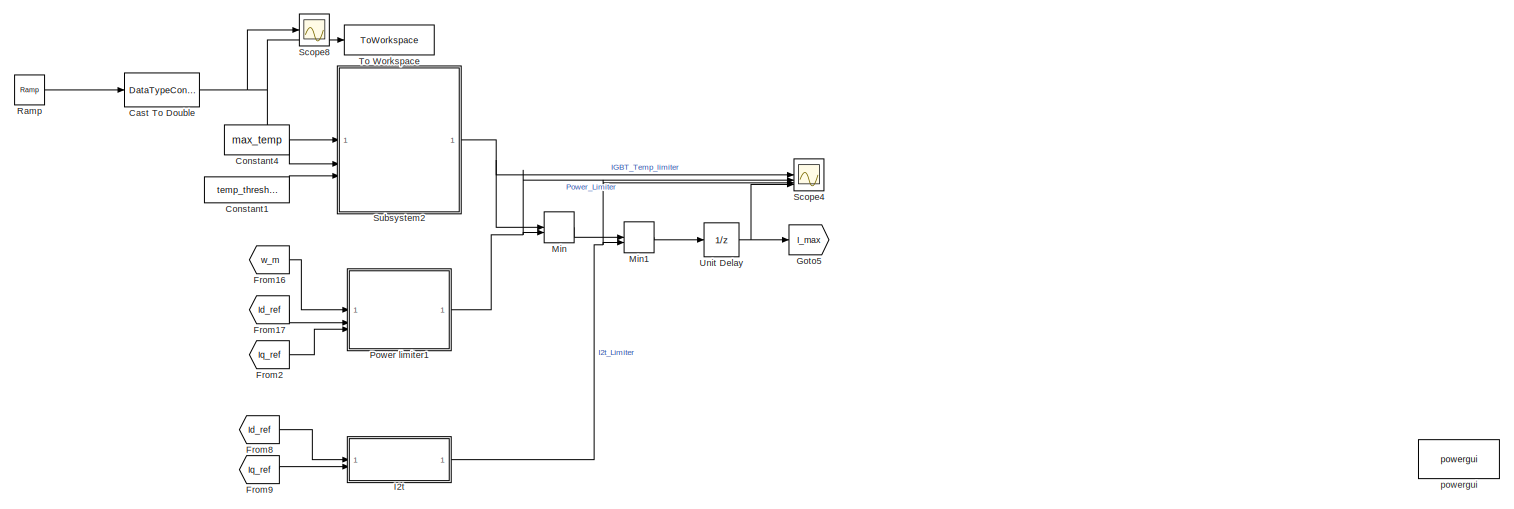
[diagram: root canvas - part 1/6, top center region]
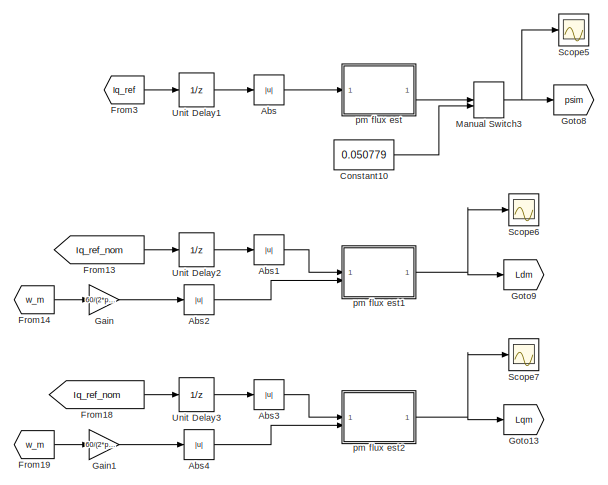
[diagram: root canvas - part 2/6, top left region]
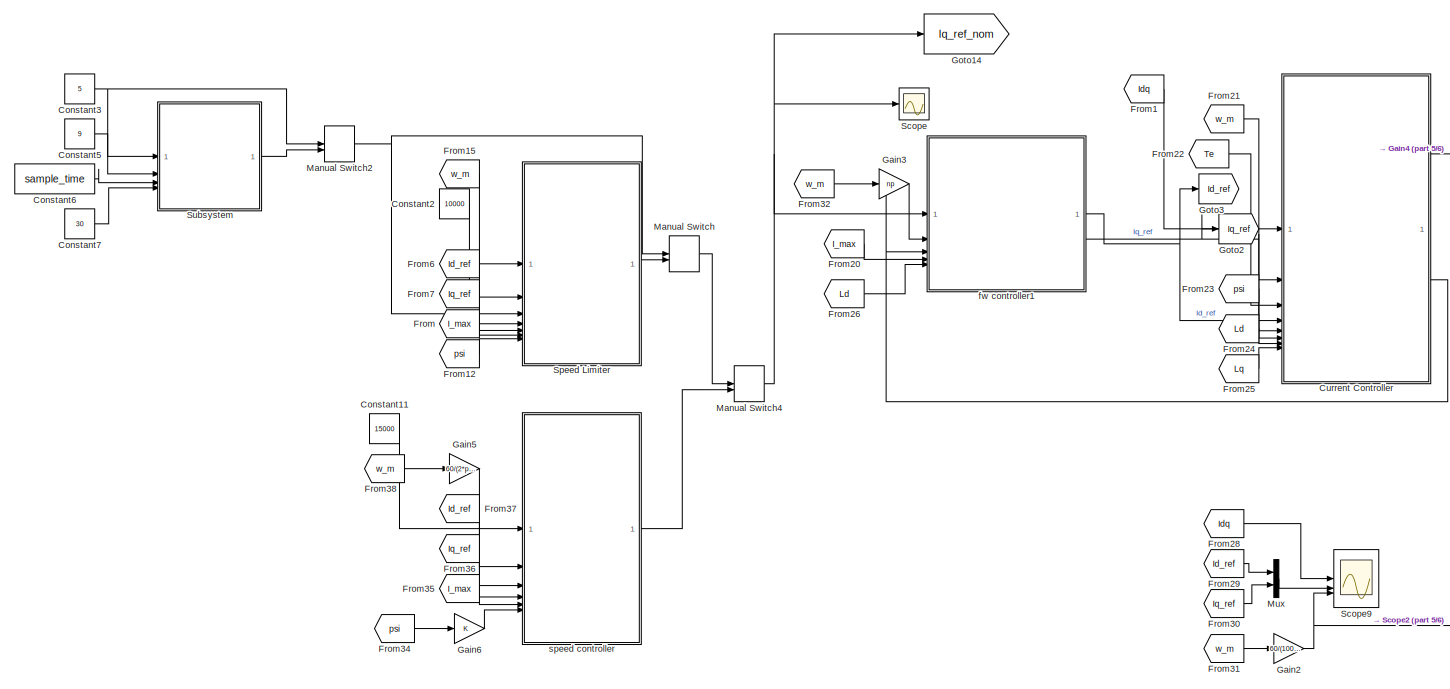
[diagram: root canvas - part 3/6, bottom center region]
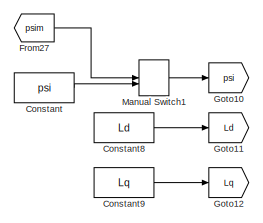
[diagram: root canvas - part 4/6, middle left region]
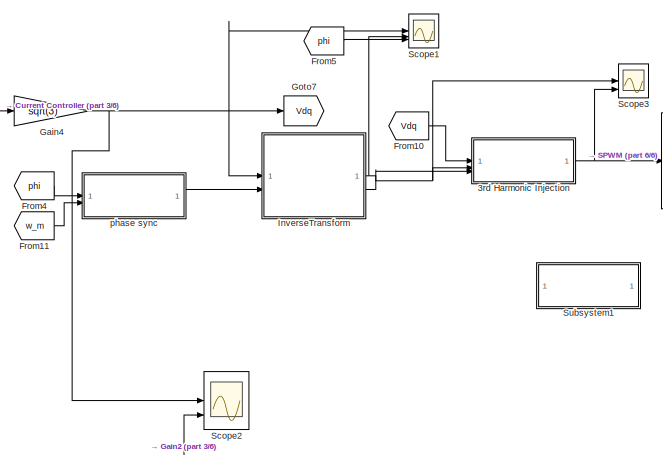
[diagram: root canvas - part 5/6, bottom center region]
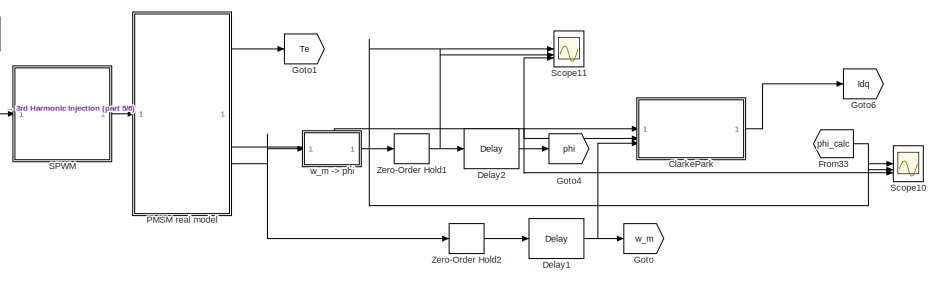
[diagram: root canvas - part 6/6, middle right region]
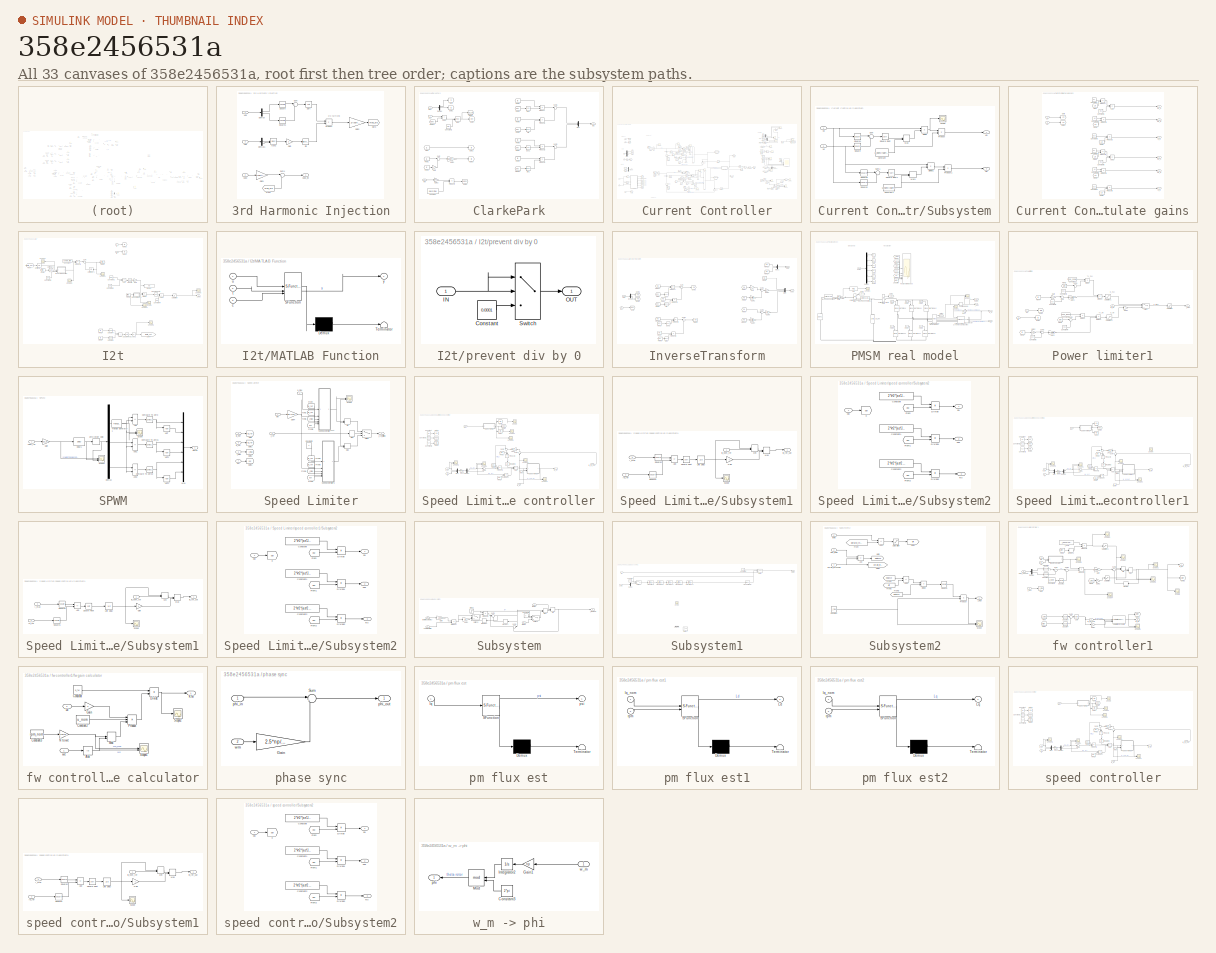
[diagram: thumbnail index - all 33 canvases of the model, root first then tree order]
MODEL slx_358e2456531a
KIND model
CONFIG AbsTol = auto
CONFIG EnableMultiTasking = off
CONFIG FixedStep = 1e-6
CONFIG MaxStep = auto
CONFIG MinStep = auto
CONFIG RelTol = 1e-3
CONFIG SampleTimeConstraint = Unconstrained
CONFIG SolverName = FixedStepAuto
CONFIG StartTime = 0.0
CONFIG StopTime = 0.5
BLOCK [SubSystem] 3rd Harmonic Injection
BLOCK [Trigonometry] 3rd Harmonic Injection/Atan2
  Operator = atan2
BLOCK [Demux] 3rd Harmonic Injection/Demux
  Outputs = 2
BLOCK [Demux] 3rd Harmonic Injection/Demux1
  Outputs = 2
BLOCK [From] 3rd Harmonic Injection/From
  GotoTag = mod_3rd
BLOCK [Gain] 3rd Harmonic Injection/Gain
  Gain = 3
BLOCK [Gain] 3rd Harmonic Injection/Gain1
  Gain = 2/sqrt(3)
BLOCK [Gain] 3rd Harmonic Injection/Gain2
  Gain = 2/(sqrt(3)*6)
BLOCK [Goto] 3rd Harmonic Injection/Goto
  GotoTag = mod_3rd
BLOCK [Product] 3rd Harmonic Injection/Product
BLOCK [Trigonometry] 3rd Harmonic Injection/Sin
BLOCK [Sqrt] 3rd Harmonic Injection/Sqrt
BLOCK [Math] 3rd Harmonic Injection/Square
  Operator = square
BLOCK [Math] 3rd Harmonic Injection/Square1
  Operator = square
BLOCK [Sum] 3rd Harmonic Injection/Sum
  Inputs = |++
BLOCK [Sum] 3rd Harmonic Injection/Sum1
  Inputs = |++
BLOCK [Inport] 3rd Harmonic Injection/Vab
  Port = 3
BLOCK [Inport] 3rd Harmonic Injection/Vabc
  Port = 2
BLOCK [Outport] 3rd Harmonic Injection/Vabc_inj
BLOCK [Inport] 3rd Harmonic Injection/Vdq
BLOCK [Abs] Abs
  Commented = on
  SaturateOnIntegerOverflow = off
BLOCK [Abs] Abs1
  Commented = on
  SaturateOnIntegerOverflow = off
BLOCK [Abs] Abs2
  Commented = on
  SaturateOnIntegerOverflow = off
BLOCK [Abs] Abs3
  Commented = on
  SaturateOnIntegerOverflow = off
BLOCK [Abs] Abs4
  Commented = on
  SaturateOnIntegerOverflow = off
BLOCK [DataTypeConversion] Cast To Double
  OutDataTypeStr = double
  RndMeth = Floor
  SaturateOnIntegerOverflow = off
BLOCK [SubSystem] ClarkePark
BLOCK [Sum] ClarkePark/Add1
  IconShape = rectangular
BLOCK [Constant] ClarkePark/Constant
  Value = 0.5/(2*fsw)
BLOCK [Constant] ClarkePark/Constant1
  Value = 2*pi
BLOCK [Trigonometry] ClarkePark/Cos
  Operator = cos
BLOCK [Trigonometry] ClarkePark/Cos1
  Operator = cos
BLOCK [Demux] ClarkePark/Demux
  Outputs = 3
BLOCK [From] ClarkePark/From
  GotoTag = I1
BLOCK [From] ClarkePark/From1
  GotoTag = I2
BLOCK [From] ClarkePark/From10
  GotoTag = phi
BLOCK [From] ClarkePark/From12
  GotoTag = dphi
BLOCK [From] ClarkePark/From2
  GotoTag = I1
BLOCK [From] ClarkePark/From3
  GotoTag = phi
BLOCK [From] ClarkePark/From4
  GotoTag = Ia
BLOCK [From] ClarkePark/From5
  GotoTag = Ib
BLOCK [From] ClarkePark/From6
  GotoTag = phi
BLOCK [From] ClarkePark/From7
  GotoTag = phi
BLOCK [From] ClarkePark/From8
  GotoTag = Ib
BLOCK [From] ClarkePark/From9
  GotoTag = Ia
BLOCK [Gain] ClarkePark/Gain
  Gain = 2
BLOCK [Gain] ClarkePark/Gain1
  Gain = 1/sqrt(3)
BLOCK [Gain] ClarkePark/Gain2
  Gain = np
BLOCK [Goto] ClarkePark/Goto
  GotoTag = I1
BLOCK [Goto] ClarkePark/Goto1
  GotoTag = I2
BLOCK [Goto] ClarkePark/Goto2
  GotoTag = Ia
BLOCK [Goto] ClarkePark/Goto3
  GotoTag = Ib
BLOCK [Goto] ClarkePark/Goto4
  GotoTag = phi
BLOCK [Goto] ClarkePark/Goto5
  GotoTag = dphi
BLOCK [Goto] ClarkePark/Goto6
  GotoTag = phi_calc
  TagVisibility = global
BLOCK [Inport] ClarkePark/Iabc
BLOCK [Outport] ClarkePark/Idq
BLOCK [Math] ClarkePark/Mod
  Operator = mod
BLOCK [Mux] ClarkePark/Mux
  DisplayOption = bar
  Inputs = 2
BLOCK [Product] ClarkePark/Product
BLOCK [Product] ClarkePark/Product1
BLOCK [Product] ClarkePark/Product2
BLOCK [Product] ClarkePark/Product3
BLOCK [Product] ClarkePark/Product4
BLOCK [Trigonometry] ClarkePark/Sin
BLOCK [Trigonometry] ClarkePark/Sin1
BLOCK [Sum] ClarkePark/Sum
  Inputs = |++
BLOCK [Sum] ClarkePark/Sum1
  Inputs = |++
BLOCK [Sum] ClarkePark/Sum2
  Inputs = |+-
BLOCK [Inport] ClarkePark/phi
  Port = 2
BLOCK [Inport] ClarkePark/wm
  Port = 3
BLOCK [Constant] Constant
  Value = psi
BLOCK [Constant] Constant1
  Value = temp_threshold
BLOCK [Constant] Constant10
  Commented = on
  Value = 0.050779
BLOCK [Constant] Constant11
  Value = 15000
BLOCK [Constant] Constant2
  Value = 10000
BLOCK [Constant] Constant3
  Value = 5
BLOCK [Constant] Constant4
  Value = max_temp
BLOCK [Constant] Constant5
  Value = 9
BLOCK [Constant] Constant6
  Value = sample_time
BLOCK [Constant] Constant7
  Value = 30
BLOCK [Constant] Constant8
  Value = Ld
BLOCK [Constant] Constant9
  Value = Lq
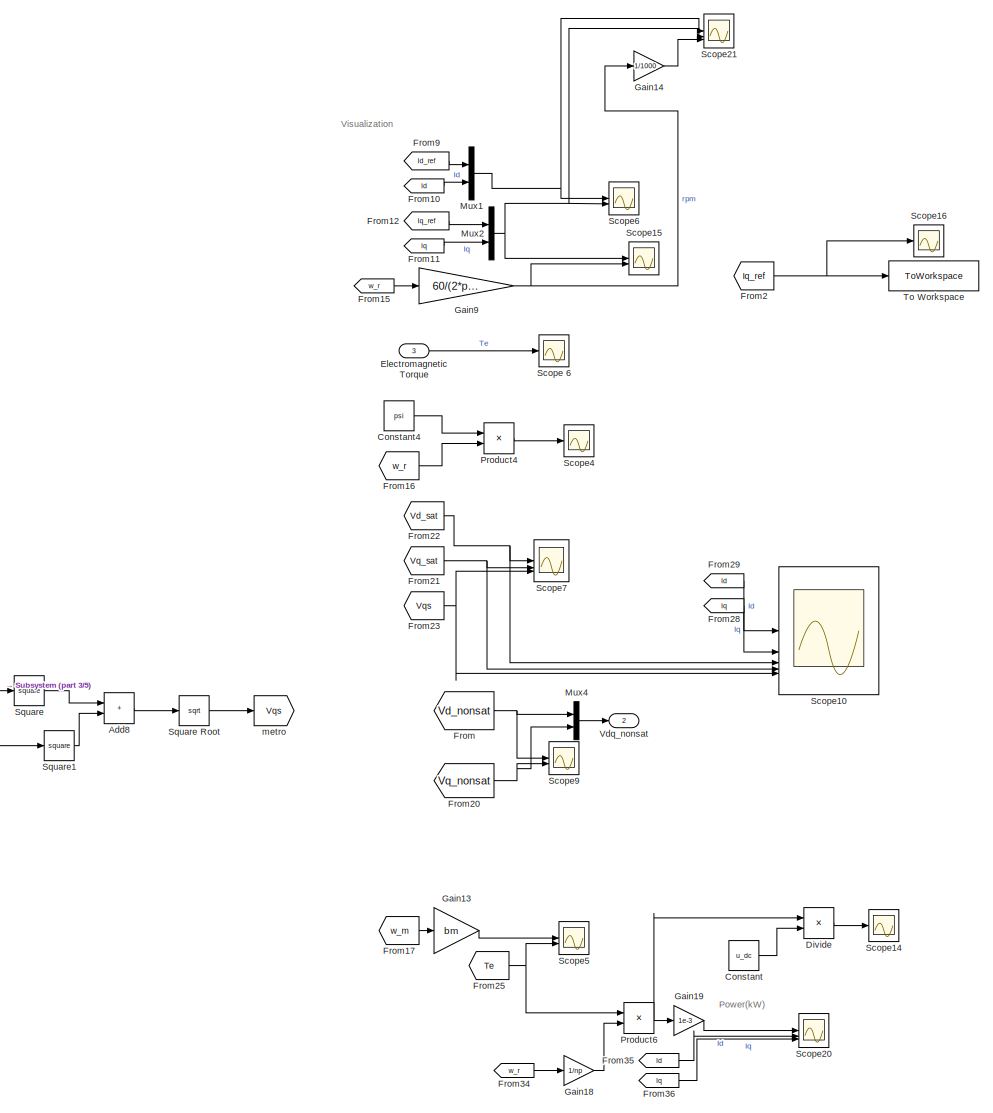
[diagram: Current Controller - part 1/5, right side, full height]
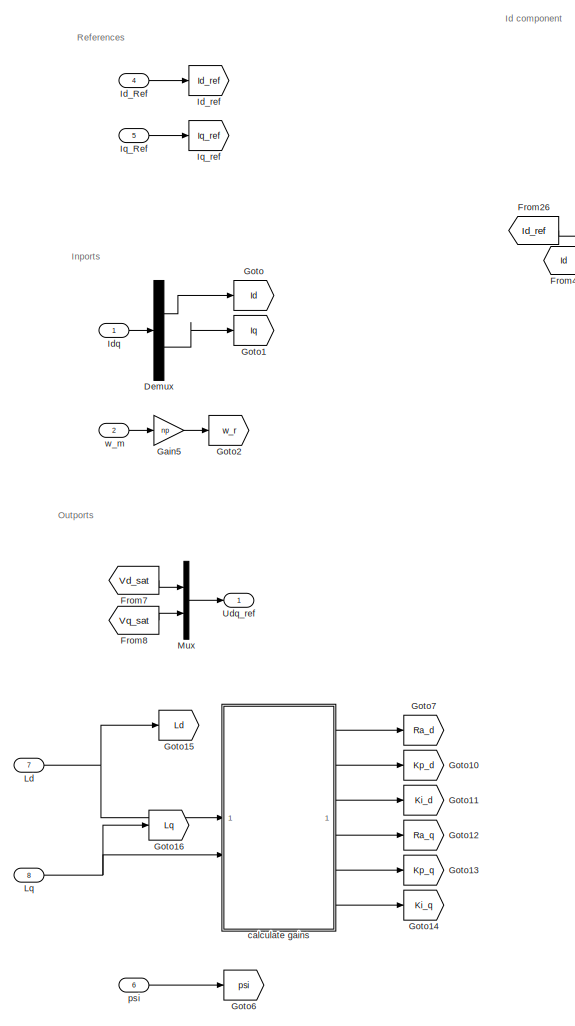
[diagram: Current Controller - part 2/5, left side, full height]
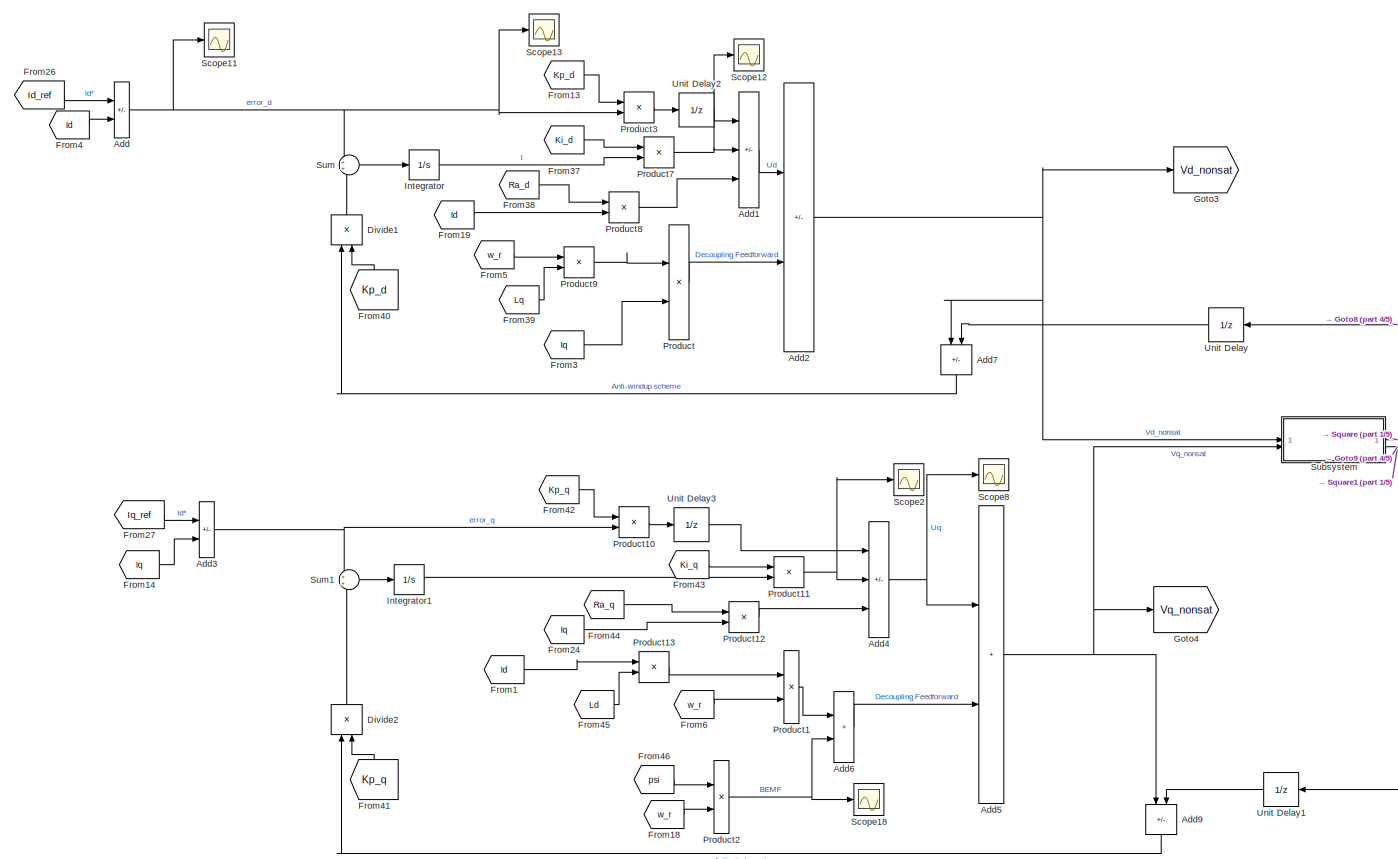
[diagram: Current Controller - part 3/5, central region]
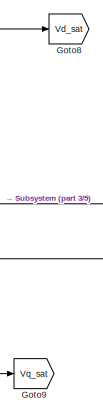
[diagram: Current Controller - part 4/5, central region]
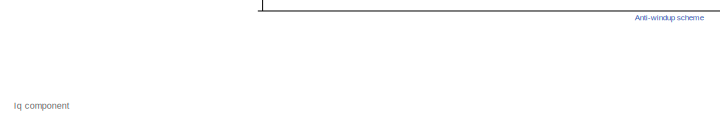
[diagram: Current Controller - part 5/5, bottom left region]
BLOCK [SubSystem] Current Controller
BLOCK [Sum] Current Controller/Add
  IconShape = rectangular
  Inputs = +-
BLOCK [Sum] Current Controller/Add1
  IconShape = rectangular
  Inputs = ++-
BLOCK [Sum] Current Controller/Add2
  IconShape = rectangular
  Inputs = +-
BLOCK [Sum] Current Controller/Add3
  IconShape = rectangular
  Inputs = +-
BLOCK [Sum] Current Controller/Add4
  IconShape = rectangular
  Inputs = ++-
BLOCK [Sum] Current Controller/Add5
  IconShape = rectangular
BLOCK [Sum] Current Controller/Add6
  IconShape = rectangular
BLOCK [Sum] Current Controller/Add7
  IconShape = rectangular
  Inputs = -+
  NameLocation = left
BLOCK [Sum] Current Controller/Add8
  IconShape = rectangular
BLOCK [Sum] Current Controller/Add9
  IconShape = rectangular
  Inputs = -+
  NameLocation = left
BLOCK [Constant] Current Controller/Constant
  Value = u_dc
BLOCK [Constant] Current Controller/Constant4
  Value = psi
BLOCK [Demux] Current Controller/Demux
  Outputs = 2
BLOCK [Product] Current Controller/Divide
  Inputs = */
BLOCK [Product] Current Controller/Divide1
  Inputs = */
  NameLocation = right
BLOCK [Product] Current Controller/Divide2
  Inputs = */
  NameLocation = right
BLOCK [Inport] Current Controller/Electromagnetic Torque
  Port = 3
BLOCK [From] Current Controller/From
  GotoTag = Vd_nonsat
  TagVisibility = global
BLOCK [From] Current Controller/From1
  GotoTag = Id
BLOCK [From] Current Controller/From10
  GotoTag = Id
BLOCK [From] Current Controller/From11
  GotoTag = Iq
BLOCK [From] Current Controller/From12
  GotoTag = Iq_ref
BLOCK [From] Current Controller/From13
  GotoTag = Kp_d
BLOCK [From] Current Controller/From14
  GotoTag = Iq
BLOCK [From] Current Controller/From15
  GotoTag = w_r
BLOCK [From] Current Controller/From16
  GotoTag = w_r
BLOCK [From] Current Controller/From17
  GotoTag = w_m
BLOCK [From] Current Controller/From18
  GotoTag = w_r
BLOCK [From] Current Controller/From19
  GotoTag = Id
BLOCK [From] Current Controller/From2
  GotoTag = Iq_ref
BLOCK [From] Current Controller/From20
  GotoTag = Vq_nonsat
  TagVisibility = global
BLOCK [From] Current Controller/From21
  GotoTag = Vq_sat
BLOCK [From] Current Controller/From22
  GotoTag = Vd_sat
BLOCK [From] Current Controller/From23
  GotoTag = Vqs
BLOCK [From] Current Controller/From24
  GotoTag = Iq
BLOCK [From] Current Controller/From25
  GotoTag = Te
BLOCK [From] Current Controller/From26
  GotoTag = Id_ref
BLOCK [From] Current Controller/From27
  GotoTag = Iq_ref
BLOCK [From] Current Controller/From28
  GotoTag = Iq
BLOCK [From] Current Controller/From29
  GotoTag = Id
BLOCK [From] Current Controller/From3
  GotoTag = Iq
BLOCK [From] Current Controller/From34
  GotoTag = w_r
BLOCK [From] Current Controller/From35
  GotoTag = Id
BLOCK [From] Current Controller/From36
  GotoTag = Iq
BLOCK [From] Current Controller/From37
  GotoTag = Ki_d
BLOCK [From] Current Controller/From38
  GotoTag = Ra_d
BLOCK [From] Current Controller/From39
  GotoTag = Lq
BLOCK [From] Current Controller/From4
  GotoTag = Id
BLOCK [From] Current Controller/From40
  GotoTag = Kp_d
  NameLocation = left
BLOCK [From] Current Controller/From41
  GotoTag = Kp_q
  NameLocation = left
BLOCK [From] Current Controller/From42
  GotoTag = Kp_q
BLOCK [From] Current Controller/From43
  GotoTag = Ki_q
BLOCK [From] Current Controller/From44
  GotoTag = Ra_q
BLOCK [From] Current Controller/From45
  GotoTag = Ld
BLOCK [From] Current Controller/From46
  GotoTag = psi
BLOCK [From] Current Controller/From5
  GotoTag = w_r
BLOCK [From] Current Controller/From6
  GotoTag = w_r
BLOCK [From] Current Controller/From7
  GotoTag = Vd_sat
BLOCK [From] Current Controller/From8
  GotoTag = Vq_sat
BLOCK [From] Current Controller/From9
  GotoTag = Id_ref
BLOCK [Gain] Current Controller/Gain13
  Gain = bm
BLOCK [Gain] Current Controller/Gain14
  Gain = 1/1000
BLOCK [Gain] Current Controller/Gain18
  Gain = 1/np
BLOCK [Gain] Current Controller/Gain19
  Gain = 1e-3
BLOCK [Gain] Current Controller/Gain5
  Gain = np
BLOCK [Gain] Current Controller/Gain9
  Gain = 60/(2*pi*np)
BLOCK [Goto] Current Controller/Goto
  GotoTag = Id
BLOCK [Goto] Current Controller/Goto1
  GotoTag = Iq
BLOCK [Goto] Current Controller/Goto10
  GotoTag = Kp_d
BLOCK [Goto] Current Controller/Goto11
  GotoTag = Ki_d
BLOCK [Goto] Current Controller/Goto12
  GotoTag = Ra_q
BLOCK [Goto] Current Controller/Goto13
  GotoTag = Kp_q
BLOCK [Goto] Current Controller/Goto14
  GotoTag = Ki_q
BLOCK [Goto] Current Controller/Goto15
  GotoTag = Ld
BLOCK [Goto] Current Controller/Goto16
  GotoTag = Lq
BLOCK [Goto] Current Controller/Goto2
  GotoTag = w_r
BLOCK [Goto] Current Controller/Goto3
  GotoTag = Vd_nonsat
  TagVisibility = global
BLOCK [Goto] Current Controller/Goto4
  GotoTag = Vq_nonsat
  TagVisibility = global
BLOCK [Goto] Current Controller/Goto6
  GotoTag = psi
BLOCK [Goto] Current Controller/Goto7
  GotoTag = Ra_d
BLOCK [Goto] Current Controller/Goto8
  GotoTag = Vd_sat
BLOCK [Goto] Current Controller/Goto9
  GotoTag = Vq_sat
BLOCK [Inport] Current Controller/Id_Ref
  Port = 4
BLOCK [Goto] Current Controller/Id_ref
  GotoTag = Id_ref
BLOCK [Inport] Current Controller/Idq
BLOCK [Integrator] Current Controller/Integrator
BLOCK [Integrator] Current Controller/Integrator1
BLOCK [Inport] Current Controller/Iq_Ref
  Port = 5
BLOCK [Goto] Current Controller/Iq_ref
  GotoTag = Iq_ref
BLOCK [Inport] Current Controller/Ld
  Port = 7
BLOCK [Inport] Current Controller/Lq
  Port = 8
BLOCK [Mux] Current Controller/Mux
  DisplayOption = bar
  Inputs = 2
BLOCK [Mux] Current Controller/Mux1
  DisplayOption = bar
  Inputs = 2
BLOCK [Mux] Current Controller/Mux2
  DisplayOption = bar
  Inputs = 2
BLOCK [Mux] Current Controller/Mux4
  DisplayOption = bar
  Inputs = 2
BLOCK [Product] Current Controller/Product
BLOCK [Product] Current Controller/Product1
BLOCK [Product] Current Controller/Product10
BLOCK [Product] Current Controller/Product11
BLOCK [Product] Current Controller/Product12
BLOCK [Product] Current Controller/Product13
BLOCK [Product] Current Controller/Product2
BLOCK [Product] Current Controller/Product3
BLOCK [Product] Current Controller/Product4
BLOCK [Product] Current Controller/Product6
BLOCK [Product] Current Controller/Product7
BLOCK [Product] Current Controller/Product8
BLOCK [Product] Current Controller/Product9
BLOCK [Scope] Current Controller/Scope 6
  Floating = off
  NumInputPorts = 1
  ScopeSpecificationString = Simulink.scopes.TimeScopeBlockCfg('CurrentConfiguration', extmgr.ConfigurationSet(extmgr.Configuration('Core','General UI',true),extmgr.Configuration('Core','Source UI',true),extmgr.Configuration('Sources','WiredSimulink',true,'DataLoggingVariableName','ScopeData6'),extmgr.Configuration('Visuals','Time Domain',true,'SerializedDisplays',{struct('MinYLimReal','-14.57819','MaxYLimReal','131.20375','Y...<+1814ch>
BLOCK [Scope] Current Controller/Scope10
  Floating = off
  NumInputPorts = 5
  ScopeSpecificationString = Simulink.scopes.TimeScopeBlockCfg('CurrentConfiguration', extmgr.ConfigurationSet(extmgr.Configuration('Core','General UI',true),extmgr.Configuration('Core','Source UI',true),extmgr.Configuration('Sources','WiredSimulink',true,'DataLoggingVariableName','ScopeData3'),extmgr.Configuration('Visuals','Time Domain',true,'SerializedDisplays',{struct('MinYLimReal','-2.50223','MaxYLimReal','6.06651','YLab...<+1989ch>
BLOCK [Scope] Current Controller/Scope11
  Floating = off
  NumInputPorts = 1
  ScopeSpecificationString = Simulink.scopes.TimeScopeBlockCfg('CurrentConfiguration', extmgr.ConfigurationSet(extmgr.Configuration('Core','General UI',true),extmgr.Configuration('Core','Source UI',true),extmgr.Configuration('Sources','WiredSimulink',true,'DataLoggingVariableName','ScopeData2'),extmgr.Configuration('Visuals','Time Domain',true,'SerializedDisplays',{struct('MinYLimReal','-0.0000000000005','MaxYLimReal','0.0000...<+1803ch>
BLOCK [Scope] Current Controller/Scope12
  Floating = off
  NumInputPorts = 1
  ScopeSpecificationString = Simulink.scopes.TimeScopeBlockCfg('CurrentConfiguration', extmgr.ConfigurationSet(extmgr.Configuration('Core','General UI',true),extmgr.Configuration('Core','Source UI',true),extmgr.Configuration('Sources','WiredSimulink',true,'DataLoggingVariableName','ScopeData1'),extmgr.Configuration('Visuals','Time Domain',true,'SerializedDisplays',{struct('MinYLimReal','-94.98776','MaxYLimReal','12.89536','YL...<+1456ch>
BLOCK [Scope] Current Controller/Scope13
  Floating = off
  NumInputPorts = 1
  ScopeSpecificationString = Simulink.scopes.TimeScopeBlockCfg('CurrentConfiguration', extmgr.ConfigurationSet(extmgr.Configuration('Core','General UI',true),extmgr.Configuration('Core','Source UI',true),extmgr.Configuration('Sources','WiredSimulink',true,'DataLoggingVariableName','ScopeData4'),extmgr.Configuration('Visuals','Time Domain',true,'SerializedDisplays',{struct('MinYLimReal','-43.48201','MaxYLimReal','4.83133','YLa...<+1441ch>
BLOCK [Scope] Current Controller/Scope14
  Floating = off
  NumInputPorts = 1
  ScopeSpecificationString = Simulink.scopes.TimeScopeBlockCfg('CurrentConfiguration', extmgr.ConfigurationSet(extmgr.Configuration('Core','General UI',true),extmgr.Configuration('Core','Source UI',true),extmgr.Configuration('Sources','WiredSimulink',true,'DataLoggingVariableName','ScopeData2'),extmgr.Configuration('Visuals','Time Domain',true,'SerializedDisplays',{struct('MinYLimReal','-96.83067','MaxYLimReal','145.26869','Y...<+1471ch>
BLOCK [Scope] Current Controller/Scope15
  Floating = off
  NumInputPorts = 2
  ScopeSpecificationString = Simulink.scopes.TimeScopeBlockCfg('CurrentConfiguration', extmgr.ConfigurationSet(extmgr.Configuration('Core','General UI',true),extmgr.Configuration('Core','Source UI',true),extmgr.Configuration('Sources','WiredSimulink',true,'DataLoggingVariableName','ScopeData3'),extmgr.Configuration('Visuals','Time Domain',true,'SerializedDisplays',{struct('MinYLimReal','-207.00564','MaxYLimReal','1863.05075',...<+1923ch>
BLOCK [Scope] Current Controller/Scope16
  Floating = off
  NumInputPorts = 1
  ScopeSpecificationString = Simulink.scopes.TimeScopeBlockCfg('CurrentConfiguration', extmgr.ConfigurationSet(extmgr.Configuration('Core','General UI',true),extmgr.Configuration('Core','Source UI',true),extmgr.Configuration('Sources','WiredSimulink',true,'DataLoggingVariableName','ScopeData10'),extmgr.Configuration('Visuals','Time Domain',true,'SerializedDisplays',{struct('MinYLimReal','-12.5','MaxYLimReal','112.5','YLabelRe...<+1504ch>
BLOCK [Scope] Current Controller/Scope18
  Floating = off
  NumInputPorts = 1
  ScopeSpecificationString = Simulink.scopes.TimeScopeBlockCfg('CurrentConfiguration', extmgr.ConfigurationSet(extmgr.Configuration('Core','General UI',true),extmgr.Configuration('Core','Source UI',true),extmgr.Configuration('Sources','WiredSimulink',true,'DataLoggingVariableName','ScopeData5'),extmgr.Configuration('Visuals','Time Domain',true,'SerializedDisplays',{struct('MinYLimReal','-60.82089','MaxYLimReal','547.38803','Y...<+1437ch>
BLOCK [Scope] Current Controller/Scope2
  Floating = off
  NumInputPorts = 1
  ScopeSpecificationString = Simulink.scopes.TimeScopeBlockCfg('CurrentConfiguration', extmgr.ConfigurationSet(extmgr.Configuration('Core','General UI',true),extmgr.Configuration('Core','Source UI',true),extmgr.Configuration('Sources','WiredSimulink',true,'DataLoggingVariableName','ScopeData1'),extmgr.Configuration('Visuals','Time Domain',true,'SerializedDisplays',{struct('MinYLimReal','-34.5507','MaxYLimReal','310.95632','YL...<+1428ch>
BLOCK [Scope] Current Controller/Scope20
  Floating = off
  NumInputPorts = 3
  ScopeSpecificationString = Simulink.scopes.TimeScopeBlockCfg('CurrentConfiguration', extmgr.ConfigurationSet(extmgr.Configuration('Core','General UI',true),extmgr.Configuration('Core','Source UI',true),extmgr.Configuration('Sources','WiredSimulink',true,'DataLoggingVariableName','ScopeData3'),extmgr.Configuration('Visuals','Time Domain',true,'SerializedDisplays',{struct('MinYLimReal','-175.01281','MaxYLimReal','184.37925','...<+1902ch>
BLOCK [Scope] Current Controller/Scope21
  Floating = off
  NumInputPorts = 3
  ScopeSpecificationString = Simulink.scopes.TimeScopeBlockCfg('CurrentConfiguration', extmgr.ConfigurationSet(extmgr.Configuration('Core','General UI',true),extmgr.Configuration('Core','Source UI',true),extmgr.Configuration('Sources','WiredSimulink',true,'DataLoggingVariableName','ScopeData5'),extmgr.Configuration('Visuals','Time Domain',true,'SerializedDisplays',{struct('MinYLimReal','-107.16348','MaxYLimReal','106.34317','...<+1951ch>
BLOCK [Scope] Current Controller/Scope4
  Floating = off
  NumInputPorts = 1
  ScopeSpecificationString = Simulink.scopes.TimeScopeBlockCfg('CurrentConfiguration', extmgr.ConfigurationSet(extmgr.Configuration('Core','General UI',true),extmgr.Configuration('Core','Source UI',true),extmgr.Configuration('Sources','WiredSimulink',true,'DataLoggingVariableName','ScopeData8'),extmgr.Configuration('Visuals','Time Domain',true,'SerializedDisplays',{struct('MinYLimReal','-4.59536','MaxYLimReal','41.35823','YLa...<+1765ch>
BLOCK [Scope] Current Controller/Scope5
  Floating = off
  NumInputPorts = 2
  ScopeSpecificationString = Simulink.scopes.TimeScopeBlockCfg('CurrentConfiguration', extmgr.ConfigurationSet(extmgr.Configuration('Core','General UI',true),extmgr.Configuration('Core','Source UI',true),extmgr.Configuration('Sources','WiredSimulink',true,'DataLoggingVariableName','ScopeData3'),extmgr.Configuration('Visuals','Time Domain',true,'SerializedDisplays',{struct('MinYLimReal','-2.89763','MaxYLimReal','26.07866','YLa...<+1866ch>
BLOCK [Scope] Current Controller/Scope6
  Floating = off
  NumInputPorts = 2
  ScopeSpecificationString = Simulink.scopes.TimeScopeBlockCfg('CurrentConfiguration', extmgr.ConfigurationSet(extmgr.Configuration('Core','General UI',true),extmgr.Configuration('Core','Source UI',true),extmgr.Configuration('Sources','WiredSimulink',true,'DataLoggingVariableName','ScopeData1'),extmgr.Configuration('Visuals','Time Domain',true,'SerializedDisplays',{struct('MinYLimReal','-51.37803','MaxYLimReal','100.93089','Y...<+1920ch>
BLOCK [Scope] Current Controller/Scope7
  Floating = off
  NumInputPorts = 3
  ScopeSpecificationString = Simulink.scopes.TimeScopeBlockCfg('CurrentConfiguration', extmgr.ConfigurationSet(extmgr.Configuration('Core','General UI',true),extmgr.Configuration('Core','Source UI',true),extmgr.Configuration('Sources','WiredSimulink',true,'DataLoggingVariableName','ScopeData2'),extmgr.Configuration('Visuals','Time Domain',true,'SerializedDisplays',{struct('MinYLimReal','-271.93391','MaxYLimReal','580.21488','...<+1917ch>
BLOCK [Scope] Current Controller/Scope8
  Floating = off
  NumInputPorts = 1
  ScopeSpecificationString = Simulink.scopes.TimeScopeBlockCfg('CurrentConfiguration', extmgr.ConfigurationSet(extmgr.Configuration('Core','General UI',true),extmgr.Configuration('Core','Source UI',true),extmgr.Configuration('Sources','WiredSimulink',true,'DataLoggingVariableName','ScopeData2'),extmgr.Configuration('Visuals','Time Domain',true,'SerializedDisplays',{struct('MinYLimReal','-35.55568','MaxYLimReal','320.00108','Y...<+1400ch>
BLOCK [Scope] Current Controller/Scope9
  Floating = off
  NumInputPorts = 2
  ScopeSpecificationString = Simulink.scopes.TimeScopeBlockCfg('CurrentConfiguration', extmgr.ConfigurationSet(extmgr.Configuration('Core','General UI',true),extmgr.Configuration('Core','Source UI',true),extmgr.Configuration('Sources','WiredSimulink',true,'DataLoggingVariableName','ScopeData4'),extmgr.Configuration('Visuals','Time Domain',true,'SerializedDisplays',{struct('MinYLimReal','-206.60555','MaxYLimReal','500.20932','...<+1836ch>
BLOCK [Math] Current Controller/Square
  Operator = square
BLOCK [Sqrt] Current Controller/Square Root
BLOCK [Math] Current Controller/Square1
  Operator = square
BLOCK [SubSystem] Current Controller/Subsystem
BLOCK [Constant] Current Controller/Subsystem/Constant
  Value = u_nom/(sqrt(3))
BLOCK [Constant] Current Controller/Subsystem/Constant1
  Value = u_nom/(sqrt(3))
BLOCK [Product] Current Controller/Subsystem/Divide
  Inputs = */
BLOCK [Product] Current Controller/Subsystem/Divide1
  Inputs = */
BLOCK [MinMax] Current Controller/Subsystem/Max
  Function = max
  Inputs = 2
BLOCK [MinMax] Current Controller/Subsystem/Max1
  Function = max
  Inputs = 2
BLOCK [Product] Current Controller/Subsystem/Product
BLOCK [Product] Current Controller/Subsystem/Product1
BLOCK [Scope] Current Controller/Subsystem/Scope
  Floating = off
  NumInputPorts = 1
  ScopeSpecificationString = Simulink.scopes.TimeScopeBlockCfg('CurrentConfiguration', extmgr.ConfigurationSet(extmgr.Configuration('Core','General UI',true),extmgr.Configuration('Core','Source UI',true),extmgr.Configuration('Sources','WiredSimulink',true,'DataLoggingVariableName','ScopeData3'),extmgr.Configuration('Visuals','Time Domain',true,'SerializedDisplays',{struct('MinYLimReal','-0.03324','MaxYLimReal','0.74071','YLab...<+1407ch>
BLOCK [Math] Current Controller/Subsystem/Square
  Operator = square
BLOCK [Sqrt] Current Controller/Subsystem/Square Root
BLOCK [Sqrt] Current Controller/Subsystem/Square Root1
BLOCK [Math] Current Controller/Subsystem/Square1
  Operator = square
BLOCK [Math] Current Controller/Subsystem/Square2
  Operator = square
BLOCK [Math] Current Controller/Subsystem/Square3
  Operator = square
BLOCK [Sum] Current Controller/Subsystem/Sum
  Inputs = |++
BLOCK [Sum] Current Controller/Subsystem/Sum1
  Inputs = |++
BLOCK [Inport] Current Controller/Subsystem/Vd
BLOCK [Outport] Current Controller/Subsystem/Vd\
BLOCK [Inport] Current Controller/Subsystem/Vq
  Port = 2
BLOCK [Outport] Current Controller/Subsystem/Vq\
  Port = 2
BLOCK [Sum] Current Controller/Sum
BLOCK [Sum] Current Controller/Sum1
BLOCK [ToWorkspace] Current Controller/To Workspace
  FixptAsFi = on
  MaxDataPoints = inf
  SampleTime = -1
  VariableName = Stator_current
BLOCK [Outport] Current Controller/Udq_ref 
  VectorParamsAs1DForOutWhenUnconnected = off
BLOCK [UnitDelay] Current Controller/Unit Delay
  HasFrameUpgradeWarning = on
  SampleTime = -1
BLOCK [UnitDelay] Current Controller/Unit Delay1
  HasFrameUpgradeWarning = on
  SampleTime = -1
BLOCK [UnitDelay] Current Controller/Unit Delay2
  HasFrameUpgradeWarning = on
  SampleTime = -1
BLOCK [UnitDelay] Current Controller/Unit Delay3
  HasFrameUpgradeWarning = on
  SampleTime = -1
BLOCK [Outport] Current Controller/Vdq_nonsat
  Port = 2
BLOCK [SubSystem] Current Controller/calculate gains
BLOCK [Sum] Current Controller/calculate gains/Add
  IconShape = rectangular
  Inputs = +-
BLOCK [Sum] Current Controller/calculate gains/Add1
  IconShape = rectangular
  Inputs = +-
BLOCK [Constant] Current Controller/calculate gains/Constant
  Value = ac
BLOCK [Constant] Current Controller/calculate gains/Constant1
  Value = Rs
BLOCK [Constant] Current Controller/calculate gains/Constant2
  Value = ac
BLOCK [Constant] Current Controller/calculate gains/Constant3
  Value = ac^2
BLOCK [Constant] Current Controller/calculate gains/Constant4
  Value = ac
BLOCK [Constant] Current Controller/calculate gains/Constant5
  Value = Rs
BLOCK [Constant] Current Controller/calculate gains/Constant6
  Value = ac
BLOCK [Constant] Current Controller/calculate gains/Constant7
  Value = ac^2
BLOCK [From] Current Controller/calculate gains/From
  GotoTag = Ld
BLOCK [From] Current Controller/calculate gains/From1
  GotoTag = Ld
BLOCK [From] Current Controller/calculate gains/From2
  GotoTag = Ld
BLOCK [From] Current Controller/calculate gains/From3
  GotoTag = Lq
BLOCK [From] Current Controller/calculate gains/From4
  GotoTag = Lq
BLOCK [From] Current Controller/calculate gains/From5
  GotoTag = Lq
BLOCK [Goto] Current Controller/calculate gains/Goto
  GotoTag = Ld
BLOCK [Goto] Current Controller/calculate gains/Goto1
  GotoTag = Lq
BLOCK [Outport] Current Controller/calculate gains/Ki_d
  Port = 3
BLOCK [Outport] Current Controller/calculate gains/Ki_q
  Port = 6
BLOCK [Outport] Current Controller/calculate gains/Kp_d
  Port = 2
BLOCK [Outport] Current Controller/calculate gains/Kp_q
  Port = 5
BLOCK [Inport] Current Controller/calculate gains/Ld
BLOCK [Inport] Current Controller/calculate gains/Lq
  Port = 2
BLOCK [Product] Current Controller/calculate gains/Product
BLOCK [Product] Current Controller/calculate gains/Product1
BLOCK [Product] Current Controller/calculate gains/Product2
BLOCK [Product] Current Controller/calculate gains/Product3
BLOCK [Product] Current Controller/calculate gains/Product4
BLOCK [Product] Current Controller/calculate gains/Product5
BLOCK [Outport] Current Controller/calculate gains/Ra_d
BLOCK [Outport] Current Controller/calculate gains/Ra_q
  Port = 4
BLOCK [Goto] Current Controller/metro
  GotoTag = Vqs
BLOCK [Inport] Current Controller/psi
  Port = 6
BLOCK [Inport] Current Controller/w_m
  Port = 2
BLOCK [Delay] Delay1
  DelayLength = 1
  InitialCondition = 0
  InputPortMap = u0
  UseCircularBuffer = on
  UserDataPersistent = on
BLOCK [Delay] Delay2
  DelayLength = 1
  InitialCondition = 0
  InputPortMap = u0
  UseCircularBuffer = on
  UserDataPersistent = on
BLOCK [From] From
  GotoTag = I_max
BLOCK [From] From1
  GotoTag = Idq
BLOCK [From] From10
  GotoTag = Vdq
BLOCK [From] From11
  GotoTag = w_m
BLOCK [From] From12
  GotoTag = psi
BLOCK [From] From13
  Commented = on
  GotoTag = Iq_ref_nom
BLOCK [From] From14
  Commented = on
  GotoTag = w_m
BLOCK [From] From15
  GotoTag = w_m
BLOCK [From] From16
  GotoTag = w_m
BLOCK [From] From17
  GotoTag = Id_ref
BLOCK [From] From18
  Commented = on
  GotoTag = Iq_ref_nom
BLOCK [From] From19
  Commented = on
  GotoTag = w_m
BLOCK [From] From2
  GotoTag = Iq_ref
BLOCK [From] From20
  GotoTag = I_max
BLOCK [From] From21
  GotoTag = w_m
BLOCK [From] From22
  GotoTag = Te
BLOCK [From] From23
  GotoTag = psi
BLOCK [From] From24
  GotoTag = Ld
BLOCK [From] From25
  GotoTag = Lq
BLOCK [From] From26
  GotoTag = Ld
BLOCK [From] From27
  Commented = on
  GotoTag = psim
BLOCK [From] From28
  GotoTag = Idq
BLOCK [From] From29
  GotoTag = Id_ref
BLOCK [From] From3
  Commented = on
  GotoTag = Iq_ref
BLOCK [From] From30
  GotoTag = Iq_ref
BLOCK [From] From31
  GotoTag = w_m
BLOCK [From] From32
  GotoTag = w_m
BLOCK [From] From33
  GotoTag = phi_calc
  TagVisibility = global
BLOCK [From] From34
  GotoTag = psi
BLOCK [From] From35
  GotoTag = I_max
BLOCK [From] From36
  GotoTag = Iq_ref
BLOCK [From] From37
  GotoTag = Id_ref
BLOCK [From] From38
  GotoTag = w_m
BLOCK [From] From4
  GotoTag = phi
BLOCK [From] From5
  GotoTag = phi
BLOCK [From] From6
  GotoTag = Id_ref
BLOCK [From] From7
  GotoTag = Iq_ref
BLOCK [From] From8
  GotoTag = Id_ref
BLOCK [From] From9
  GotoTag = Iq_ref
BLOCK [Gain] Gain
  Commented = on
  Gain = 60/(2*pi)
BLOCK [Gain] Gain1
  Commented = on
  Gain = 60/(2*pi)
BLOCK [Gain] Gain2
  Gain = 60/(1000*2*pi)
BLOCK [Gain] Gain3
  Gain = np
BLOCK [Gain] Gain4
  Gain = sqrt(3)
BLOCK [Gain] Gain5
  Gain = 60/(2*pi)
BLOCK [Gain] Gain6
BLOCK [Goto] Goto
  GotoTag = w_m
BLOCK [Goto] Goto1
  GotoTag = Te
BLOCK [Goto] Goto10
  GotoTag = psi
BLOCK [Goto] Goto11
  GotoTag = Ld
BLOCK [Goto] Goto12
  GotoTag = Lq
BLOCK [Goto] Goto13
  Commented = on
  GotoTag = Lqm
BLOCK [Goto] Goto14
  GotoTag = Iq_ref_nom
BLOCK [Goto] Goto2
  GotoTag = Iq_ref
BLOCK [Goto] Goto3
  GotoTag = Id_ref
BLOCK [Goto] Goto4
  GotoTag = phi
BLOCK [Goto] Goto5
  GotoTag = I_max
BLOCK [Goto] Goto6
  GotoTag = Idq
BLOCK [Goto] Goto7
  GotoTag = Vdq
BLOCK [Goto] Goto8
  Commented = on
  GotoTag = psim
BLOCK [Goto] Goto9
  Commented = on
  GotoTag = Ldm
BLOCK [SubSystem] I2t
BLOCK [Abs] I2t/Abs1
  SaturateOnIntegerOverflow = off
BLOCK [Sum] I2t/Add
  IconShape = rectangular
  Inputs = +-
BLOCK [Sum] I2t/Add1
  IconShape = rectangular
BLOCK [Sum] I2t/Add2
  IconShape = rectangular
BLOCK [Constant] I2t/Constant
  Value = sample_time
BLOCK [Constant] I2t/Constant1
  Value = Ipeak
BLOCK [Constant] I2t/Constant2
  Value = Icon
BLOCK [Constant] I2t/Constant3
  Value = Icon
BLOCK [Constant] I2t/Constant4
  Value = Icon
BLOCK [Display] I2t/Display
  Decimation = 1
BLOCK [Product] I2t/Divide
  Inputs = */
BLOCK [From] I2t/From2
  GotoTag = Id
BLOCK [From] I2t/From3
  GotoTag = Iq
BLOCK [From] I2t/From4
  GotoTag = Imetro_out
BLOCK [From] I2t/From5
  GotoTag = time
BLOCK [From] I2t/From6
  GotoTag = time
BLOCK [Gain] I2t/Gain
  Gain = Imax_interval
BLOCK [Goto] I2t/Goto2
  GotoTag = Id
BLOCK [Goto] I2t/Goto3
  GotoTag = Iq
BLOCK [Goto] I2t/Goto4
  GotoTag = Imetro_out
BLOCK [Goto] I2t/Goto5
  GotoTag = time
BLOCK [Outport] I2t/I_max
BLOCK [Inport] I2t/Id
BLOCK [Inport] I2t/Iq
  Port = 2
BLOCK [SubSystem] I2t/MATLAB Function
  ErrorFcn = Stateflow.Translate.translate
  LibrarySourceBlock = simulink/User-Defined\nFunctions/MATLAB Function
  PermitHierarchicalResolution = ExplicitOnly
  SFBlockType = MATLAB Function
  TreatAsAtomicUnit = on
BLOCK [Demux] I2t/MATLAB Function/ Demux 
  Outputs = 1
BLOCK [S-Function] I2t/MATLAB Function/ SFunction 
  EnableBusSupport = on
  FunctionName = sf_sfun
  PortCounts = [3 2]
  SFcnIsStateOwnerBlock = off
  SFunctionDeploymentMode = off
  Tag = Stateflow S-Function 2
BLOCK [Terminator] I2t/MATLAB Function/ Terminator 
BLOCK [Inport] I2t/MATLAB Function/c
  Port = 3
BLOCK [Inport] I2t/MATLAB Function/t
  Port = 2
BLOCK [Inport] I2t/MATLAB Function/u
BLOCK [Outport] I2t/MATLAB Function/y
BLOCK [Product] I2t/Product1
BLOCK [Saturate] I2t/Saturation
  LowerLimit = 0
  UpperLimit = I_max
BLOCK [Scope] I2t/Scope
  Floating = off
  NumInputPorts = 1
  ScopeSpecificationString = Simulink.scopes.TimeScopeBlockCfg('CurrentConfiguration', extmgr.ConfigurationSet(extmgr.Configuration('Core','General UI',true),extmgr.Configuration('Core','Source UI',true),extmgr.Configuration('Sources','WiredSimulink',true,'DataLoggingVariableName','ScopeData11'),extmgr.Configuration('Visuals','Time Domain',true,'SerializedDisplays',{struct('MinYLimReal','-249.14251','MaxYLimReal','2243.28261'...<+1449ch>
BLOCK [Scope] I2t/Scope1
  Floating = off
  NumInputPorts = 1
  ScopeSpecificationString = Simulink.scopes.TimeScopeBlockCfg('CurrentConfiguration', extmgr.ConfigurationSet(extmgr.Configuration('Core','General UI',true),extmgr.Configuration('Core','Source UI',true),extmgr.Configuration('Sources','WiredSimulink',true,'DataLoggingVariableName','ScopeData4'),extmgr.Configuration('Visuals','Time Domain',true,'SerializedDisplays',{struct('MinYLimReal','-1.24986','MaxYLimReal','11.24876','YLa...<+1420ch>
BLOCK [Scope] I2t/Scope2
  Floating = off
  NumInputPorts = 1
  ScopeSpecificationString = Simulink.scopes.TimeScopeBlockCfg('CurrentConfiguration', extmgr.ConfigurationSet(extmgr.Configuration('Core','General UI',true),extmgr.Configuration('Core','Source UI',true),extmgr.Configuration('Sources','WiredSimulink',true,'DataLoggingVariableName','ScopeData5'),extmgr.Configuration('Visuals','Time Domain',true,'SerializedDisplays',{struct('MinYLimReal','32.1','MaxYLimReal','113.1','YLabelReal...<+1421ch>
BLOCK [Scope] I2t/Scope3
  Floating = off
  NumInputPorts = 1
  ScopeSpecificationString = Simulink.scopes.TimeScopeBlockCfg('CurrentConfiguration', extmgr.ConfigurationSet(extmgr.Configuration('Core','General UI',true),extmgr.Configuration('Core','Source UI',true),extmgr.Configuration('Sources','WiredSimulink',true,'DataLoggingVariableName','ScopeData6'),extmgr.Configuration('Visuals','Time Domain',true,'SerializedDisplays',{struct('MinYLimReal','-1.25','MaxYLimReal','1.25','YLabelReal...<+1440ch>
BLOCK [Scope] I2t/Scope4
  Floating = off
  NumInputPorts = 1
  ScopeSpecificationString = Simulink.scopes.TimeScopeBlockCfg('CurrentConfiguration', extmgr.ConfigurationSet(extmgr.Configuration('Core','General UI',true),extmgr.Configuration('Core','Source UI',true),extmgr.Configuration('Sources','WiredSimulink',true,'DataLoggingVariableName','ScopeData12'),extmgr.Configuration('Visuals','Time Domain',true,'SerializedDisplays',{struct('MinYLimReal','-249.2549','MaxYLimReal','2243.2951','...<+1430ch>
BLOCK [Scope] I2t/Scope5
  Floating = off
  NumInputPorts = 1
  ScopeSpecificationString = Simulink.scopes.TimeScopeBlockCfg('CurrentConfiguration', extmgr.ConfigurationSet(extmgr.Configuration('Core','General UI',true),extmgr.Configuration('Core','Source UI',true),extmgr.Configuration('Sources','WiredSimulink',true,'DataLoggingVariableName','ScopeData13'),extmgr.Configuration('Visuals','Time Domain',true,'SerializedDisplays',{struct('MinYLimReal','-10.7125','MaxYLimReal','96.4125','YLa...<+1419ch>
BLOCK [Scope] I2t/Scope6
  Floating = off
  NumInputPorts = 1
  ScopeSpecificationString = Simulink.scopes.TimeScopeBlockCfg('CurrentConfiguration', extmgr.ConfigurationSet(extmgr.Configuration('Core','General UI',true),extmgr.Configuration('Core','Source UI',true),extmgr.Configuration('Sources','WiredSimulink',true,'DataLoggingVariableName','ScopeData15'),extmgr.Configuration('Visuals','Time Domain',true,'SerializedDisplays',{struct('MinYLimReal','62.63259','MaxYLimReal','88.26305','YL...<+1757ch>
BLOCK [Math] I2t/Square
  Operator = square
BLOCK [Sqrt] I2t/Square Root1
BLOCK [Sqrt] I2t/Square Root2
BLOCK [Math] I2t/Square4
  Operator = square
BLOCK [Math] I2t/Square5
  Operator = square
BLOCK [Sum] I2t/Sum
  Inputs = |++
BLOCK [UnitDelay] I2t/Unit Delay
  HasFrameUpgradeWarning = on
  SampleTime = -1
BLOCK [UnitDelay] I2t/Unit Delay1
  HasFrameUpgradeWarning = on
  SampleTime = -1
BLOCK [UnitDelay] I2t/Unit Delay2
  HasFrameUpgradeWarning = on
  SampleTime = -1
BLOCK [SubSystem] I2t/prevent div by 0
BLOCK [Constant] I2t/prevent div by 0/Constant
  Value = 0.0001
BLOCK [Inport] I2t/prevent div by 0/IN
BLOCK [Outport] I2t/prevent div by 0/OUT
  VectorParamsAs1DForOutWhenUnconnected = off
BLOCK [Switch] I2t/prevent div by 0/Switch
  Criteria = u2 > Threshold
  InputSameDT = off
  OutDataTypeStr = Inherit: Same as first input
  SaturateOnIntegerOverflow = off
  Threshold = 0.1
BLOCK [SubSystem] InverseTransform
BLOCK [Trigonometry] InverseTransform/Cos
  Operator = cos
BLOCK [Trigonometry] InverseTransform/Cos1
  Operator = cos
BLOCK [Demux] InverseTransform/Demux
  Outputs = 2
BLOCK [From] InverseTransform/From
  GotoTag = phi
BLOCK [From] InverseTransform/From1
  GotoTag = phi
BLOCK [From] InverseTransform/From10
  GotoTag = Vb
BLOCK [From] InverseTransform/From11
  GotoTag = Vd
BLOCK [From] InverseTransform/From12
  GotoTag = Vq
BLOCK [From] InverseTransform/From13
  GotoTag = Va
BLOCK [From] InverseTransform/From14
  GotoTag = Vb
BLOCK [From] InverseTransform/From2
  GotoTag = Vq
BLOCK [From] InverseTransform/From3
  GotoTag = phi
BLOCK [From] InverseTransform/From4
  GotoTag = Vd
BLOCK [From] InverseTransform/From5
  GotoTag = phi
BLOCK [From] InverseTransform/From6
  GotoTag = Va
BLOCK [From] InverseTransform/From7
  GotoTag = Va
BLOCK [From] InverseTransform/From8
  GotoTag = Vb
BLOCK [From] InverseTransform/From9
  GotoTag = Va
BLOCK [Gain] InverseTransform/Gain
  Gain = -1
BLOCK [Gain] InverseTransform/Gain1
  Gain = sqrt(3)
BLOCK [Gain] InverseTransform/Gain2
  Gain = 1/2
BLOCK [Gain] InverseTransform/Gain4
  Gain = sqrt(3)
BLOCK [Gain] InverseTransform/Gain5
  Gain = -1/2
BLOCK [Goto] InverseTransform/Goto
  GotoTag = phi
BLOCK [Goto] InverseTransform/Goto2
  GotoTag = Vq
BLOCK [Goto] InverseTransform/Goto3
  GotoTag = Va
BLOCK [Goto] InverseTransform/Goto4
  GotoTag = Vb
BLOCK [Goto] InverseTransform/Goto5
  GotoTag = Vd
BLOCK [Mux] InverseTransform/Mux
  DisplayOption = bar
  Inputs = 3
BLOCK [Mux] InverseTransform/Mux1
  DisplayOption = bar
  Inputs = 2
BLOCK [Product] InverseTransform/Product
BLOCK [Product] InverseTransform/Product1
BLOCK [Product] InverseTransform/Product2
BLOCK [Product] InverseTransform/Product3
BLOCK [Trigonometry] InverseTransform/Sin
BLOCK [Trigonometry] InverseTransform/Sin1
BLOCK [Sum] InverseTransform/Sum
  Inputs = |+-
BLOCK [Sum] InverseTransform/Sum1
  Inputs = |++
BLOCK [Sum] InverseTransform/Sum2
  Inputs = |++
BLOCK [Sum] InverseTransform/Sum3
  Inputs = |++
BLOCK [Outport] InverseTransform/Vab
  Port = 2
BLOCK [Outport] InverseTransform/Vabc
BLOCK [Inport] InverseTransform/Vdq
BLOCK [Inport] InverseTransform/phi
  Port = 2
BLOCK [ManualSwitch] Manual Switch
  CurrentSetting = 0
BLOCK [ManualSwitch] Manual Switch1
  CurrentSetting = 0
BLOCK [ManualSwitch] Manual Switch2
BLOCK [ManualSwitch] Manual Switch3
  Commented = on
BLOCK [ManualSwitch] Manual Switch4
  CurrentSetting = 0
BLOCK [MinMax] Min
  Inputs = 2
BLOCK [MinMax] Min1
  Inputs = 2
BLOCK [Mux] Mux
  DisplayOption = bar
  Inputs = 2
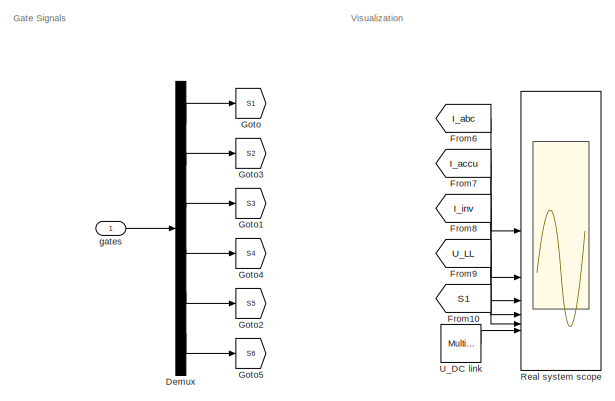
[diagram: PMSM real model - part 1/3, top center region]
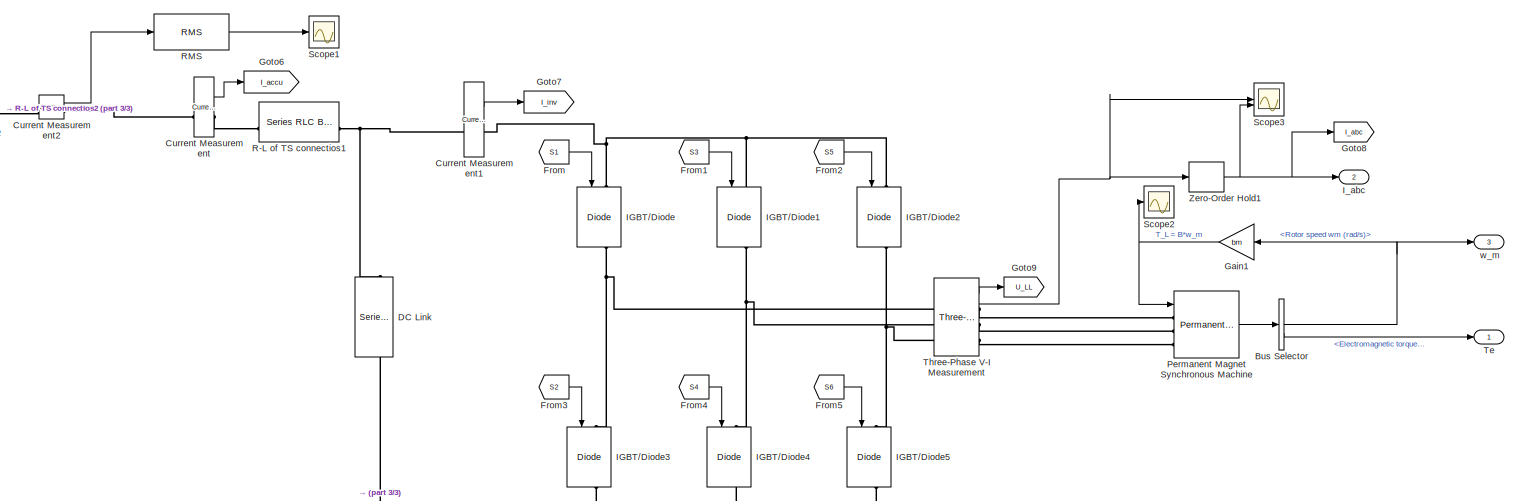
[diagram: PMSM real model - part 2/3, full width, bottom band]
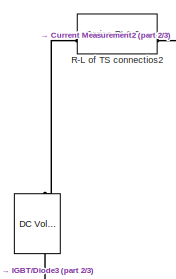
[diagram: PMSM real model - part 3/3, middle left region]
BLOCK [SubSystem] PMSM real model
BLOCK [Reference] PMSM real model/   REF=spsDCVoltageSourceLib/DC Voltage Source
  AttributesFormatString = \n
  Description = source block
  NameLocation = left
  SourceBlock = spsDCVoltageSourceLib/DC Voltage Source
  SourceType = DC Voltage Source
BLOCK [BusSelector] PMSM real model/Bus Selector
  OutputSignals = Rotor speed wm (rad/s),Electromagnetic torque Te (N*m)
BLOCK [Reference] PMSM real model/Current Measurement  REF=spsCurrentMeasurementLib/Current Measurement
  SourceBlock = spsCurrentMeasurementLib/Current Measurement
  SourceType = Current Measurement
  UserDataPersistent = on
BLOCK [Reference] PMSM real model/Current Measurement1  REF=spsCurrentMeasurementLib/Current Measurement
  SourceBlock = spsCurrentMeasurementLib/Current Measurement
  SourceType = Current Measurement
  UserDataPersistent = on
BLOCK [Reference] PMSM real model/Current Measurement2  REF=spsCurrentMeasurementLib/Current Measurement
  LibrarySourceBlock = sps_lib/Sensors and Measurements/Current Measurement
  SourceBlock = spsCurrentMeasurementLib/Current Measurement
  SourceType = Current Measurement
  UserDataPersistent = on
BLOCK [Reference] PMSM real model/DC Link  REF=spsSeriesRLCBranchLib/Series RLC Branch
  NameLocation = left
  SourceBlock = spsSeriesRLCBranchLib/Series RLC Branch
  SourceType = Series RLC Branch
BLOCK [Demux] PMSM real model/Demux
  Outputs = 6
BLOCK [From] PMSM real model/From
  GotoTag = S1
BLOCK [From] PMSM real model/From1
  GotoTag = S3
BLOCK [From] PMSM real model/From10
  GotoTag = S1
BLOCK [From] PMSM real model/From2
  GotoTag = S5
BLOCK [From] PMSM real model/From3
  GotoTag = S2
BLOCK [From] PMSM real model/From4
  GotoTag = S4
BLOCK [From] PMSM real model/From5
  GotoTag = S6
BLOCK [From] PMSM real model/From6
  GotoTag = I_abc
BLOCK [From] PMSM real model/From7
  GotoTag = I_accu
BLOCK [From] PMSM real model/From8
  GotoTag = I_inv
BLOCK [From] PMSM real model/From9
  GotoTag = U_LL
BLOCK [Gain] PMSM real model/Gain1
  Gain = bm
  NameLocation = top
BLOCK [Goto] PMSM real model/Goto
  GotoTag = S1
BLOCK [Goto] PMSM real model/Goto1
  GotoTag = S3
BLOCK [Goto] PMSM real model/Goto2
  GotoTag = S5
BLOCK [Goto] PMSM real model/Goto3
  GotoTag = S2
BLOCK [Goto] PMSM real model/Goto4
  GotoTag = S4
BLOCK [Goto] PMSM real model/Goto5
  GotoTag = S6
BLOCK [Goto] PMSM real model/Goto6
  GotoTag = I_accu
BLOCK [Goto] PMSM real model/Goto7
  GotoTag = I_inv
BLOCK [Goto] PMSM real model/Goto8
  GotoTag = I_abc
BLOCK [Goto] PMSM real model/Goto9
  GotoTag = U_LL
BLOCK [Reference] PMSM real model/IGBT//Diode  REF=spsIGBTDiodeLib/IGBT//Diode
  NameLocation = right
  SourceBlock = spsIGBTDiodeLib/IGBT//Diode
  SourceType = IGBT/Diode
BLOCK [Reference] PMSM real model/IGBT//Diode1  REF=spsIGBTDiodeLib/IGBT//Diode
  NameLocation = right
  SourceBlock = spsIGBTDiodeLib/IGBT//Diode
  SourceType = IGBT/Diode
BLOCK [Reference] PMSM real model/IGBT//Diode2  REF=spsIGBTDiodeLib/IGBT//Diode
  NameLocation = right
  SourceBlock = spsIGBTDiodeLib/IGBT//Diode
  SourceType = IGBT/Diode
BLOCK [Reference] PMSM real model/IGBT//Diode3  REF=spsIGBTDiodeLib/IGBT//Diode
  NameLocation = right
  SourceBlock = spsIGBTDiodeLib/IGBT//Diode
  SourceType = IGBT/Diode
BLOCK [Reference] PMSM real model/IGBT//Diode4  REF=spsIGBTDiodeLib/IGBT//Diode
  NameLocation = right
  SourceBlock = spsIGBTDiodeLib/IGBT//Diode
  SourceType = IGBT/Diode
BLOCK [Reference] PMSM real model/IGBT//Diode5  REF=spsIGBTDiodeLib/IGBT//Diode
  NameLocation = right
  SourceBlock = spsIGBTDiodeLib/IGBT//Diode
  SourceType = IGBT/Diode
BLOCK [Outport] PMSM real model/I_abc
  NameLocation = top
  Port = 2
  VectorParamsAs1DForOutWhenUnconnected = off
BLOCK [Reference] PMSM real model/Permanent Magnet Synchronous Machine  REF=spsPermanentMagnetSynchronousMachineLib/Permanent Magnet
Synchronous Machine
  SourceBlock = spsPermanentMagnetSynchronousMachineLib/Permanent Magnet\nSynchronous Machine
  SourceType = Permanent Magnet Synchronous Machine
BLOCK [Reference] PMSM real model/R-L of TS connectios1  REF=spsSeriesRLCBranchLib/Series RLC Branch
  SourceBlock = spsSeriesRLCBranchLib/Series RLC Branch
  SourceType = Series RLC Branch
BLOCK [Reference] PMSM real model/R-L of TS connectios2  REF=spsSeriesRLCBranchLib/Series RLC Branch
  SourceBlock = spsSeriesRLCBranchLib/Series RLC Branch
  SourceType = Series RLC Branch
BLOCK [Reference] PMSM real model/RMS  REF=dspstat3/RMS
  Commented = through
  SourceBlock = dspstat3/RMS
  SourceType = RMS
  UserDataPersistent = on
BLOCK [Scope] PMSM real model/Real system scope
  Floating = off
  NumInputPorts = 6
  ScopeSpecificationString = Simulink.scopes.TimeScopeBlockCfg('CurrentConfiguration', extmgr.ConfigurationSet(extmgr.Configuration('Core','General UI',true),extmgr.Configuration('Core','Source UI',true),extmgr.Configuration('Sources','WiredSimulink',true,'DataLoggingVariableName','ScopeData2'),extmgr.Configuration('Visuals','Time Domain',true,'SerializedDisplays',{struct('MinYLimReal','-161.81596','MaxYLimReal','163.00946','...<+5472ch>
BLOCK [Scope] PMSM real model/Scope1
  Floating = off
  NumInputPorts = 1
  ScopeSpecificationString = Simulink.scopes.TimeScopeBlockCfg('CurrentConfiguration', extmgr.ConfigurationSet(extmgr.Configuration('Core','General UI',true),extmgr.Configuration('Core','Source UI',true),extmgr.Configuration('Sources','WiredSimulink',true,'DataLoggingVariableName','ScopeData8'),extmgr.Configuration('Visuals','Time Domain',true,'SerializedDisplays',{struct('MinYLimReal','-55.50023','MaxYLimReal','499.50335','Y...<+1471ch>
BLOCK [Scope] PMSM real model/Scope2
  Floating = off
  NumInputPorts = 1
  ScopeSpecificationString = Simulink.scopes.TimeScopeBlockCfg('CurrentConfiguration', extmgr.ConfigurationSet(extmgr.Configuration('Core','General UI',true),extmgr.Configuration('Core','Source UI',true),extmgr.Configuration('Sources','WiredSimulink',true,'DataLoggingVariableName','ScopeData1'),extmgr.Configuration('Visuals','Time Domain',true,'SerializedDisplays',{struct('MinYLimReal','-58.20527','MaxYLimReal','58.1654','YLa...<+1555ch>
BLOCK [Scope] PMSM real model/Scope3
  Floating = off
  NumInputPorts = 2
  ScopeSpecificationString = Simulink.scopes.TimeScopeBlockCfg('CurrentConfiguration', extmgr.ConfigurationSet(extmgr.Configuration('Core','General UI',true),extmgr.Configuration('Core','Source UI',true),extmgr.Configuration('Sources','WiredSimulink',true,'DataLoggingVariableName','ScopeData1'),extmgr.Configuration('Visuals','Time Domain',true,'SerializedDisplays',{struct('MinYLimReal','-58.20527','MaxYLimReal','58.1654','YLa...<+1555ch>
BLOCK [Outport] PMSM real model/Te
  VectorParamsAs1DForOutWhenUnconnected = off
BLOCK [Reference] PMSM real model/Three-Phase V-I Measurement  REF=spsThreePhaseVIMeasurementLib/Three-Phase
V-I Measurement
  SourceBlock = spsThreePhaseVIMeasurementLib/Three-Phase\nV-I Measurement
  SourceType = Three-Phase VI Measurement
BLOCK [Reference] PMSM real model/U_DC link  REF=spsMultimeterLib/Multimeter
  SourceBlock = spsMultimeterLib/Multimeter
  SourceType = Multimeter
BLOCK [ZeroOrderHold] PMSM real model/Zero-Order Hold1
  SampleTime = 62e-6
BLOCK [Inport] PMSM real model/gates 
BLOCK [Outport] PMSM real model/w_m
  Port = 3
  VectorParamsAs1DForOutWhenUnconnected = off
BLOCK [SubSystem] Power limiter1
BLOCK [Constant] Power limiter1/Constant
  Value = Peak_power
BLOCK [Constant] Power limiter1/Constant1
  Value = Peak_regen
BLOCK [Constant] Power limiter1/Constant2
  Value = psi
BLOCK [Constant] Power limiter1/Constant3
  Value = 0.01
BLOCK [Constant] Power limiter1/Constant4
  Value = 0.01
BLOCK [Constant] Power limiter1/Constant5
  Value = psi
BLOCK [Product] Power limiter1/Divide
  Inputs = */
BLOCK [Product] Power limiter1/Divide1
  Inputs = */
BLOCK [Product] Power limiter1/Divide2
  Inputs = */
BLOCK [Product] Power limiter1/Divide3
  Inputs = */
BLOCK [From] Power limiter1/From1
  GotoTag = wm
BLOCK [From] Power limiter1/From2
  GotoTag = wm
BLOCK [From] Power limiter1/From3
  GotoTag = Id
BLOCK [From] Power limiter1/From4
  GotoTag = Id
BLOCK [Gain] Power limiter1/Gain
  Gain = Ld-Lq
BLOCK [Gain] Power limiter1/Gain1
  Gain = 3*np/(2)
BLOCK [Gain] Power limiter1/Gain2
  Gain = Ld-Lq
BLOCK [Gain] Power limiter1/Gain3
  Gain = 3*np/(2)
BLOCK [Gain] Power limiter1/Gain4
  Gain = -1
BLOCK [Goto] Power limiter1/Goto1
  GotoTag = Id
BLOCK [Goto] Power limiter1/Goto2
  GotoTag = wm
BLOCK [Outport] Power limiter1/I_max
BLOCK [Inport] Power limiter1/Id
  Port = 2
BLOCK [Inport] Power limiter1/Iq_ref
  Port = 3
BLOCK [Saturate] Power limiter1/Saturation
  LowerLimit = -I_max
  UpperLimit = I_max
BLOCK [Saturate] Power limiter1/Saturation1
  LowerLimit = -10000
  UpperLimit = 10000
BLOCK [Saturate] Power limiter1/Saturation2
  LowerLimit = -10000
  UpperLimit = 10000
BLOCK [Sum] Power limiter1/Sum
  Inputs = |++
BLOCK [Sum] Power limiter1/Sum1
  Inputs = |++
BLOCK [Sum] Power limiter1/Sum2
  Inputs = |++
BLOCK [Sum] Power limiter1/Sum3
  Inputs = |++
BLOCK [Switch] Power limiter1/Switch
  Criteria = u2 > Threshold
  InputSameDT = off
  SaturateOnIntegerOverflow = off
BLOCK [Inport] Power limiter1/wm
BLOCK [Reference] Ramp  REF=simulink/Sources/Ramp
  SourceBlock = simulink/Sources/Ramp
  SourceType = Ramp
BLOCK [SubSystem] SPWM
BLOCK [Sum] SPWM/Add
  IconShape = rectangular
  Inputs = +-
BLOCK [Sum] SPWM/Add1
  IconShape = rectangular
  Inputs = +-
BLOCK [Sum] SPWM/Add2
  IconShape = rectangular
  Inputs = +-
BLOCK [Reference] SPWM/Compare To Zero  REF=simulink/Logic and Bit
Operations/Compare
To Zero
  SourceBlock = simulink/Logic and Bit\nOperations/Compare\nTo Zero
  SourceType = Compare To Zero
BLOCK [Reference] SPWM/Compare To Zero1  REF=simulink/Logic and Bit
Operations/Compare
To Zero
  SourceBlock = simulink/Logic and Bit\nOperations/Compare\nTo Zero
  SourceType = Compare To Zero
BLOCK [Reference] SPWM/Compare To Zero2  REF=simulink/Logic and Bit
Operations/Compare
To Zero
  SourceBlock = simulink/Logic and Bit\nOperations/Compare\nTo Zero
  SourceType = Compare To Zero
BLOCK [Delay] SPWM/Delay1
  DelayLength = 1
  InitialCondition = 0
  InputPortMap = u0
  UseCircularBuffer = on
  UserDataPersistent = on
BLOCK [Demux] SPWM/Demux
  Outputs = 3
BLOCK [Gain] SPWM/Gain
  Gain = 1/u_dc
BLOCK [Outport] SPWM/Gates
  VectorParamsAs1DForOutWhenUnconnected = off
BLOCK [Mux] SPWM/Mux
  DisplayOption = bar
  Inputs = 6
BLOCK [Logic] SPWM/NOT
  AllPortsSameDT = off
  IconShape = distinctive
  Operator = NOT
  OutDataTypeStr = boolean
BLOCK [Logic] SPWM/NOT1
  AllPortsSameDT = off
  IconShape = distinctive
  Operator = NOT
  OutDataTypeStr = boolean
BLOCK [Logic] SPWM/NOT2
  AllPortsSameDT = off
  IconShape = distinctive
  Operator = NOT
  OutDataTypeStr = boolean
BLOCK [Scope] SPWM/Scope
  Floating = off
  NumInputPorts = 2
  ScopeSpecificationString = Simulink.scopes.TimeScopeBlockCfg('CurrentConfiguration', extmgr.ConfigurationSet(extmgr.Configuration('Core','General UI',true),extmgr.Configuration('Core','Source UI',true),extmgr.Configuration('Sources','WiredSimulink',true,'DataLoggingVariableName','ScopeData6'),extmgr.Configuration('Visuals','Time Domain',true,'SerializedDisplays',{struct('MinYLimReal','-1.25','MaxYLimReal','1.25','YLabelReal...<+1454ch>
BLOCK [Scope] SPWM/Scope1
  Floating = off
  NumInputPorts = 3
  ScopeSpecificationString = Simulink.scopes.TimeScopeBlockCfg('CurrentConfiguration', extmgr.ConfigurationSet(extmgr.Configuration('Core','General UI',true),extmgr.Configuration('Core','Source UI',true),extmgr.Configuration('Sources','WiredSimulink',true,'DataLoggingVariableName','ScopeData1'),extmgr.Configuration('Visuals','Time Domain',true,'SerializedDisplays',{struct('MinYLimReal','-1.225','MaxYLimReal','1.225','YLabelRe...<+2207ch>
BLOCK [Reference] SPWM/Triangle Generator1  REF=spsTriangleGeneratorLib/Triangle
Generator
  SourceBlock = spsTriangleGeneratorLib/Triangle\nGenerator
  SourceType = Triangle Generator
BLOCK [Inport] SPWM/Uabc_ref
BLOCK [ZeroOrderHold] SPWM/Zero-Order Hold
  SampleTime = 62e-6
BLOCK [Scope] Scope
  Floating = off
  NumInputPorts = 1
  ScopeSpecificationString = Simulink.scopes.TimeScopeBlockCfg('CurrentConfiguration', extmgr.ConfigurationSet(extmgr.Configuration('Core','General UI',true),extmgr.Configuration('Core','Source UI',true),extmgr.Configuration('Sources','WiredSimulink',true,'DataLoggingVariableName','ScopeData2'),extmgr.Configuration('Visuals','Time Domain',true,'SerializedDisplays',{struct('MinYLimReal','-107.02637','MaxYLimReal','106.2373','Y...<+1599ch>
BLOCK [Scope] Scope1
  Floating = off
  NumInputPorts = 3
  ScopeSpecificationString = Simulink.scopes.TimeScopeBlockCfg('CurrentConfiguration', extmgr.ConfigurationSet(extmgr.Configuration('Core','General UI',true),extmgr.Configuration('Core','Source UI',true),extmgr.Configuration('Sources','WiredSimulink',true,'DataLoggingVariableName','ScopeData2'),extmgr.Configuration('Visuals','Time Domain',true,'SerializedDisplays',{struct('MinYLimReal','-687.5','MaxYLimReal','687.5','YLabelRe...<+1678ch>
BLOCK [Scope] Scope10
  Floating = off
  NumInputPorts = 3
  ScopeSpecificationString = Simulink.scopes.TimeScopeBlockCfg('CurrentConfiguration', extmgr.ConfigurationSet(extmgr.Configuration('Core','General UI',true),extmgr.Configuration('Core','Source UI',true),extmgr.Configuration('Sources','WiredSimulink',true,'DataLoggingVariableName','ScopeData12'),extmgr.Configuration('Visuals','Time Domain',true,'SerializedDisplays',{struct('MinYLimReal','-0.78539','MaxYLimReal','7.06852','YLa...<+1957ch>
BLOCK [Scope] Scope11
  Floating = off
  NumInputPorts = 3
  ScopeSpecificationString = Simulink.scopes.TimeScopeBlockCfg('CurrentConfiguration', extmgr.ConfigurationSet(extmgr.Configuration('Core','General UI',true),extmgr.Configuration('Core','Source UI',true),extmgr.Configuration('Sources','WiredSimulink',true,'DataLoggingVariableName','ScopeData13'),extmgr.Configuration('Visuals','Time Domain',true,'SerializedDisplays',{struct('MinYLimReal','-0.78766','MaxYLimReal','7.08891','YLa...<+1996ch>
BLOCK [Scope] Scope2
  Floating = off
  NumInputPorts = 3
  ScopeSpecificationString = Simulink.scopes.TimeScopeBlockCfg('CurrentConfiguration', extmgr.ConfigurationSet(extmgr.Configuration('Core','General UI',true),extmgr.Configuration('Core','Source UI',true),extmgr.Configuration('Sources','WiredSimulink',true,'DataLoggingVariableName','ScopeData16'),extmgr.Configuration('Visuals','Time Domain',true,'SerializedDisplays',{struct('MinYLimReal','-33.81652','MaxYLimReal','158.5185','Y...<+2001ch>
BLOCK [Scope] Scope3
  Floating = off
  NumInputPorts = 3
  ScopeSpecificationString = Simulink.scopes.TimeScopeBlockCfg('CurrentConfiguration', extmgr.ConfigurationSet(extmgr.Configuration('Core','General UI',true),extmgr.Configuration('Core','Source UI',true),extmgr.Configuration('Sources','WiredSimulink',true,'DataLoggingVariableName','ScopeData4'),extmgr.Configuration('Visuals','Time Domain',true,'SerializedDisplays',{struct('MinYLimReal','-675.00000','MaxYLimReal','675.00000','...<+1779ch>
BLOCK [Scope] Scope4
  Floating = off
  NumInputPorts = 4
  ScopeSpecificationString = Simulink.scopes.TimeScopeBlockCfg('CurrentConfiguration', extmgr.ConfigurationSet(extmgr.Configuration('Core','General UI',true),extmgr.Configuration('Core','Source UI',true),extmgr.Configuration('Sources','WiredSimulink',true,'DataLoggingVariableName','ScopeData3'),extmgr.Configuration('Visuals','Time Domain',true,'SerializedDisplays',{struct('MinYLimReal','-10.7125','MaxYLimReal','96.4125','YLab...<+1548ch>
BLOCK [Scope] Scope5
  Commented = on
  Floating = off
  NumInputPorts = 1
  ScopeSpecificationString = Simulink.scopes.TimeScopeBlockCfg('CurrentConfiguration', extmgr.ConfigurationSet(extmgr.Configuration('Core','General UI',true),extmgr.Configuration('Core','Source UI',true),extmgr.Configuration('Sources','WiredSimulink',true,'DataLoggingVariableName','ScopeData4'),extmgr.Configuration('Visuals','Time Domain',true,'SerializedDisplays',{struct('MinYLimReal','0.03213','MaxYLimReal','0.04898','YLabe...<+1451ch>
BLOCK [Scope] Scope6
  Commented = on
  Floating = off
  NumInputPorts = 1
  ScopeSpecificationString = Simulink.scopes.TimeScopeBlockCfg('CurrentConfiguration', extmgr.ConfigurationSet(extmgr.Configuration('Core','General UI',true),extmgr.Configuration('Core','Source UI',true),extmgr.Configuration('Sources','WiredSimulink',true,'DataLoggingVariableName','ScopeData6'),extmgr.Configuration('Visuals','Time Domain',true,'SerializedDisplays',{struct('MinYLimReal','0.00067','MaxYLimReal','0.00101','YLabe...<+1437ch>
BLOCK [Scope] Scope7
  Commented = on
  Floating = off
  NumInputPorts = 1
  ScopeSpecificationString = Simulink.scopes.TimeScopeBlockCfg('CurrentConfiguration', extmgr.ConfigurationSet(extmgr.Configuration('Core','General UI',true),extmgr.Configuration('Core','Source UI',true),extmgr.Configuration('Sources','WiredSimulink',true,'DataLoggingVariableName','ScopeData7'),extmgr.Configuration('Visuals','Time Domain',true,'SerializedDisplays',{struct('MinYLimReal','0.00073','MaxYLimReal','0.00121','YLabe...<+1437ch>
BLOCK [Scope] Scope8
  Floating = off
  NumInputPorts = 1
  ScopeSpecificationString = Simulink.scopes.TimeScopeBlockCfg('CurrentConfiguration', extmgr.ConfigurationSet(extmgr.Configuration('Core','General UI',true),extmgr.Configuration('Core','Source UI',true),extmgr.Configuration('Sources','WiredSimulink',true,'DataLoggingVariableName','ScopeData11'),extmgr.Configuration('Visuals','Time Domain',true,'SerializedDisplays',{struct('MinYLimReal','17.5','MaxYLimReal','142.5','YLabelRea...<+1432ch>
BLOCK [Scope] Scope9
  Floating = off
  NumInputPorts = 3
  ScopeSpecificationString = Simulink.scopes.TimeScopeBlockCfg('CurrentConfiguration', extmgr.ConfigurationSet(extmgr.Configuration('Core','General UI',true),extmgr.Configuration('Core','Source UI',true),extmgr.Configuration('Sources','WiredSimulink',true,'DataLoggingVariableName','ScopeData1'),extmgr.Configuration('Visuals','Time Domain',true,'SerializedDisplays',{struct('MinYLimReal','-21.9569','MaxYLimReal','99.20947','YLa...<+2060ch>
BLOCK [SubSystem] Speed Limiter
BLOCK [Constant] Speed Limiter/Constant2
  Value = 0
BLOCK [From] Speed Limiter/From
  GotoTag = Id_ref
BLOCK [From] Speed Limiter/From1
  GotoTag = Iq_ref
BLOCK [From] Speed Limiter/From2
  GotoTag = Id_ref
BLOCK [From] Speed Limiter/From3
  GotoTag = Iq_ref
BLOCK [From] Speed Limiter/From4
  GotoTag = I_max
BLOCK [From] Speed Limiter/From5
  GotoTag = I_max
BLOCK [From] Speed Limiter/From6
  GotoTag = psi
BLOCK [From] Speed Limiter/From7
  GotoTag = psi
BLOCK [Gain] Speed Limiter/Gain4
  Gain = 60/(2*pi)
BLOCK [Goto] Speed Limiter/Goto
  GotoTag = Id_ref
BLOCK [Goto] Speed Limiter/Goto1
  GotoTag = Iq_ref
BLOCK [Goto] Speed Limiter/Goto2
  GotoTag = I_max
BLOCK [Goto] Speed Limiter/Goto3
  GotoTag = psi
BLOCK [Inport] Speed Limiter/I_max
  Port = 6
BLOCK [Inport] Speed Limiter/I_ref
  Port = 3
BLOCK [Outport] Speed Limiter/I_ref_limited
BLOCK [Inport] Speed Limiter/Id_Ref
  Port = 4
BLOCK [Inport] Speed Limiter/Iq_Ref
  Port = 5
BLOCK [MinMax] Speed Limiter/Max
  Function = max
  Inputs = 2
BLOCK [MinMax] Speed Limiter/Min
  Inputs = 2
BLOCK [Inport] Speed Limiter/N_max
  Port = 2
BLOCK [Scope] Speed Limiter/Scope
  Floating = off
  NumInputPorts = 2
  ScopeSpecificationString = Simulink.scopes.TimeScopeBlockCfg('CurrentConfiguration', extmgr.ConfigurationSet(extmgr.Configuration('Core','General UI',true),extmgr.Configuration('Core','Source UI',true),extmgr.Configuration('Sources','WiredSimulink',true,'DataLoggingVariableName','ScopeData8'),extmgr.Configuration('Visuals','Time Domain',true,'SerializedDisplays',{struct('MinYLimReal','-17.8019','MaxYLimReal','97.20021','YLa...<+1454ch>
BLOCK [Signum] Speed Limiter/Sign
BLOCK [Switch] Speed Limiter/Switch
  Criteria = u2 > Threshold
  InputSameDT = off
  SaturateOnIntegerOverflow = off
BLOCK [Inport] Speed Limiter/psi
  Port = 7
BLOCK [SubSystem] Speed Limiter/speed controller
BLOCK [Gain] Speed Limiter/speed controller/1//Kps
  Gain = 1/kp_s
BLOCK [Sum] Speed Limiter/speed controller/Add
  IconShape = rectangular
  Inputs = ++-
BLOCK [Constant] Speed Limiter/speed controller/Constant
  Value = ba
BLOCK [Constant] Speed Limiter/speed controller/Constant1
  Value = kp_s
BLOCK [Constant] Speed Limiter/speed controller/Constant2
  Value = ki_s
BLOCK [Demux] Speed Limiter/speed controller/Demux
  Outputs = 2
BLOCK [From] Speed Limiter/speed controller/From
  GotoTag = kps
BLOCK [From] Speed Limiter/speed controller/From1
  GotoTag = kis
BLOCK [From] Speed Limiter/speed controller/From2
  GotoTag = ba
BLOCK [Goto] Speed Limiter/speed controller/Goto
  Commented = on
  GotoTag = ba
BLOCK [Goto] Speed Limiter/speed controller/Goto1
  Commented = on
  GotoTag = kps
BLOCK [Goto] Speed Limiter/speed controller/Goto2
  Commented = on
  GotoTag = kis
BLOCK [Goto] Speed Limiter/speed controller/Goto3
  GotoTag = ba
BLOCK [Goto] Speed Limiter/speed controller/Goto4
  GotoTag = kps
BLOCK [Goto] Speed Limiter/speed controller/Goto5
  GotoTag = kis
BLOCK [Inport] Speed Limiter/speed controller/I_max
  Port = 5
BLOCK [Inport] Speed Limiter/speed controller/Id_ref
  Port = 3
BLOCK [Integrator] Speed Limiter/speed controller/Integrator1
  NameLocation = left
BLOCK [Outport] Speed Limiter/speed controller/Iq_ref
BLOCK [Inport] Speed Limiter/speed controller/Iq_ref_sat
  Port = 4
BLOCK [Mux] Speed Limiter/speed controller/Mux
  DisplayOption = bar
  Inputs = 2
BLOCK [Inport] Speed Limiter/speed controller/N
  Port = 2
BLOCK [Gain] Speed Limiter/speed controller/N to we
  Gain = 2*np*pi/60
BLOCK [Inport] Speed Limiter/speed controller/N_ref
BLOCK [Product] Speed Limiter/speed controller/Product
BLOCK [Product] Speed Limiter/speed controller/Product1
BLOCK [Product] Speed Limiter/speed controller/Product2
  NameLocation = left
BLOCK [Scope] Speed Limiter/speed controller/Scope
  Commented = on
  Floating = off
  NumInputPorts = 1
  ScopeSpecificationString = Simulink.scopes.TimeScopeBlockCfg('CurrentConfiguration', extmgr.ConfigurationSet(extmgr.Configuration('Core','General UI',true),extmgr.Configuration('Core','Source UI',true),extmgr.Configuration('Sources','WiredSimulink',true,'DataLoggingVariableName','ScopeData3'),extmgr.Configuration('Visuals','Time Domain',true,'SerializedDisplays',{struct('MinYLimReal','0.0531','MaxYLimReal','0.08034','YLabel...<+1465ch>
BLOCK [Scope] Speed Limiter/speed controller/Scope1
  Floating = off
  NumInputPorts = 2
  ScopeSpecificationString = Simulink.scopes.TimeScopeBlockCfg('CurrentConfiguration', extmgr.ConfigurationSet(extmgr.Configuration('Core','General UI',true),extmgr.Configuration('Core','Source UI',true),extmgr.Configuration('Sources','WiredSimulink',true,'DataLoggingVariableName','ScopeData1'),extmgr.Configuration('Visuals','Time Domain',true,'SerializedDisplays',{struct('MinYLimReal','-1309.8637','MaxYLimReal','11788.77327'...<+1870ch>  <repeated x3 — deduplicated; at blocks: Scope1>
BLOCK [Scope] Speed Limiter/speed controller/Scope2
  Floating = off
  NumInputPorts = 1
  ScopeSpecificationString = Simulink.scopes.TimeScopeBlockCfg('CurrentConfiguration', extmgr.ConfigurationSet(extmgr.Configuration('Core','General UI',true),extmgr.Configuration('Core','Source UI',true),extmgr.Configuration('Sources','WiredSimulink',true,'DataLoggingVariableName','ScopeData7'),extmgr.Configuration('Visuals','Time Domain',true,'SerializedDisplays',{struct('MinYLimReal','-104.15891','MaxYLimReal','937.43021','...<+1496ch>
BLOCK [Scope] Speed Limiter/speed controller/Scope3
  Commented = on
  Floating = off
  NumInputPorts = 1
  ScopeSpecificationString = Simulink.scopes.TimeScopeBlockCfg('CurrentConfiguration', extmgr.ConfigurationSet(extmgr.Configuration('Core','General UI',true),extmgr.Configuration('Core','Source UI',true),extmgr.Configuration('Sources','WiredSimulink',true,'DataLoggingVariableName','ScopeData9'),extmgr.Configuration('Visuals','Time Domain',true,'SerializedDisplays',{struct('MinYLimReal','0.0531','MaxYLimReal','0.08034','YLabel...<+1478ch>
BLOCK [Scope] Speed Limiter/speed controller/Scope4
  Floating = off
  NumInputPorts = 2
  ScopeSpecificationString = Simulink.scopes.TimeScopeBlockCfg('CurrentConfiguration', extmgr.ConfigurationSet(extmgr.Configuration('Core','General UI',true),extmgr.Configuration('Core','Source UI',true),extmgr.Configuration('Sources','WiredSimulink',true,'DataLoggingVariableName','ScopeData9'),extmgr.Configuration('Visuals','Time Domain',true,'SerializedDisplays',{struct('MinYLimReal','-197.42104','MaxYLimReal','414.39496','...<+1551ch>
BLOCK [Scope] Speed Limiter/speed controller/Scope5
  Floating = off
  NumInputPorts = 2
  ScopeSpecificationString = Simulink.scopes.TimeScopeBlockCfg('CurrentConfiguration', extmgr.ConfigurationSet(extmgr.Configuration('Core','General UI',true),extmgr.Configuration('Core','Source UI',true),extmgr.Configuration('Sources','WiredSimulink',true,'DataLoggingVariableName','ScopeData4'),extmgr.Configuration('Visuals','Time Domain',true,'SerializedDisplays',{struct('MinYLimReal','-2500.00000','MaxYLimReal','22500.00000...<+1894ch>
BLOCK [Scope] Speed Limiter/speed controller/Scope6
  Commented = on
  Floating = off
  NumInputPorts = 1
  ScopeSpecificationString = Simulink.scopes.TimeScopeBlockCfg('CurrentConfiguration', extmgr.ConfigurationSet(extmgr.Configuration('Core','General UI',true),extmgr.Configuration('Core','Source UI',true),extmgr.Configuration('Sources','WiredSimulink',true,'DataLoggingVariableName','ScopeData10'),extmgr.Configuration('Visuals','Time Domain',true,'SerializedDisplays',{struct('MinYLimReal','-30.00000','MaxYLimReal','270.00000','...<+1451ch>
BLOCK [SubSystem] Speed Limiter/speed controller/Subsystem1
BLOCK [Sum] Speed Limiter/speed controller/Subsystem1/Add
  IconShape = rectangular
  Inputs = +-
BLOCK [Gain] Speed Limiter/speed controller/Subsystem1/Gain
  Gain = -1
BLOCK [Inport] Speed Limiter/speed controller/Subsystem1/I_max
  Port = 3
BLOCK [Inport] Speed Limiter/speed controller/Subsystem1/Id_ref
  Port = 2
BLOCK [MinMax] Speed Limiter/speed controller/Subsystem1/Max
  Function = max
  Inputs = 2
BLOCK [MinMax] Speed Limiter/speed controller/Subsystem1/Min
  Inputs = 2
BLOCK [Scope] Speed Limiter/speed controller/Subsystem1/Scope
  Floating = off
  NumInputPorts = 1
  ScopeSpecificationString = Simulink.scopes.TimeScopeBlockCfg('CurrentConfiguration', extmgr.ConfigurationSet(extmgr.Configuration('Core','General UI',true),extmgr.Configuration('Core','Source UI',true),extmgr.Configuration('Sources','WiredSimulink',true,'DataLoggingVariableName','ScopeData6'),extmgr.Configuration('Visuals','Time Domain',true,'SerializedDisplays',{struct('MinYLimReal','140.00000','MaxYLimReal','340.00000','Y...<+1500ch>  <repeated x3 — deduplicated; at blocks: Scope>
BLOCK [Sqrt] Speed Limiter/speed controller/Subsystem1/Square Root
BLOCK [Math] Speed Limiter/speed controller/Subsystem1/Square1
  Operator = square
BLOCK [Math] Speed Limiter/speed controller/Subsystem1/Square2
  Operator = square
BLOCK [UnitDelay] Speed Limiter/speed controller/Subsystem1/Unit Delay
  HasFrameUpgradeWarning = on
  SampleTime = -1
BLOCK [Inport] Speed Limiter/speed controller/Subsystem1/iq_nom_ref
BLOCK [Outport] Speed Limiter/speed controller/Subsystem1/iq_ref_sat
BLOCK [SubSystem] Speed Limiter/speed controller/Subsystem2
  Commented = on
BLOCK [Goto] Speed Limiter/speed controller/Subsystem2/0
  GotoTag = psi
BLOCK [Constant] Speed Limiter/speed controller/Subsystem2/Constant
  Value = 2*k^2*(as*J)/np^2
BLOCK [Constant] Speed Limiter/speed controller/Subsystem2/Constant1
  Value = 2*k^2*(as*J)/np^2
BLOCK [Constant] Speed Limiter/speed controller/Subsystem2/Constant2
  Value = 2*k^2*(as^2*J)/np^2
BLOCK [Product] Speed Limiter/speed controller/Subsystem2/Divide
  Inputs = */
BLOCK [Product] Speed Limiter/speed controller/Subsystem2/Divide1
  Inputs = */
BLOCK [Product] Speed Limiter/speed controller/Subsystem2/Divide2
  Inputs = */
BLOCK [From] Speed Limiter/speed controller/Subsystem2/From
  GotoTag = psi
BLOCK [From] Speed Limiter/speed controller/Subsystem2/From1
  GotoTag = psi
BLOCK [From] Speed Limiter/speed controller/Subsystem2/From2
  GotoTag = psi
BLOCK [Outport] Speed Limiter/speed controller/Subsystem2/ba
BLOCK [Outport] Speed Limiter/speed controller/Subsystem2/kis
  Port = 3
BLOCK [Outport] Speed Limiter/speed controller/Subsystem2/kps
  Port = 2
BLOCK [Inport] Speed Limiter/speed controller/Subsystem2/psi
BLOCK [Sum] Speed Limiter/speed controller/Sum1
  Inputs = |+-
BLOCK [Sum] Speed Limiter/speed controller/Sum6
  Inputs = |++
  NameLocation = left
BLOCK [Sum] Speed Limiter/speed controller/Sum7
  Inputs = |-+
  NameLocation = right
BLOCK [Inport] Speed Limiter/speed controller/psi
  Port = 6
BLOCK [SubSystem] Speed Limiter/speed controller1
BLOCK [Gain] Speed Limiter/speed controller1/1//Kps
  Gain = 1/kp_s
BLOCK [Sum] Speed Limiter/speed controller1/Add
  IconShape = rectangular
  Inputs = ++-
BLOCK [Constant] Speed Limiter/speed controller1/Constant
  Value = ba
BLOCK [Constant] Speed Limiter/speed controller1/Constant1
  Value = kp_s
BLOCK [Constant] Speed Limiter/speed controller1/Constant2
  Value = ki_s
BLOCK [Demux] Speed Limiter/speed controller1/Demux
  Outputs = 2
BLOCK [From] Speed Limiter/speed controller1/From
  GotoTag = kps
BLOCK [From] Speed Limiter/speed controller1/From1
  GotoTag = kis
BLOCK [From] Speed Limiter/speed controller1/From2
  GotoTag = ba
BLOCK [Goto] Speed Limiter/speed controller1/Goto
  Commented = on
  GotoTag = ba
BLOCK [Goto] Speed Limiter/speed controller1/Goto1
  Commented = on
  GotoTag = kps
BLOCK [Goto] Speed Limiter/speed controller1/Goto2
  Commented = on
  GotoTag = kis
BLOCK [Goto] Speed Limiter/speed controller1/Goto3
  GotoTag = ba
BLOCK [Goto] Speed Limiter/speed controller1/Goto4
  GotoTag = kps
BLOCK [Goto] Speed Limiter/speed controller1/Goto5
  GotoTag = kis
BLOCK [Inport] Speed Limiter/speed controller1/I_max
  Port = 5
BLOCK [Inport] Speed Limiter/speed controller1/Id_ref
  Port = 3
BLOCK [Integrator] Speed Limiter/speed controller1/Integrator1
  NameLocation = left
BLOCK [Outport] Speed Limiter/speed controller1/Iq_ref
BLOCK [Inport] Speed Limiter/speed controller1/Iq_ref_sat
  Port = 4
BLOCK [Mux] Speed Limiter/speed controller1/Mux
  DisplayOption = bar
  Inputs = 2
BLOCK [Inport] Speed Limiter/speed controller1/N
  Port = 2
BLOCK [Gain] Speed Limiter/speed controller1/N to we
  Gain = 2*np*pi/60
BLOCK [Inport] Speed Limiter/speed controller1/N_ref
BLOCK [Product] Speed Limiter/speed controller1/Product
BLOCK [Product] Speed Limiter/speed controller1/Product1
BLOCK [Product] Speed Limiter/speed controller1/Product2
  NameLocation = left
BLOCK [Scope] Speed Limiter/speed controller1/Scope
  Floating = off
  NumInputPorts = 1
  ScopeSpecificationString = Simulink.scopes.TimeScopeBlockCfg('CurrentConfiguration', extmgr.ConfigurationSet(extmgr.Configuration('Core','General UI',true),extmgr.Configuration('Core','Source UI',true),extmgr.Configuration('Sources','WiredSimulink',true,'DataLoggingVariableName','ScopeData3'),extmgr.Configuration('Visuals','Time Domain',true,'SerializedDisplays',{struct('MinYLimReal','-30.00000','MaxYLimReal','270.00000','Y...<+1450ch>
BLOCK [Scope] Speed Limiter/speed controller1/Scope1
  Floating = off
  NumInputPorts = 2
BLOCK [Scope] Speed Limiter/speed controller1/Scope2
  Floating = off
  NumInputPorts = 1
  ScopeSpecificationString = Simulink.scopes.TimeScopeBlockCfg('CurrentConfiguration', extmgr.ConfigurationSet(extmgr.Configuration('Core','General UI',true),extmgr.Configuration('Core','Source UI',true),extmgr.Configuration('Sources','WiredSimulink',true,'DataLoggingVariableName','ScopeData7'),extmgr.Configuration('Visuals','Time Domain',true,'SerializedDisplays',{struct('MinYLimReal','-104.15891','MaxYLimReal','937.43021','...<+1454ch>
BLOCK [Scope] Speed Limiter/speed controller1/Scope4
  Floating = off
  NumInputPorts = 2
  ScopeSpecificationString = Simulink.scopes.TimeScopeBlockCfg('CurrentConfiguration', extmgr.ConfigurationSet(extmgr.Configuration('Core','General UI',true),extmgr.Configuration('Core','Source UI',true),extmgr.Configuration('Sources','WiredSimulink',true,'DataLoggingVariableName','ScopeData9'),extmgr.Configuration('Visuals','Time Domain',true,'SerializedDisplays',{struct('MinYLimReal','-93.86684','MaxYLimReal','758.04156','Y...<+1547ch>
BLOCK [Scope] Speed Limiter/speed controller1/Scope5
  Floating = off
  NumInputPorts = 2
  ScopeSpecificationString = Simulink.scopes.TimeScopeBlockCfg('CurrentConfiguration', extmgr.ConfigurationSet(extmgr.Configuration('Core','General UI',true),extmgr.Configuration('Core','Source UI',true),extmgr.Configuration('Sources','WiredSimulink',true,'DataLoggingVariableName','ScopeData4'),extmgr.Configuration('Visuals','Time Domain',true,'SerializedDisplays',{struct('MinYLimReal','-338.58998','MaxYLimReal','1087.66234',...<+1912ch>
BLOCK [SubSystem] Speed Limiter/speed controller1/Subsystem1
BLOCK [Sum] Speed Limiter/speed controller1/Subsystem1/Add
  IconShape = rectangular
  Inputs = +-
BLOCK [Gain] Speed Limiter/speed controller1/Subsystem1/Gain
  Gain = -1
BLOCK [Inport] Speed Limiter/speed controller1/Subsystem1/I_max
  Port = 3
BLOCK [Inport] Speed Limiter/speed controller1/Subsystem1/Id_ref
  Port = 2
BLOCK [MinMax] Speed Limiter/speed controller1/Subsystem1/Max
  Function = max
  Inputs = 2
BLOCK [MinMax] Speed Limiter/speed controller1/Subsystem1/Min
  Inputs = 2
BLOCK [Scope] Speed Limiter/speed controller1/Subsystem1/Scope
  Floating = off
  NumInputPorts = 1
BLOCK [Sqrt] Speed Limiter/speed controller1/Subsystem1/Square Root
BLOCK [Math] Speed Limiter/speed controller1/Subsystem1/Square1
  Operator = square
BLOCK [Math] Speed Limiter/speed controller1/Subsystem1/Square2
  Operator = square
BLOCK [UnitDelay] Speed Limiter/speed controller1/Subsystem1/Unit Delay
  HasFrameUpgradeWarning = on
  SampleTime = -1
BLOCK [Inport] Speed Limiter/speed controller1/Subsystem1/iq_nom_ref
BLOCK [Outport] Speed Limiter/speed controller1/Subsystem1/iq_ref_sat
BLOCK [SubSystem] Speed Limiter/speed controller1/Subsystem2
  Commented = on
BLOCK [Goto] Speed Limiter/speed controller1/Subsystem2/0
  GotoTag = psi
BLOCK [Constant] Speed Limiter/speed controller1/Subsystem2/Constant
  Value = 2*k^2*(as*J)/np^2
BLOCK [Constant] Speed Limiter/speed controller1/Subsystem2/Constant1
  Value = 2*k^2*(as*J)/np^2
BLOCK [Constant] Speed Limiter/speed controller1/Subsystem2/Constant2
  Value = 2*k^2*(as^2*J)/np^2
BLOCK [Product] Speed Limiter/speed controller1/Subsystem2/Divide
  Inputs = */
BLOCK [Product] Speed Limiter/speed controller1/Subsystem2/Divide1
  Inputs = */
BLOCK [Product] Speed Limiter/speed controller1/Subsystem2/Divide2
  Inputs = */
BLOCK [From] Speed Limiter/speed controller1/Subsystem2/From
  GotoTag = psi
BLOCK [From] Speed Limiter/speed controller1/Subsystem2/From1
  GotoTag = psi
BLOCK [From] Speed Limiter/speed controller1/Subsystem2/From2
  GotoTag = psi
BLOCK [Outport] Speed Limiter/speed controller1/Subsystem2/ba
BLOCK [Outport] Speed Limiter/speed controller1/Subsystem2/kis
  Port = 3
BLOCK [Outport] Speed Limiter/speed controller1/Subsystem2/kps
  Port = 2
BLOCK [Inport] Speed Limiter/speed controller1/Subsystem2/psi
BLOCK [Sum] Speed Limiter/speed controller1/Sum1
  Inputs = |+-
BLOCK [Sum] Speed Limiter/speed controller1/Sum6
  Inputs = |++
  NameLocation = left
BLOCK [Sum] Speed Limiter/speed controller1/Sum7
  Inputs = |-+
  NameLocation = right
BLOCK [Inport] Speed Limiter/speed controller1/psi
  Port = 6
BLOCK [Inport] Speed Limiter/wm
BLOCK [SubSystem] Subsystem
BLOCK [Constant] Subsystem/Constant5
  Value = 0
BLOCK [Gain] Subsystem/Gain
  Gain = 1000
BLOCK [Gain] Subsystem/Gain1
  Gain = 0.1
BLOCK [Outport] Subsystem/I_ramped
BLOCK [MinMax] Subsystem/Max
  Function = max
  Inputs = 2
BLOCK [Memory] Subsystem/Memory1
BLOCK [Memory] Subsystem/Memory2
BLOCK [MinMax] Subsystem/Min
  Inputs = 2
BLOCK [Product] Subsystem/Product
BLOCK [Product] Subsystem/Product1
BLOCK [Step] Subsystem/Step3
  After = -1
  Before = 1
  SampleTime = 0
  Time = 0.25
BLOCK [Sum] Subsystem/Sum1
  Inputs = |+++
BLOCK [Sum] Subsystem/Sum4
  Inputs = |-+
BLOCK [Switch] Subsystem/Switch1
  Criteria = u2 > Threshold
  InputSameDT = off
  SaturateOnIntegerOverflow = off
BLOCK [Switch] Subsystem/Switch2
  Criteria = u2 > Threshold
  InputSameDT = off
  SaturateOnIntegerOverflow = off
BLOCK [Inport] Subsystem/ramp1
BLOCK [Inport] Subsystem/ramp2
  Port = 2
BLOCK [Inport] Subsystem/rise time (Amp//ms)
  Port = 4
BLOCK [Inport] Subsystem/sampling time
  Port = 3
BLOCK [SubSystem] Subsystem1
  Commented = on
BLOCK [Constant] Subsystem1/Constant
  Value = 200
BLOCK [Constant] Subsystem1/Constant5
  Value = 0
BLOCK [Demux] Subsystem1/Demux
  Outputs = 3
BLOCK [Demux] Subsystem1/Demux1
  NameLocation = right
  Outputs = 3
BLOCK [Inport] Subsystem1/I_abc
  Port = 2
BLOCK [Inport] Subsystem1/In1
BLOCK [Scope] Subsystem1/Scope
  Floating = off
  NumInputPorts = 2
  ScopeSpecificationString = Simulink.scopes.TimeScopeBlockCfg('CurrentConfiguration', extmgr.ConfigurationSet(extmgr.Configuration('Core','General UI',true),extmgr.Configuration('Core','Source UI',true),extmgr.Configuration('Sources','WiredSimulink',true,'DataLoggingVariableName','ScopeData3'),extmgr.Configuration('Visuals','Time Domain',true,'SerializedDisplays',{struct('MinYLimReal','85.41889','MaxYLimReal','115.57773','YL...<+1911ch>
BLOCK [Switch] Subsystem1/Switch
  Criteria = u2 > Threshold
  InputSameDT = off
  SaturateOnIntegerOverflow = off
  Threshold = Icutoff
BLOCK [Switch] Subsystem1/Switch1
  Criteria = u2 > Threshold
  InputSameDT = off
  SaturateOnIntegerOverflow = off
  Threshold = Icutoff
BLOCK [Switch] Subsystem1/Switch2
  Criteria = u2 > Threshold
  InputSameDT = off
  SaturateOnIntegerOverflow = off
  Threshold = Icutoff
BLOCK [TransferFcn] Subsystem1/Transfer Fcn
  Denominator = [1 rc1]
  Numerator = [rc1]
BLOCK [TransferFcn] Subsystem1/Transfer Fcn1
  Denominator = [1 rc2]
  Numerator = [rc2]
BLOCK [TransferFcn] Subsystem1/Transfer Fcn2
  Denominator = [1 rc3]
  Numerator = [rc3]
BLOCK [TransferFcn] Subsystem1/Transfer Fcn3
  Denominator = [1 rc4]
  Numerator = [rc4]
BLOCK [TransferFcn] Subsystem1/Transfer Fcn4
  Denominator = [1 rc5]
  Numerator = [rc5]
BLOCK [TransportDelay] Subsystem1/Transport Delay
  DelayTime = 1e-6
BLOCK [Outport] Subsystem1/gates 
BLOCK [SubSystem] Subsystem2
BLOCK [Sum] Subsystem2/Add
  IconShape = rectangular
  Inputs = +-
BLOCK [Sum] Subsystem2/Add1
  IconShape = rectangular
  Inputs = +-
BLOCK [Sum] Subsystem2/Add2
  IconShape = rectangular
  Inputs = +-
BLOCK [Constant] Subsystem2/Constant
  Value = I_max
BLOCK [Product] Subsystem2/Divide
  Inputs = */
BLOCK [From] Subsystem2/From
  GotoTag = derate_threshold
BLOCK [From] Subsystem2/From1
  GotoTag = distance
BLOCK [From] Subsystem2/From2
  GotoTag = diff
BLOCK [From] Subsystem2/From3
  GotoTag = distance
BLOCK [Goto] Subsystem2/Goto
  GotoTag = distance
BLOCK [Goto] Subsystem2/Goto1
  GotoTag = derate_threshold
BLOCK [Goto] Subsystem2/Goto2
  GotoTag = diff
BLOCK [Outport] Subsystem2/I_max
BLOCK [Product] Subsystem2/Product
BLOCK [Saturate] Subsystem2/Saturation
  LowerLimit = 0
  UpperLimit = 1000
BLOCK [Scope] Subsystem2/Scope
  Floating = off
  NumInputPorts = 2
  ScopeSpecificationString = Simulink.scopes.TimeScopeBlockCfg('CurrentConfiguration', extmgr.ConfigurationSet(extmgr.Configuration('Core','General UI',true),extmgr.Configuration('Core','Source UI',true),extmgr.Configuration('Sources','WiredSimulink',true,'DataLoggingVariableName','ScopeData2'),extmgr.Configuration('Visuals','Time Domain',true,'SerializedDisplays',{struct('MinYLimReal','75.7','MaxYLimReal','95.7','YLabelReal'...<+1416ch>
BLOCK [Math] Subsystem2/Square
  Operator = square
BLOCK [Inport] Subsystem2/derate_threshold
  Port = 3
BLOCK [Inport] Subsystem2/max_temp
  Port = 2
BLOCK [Inport] Subsystem2/temp
BLOCK [ToWorkspace] To Workspace
  FixptAsFi = on
  MaxDataPoints = inf
  SampleTime = -1
  VariableName = IGBT_Temperature
BLOCK [UnitDelay] Unit Delay
  HasFrameUpgradeWarning = on
  SampleTime = -1
BLOCK [UnitDelay] Unit Delay1
  Commented = on
  HasFrameUpgradeWarning = on
  SampleTime = -1
BLOCK [UnitDelay] Unit Delay2
  Commented = on
  HasFrameUpgradeWarning = on
  SampleTime = -1
BLOCK [UnitDelay] Unit Delay3
  Commented = on
  HasFrameUpgradeWarning = on
  SampleTime = -1
BLOCK [ZeroOrderHold] Zero-Order Hold1
  SampleTime = 62e-6
BLOCK [ZeroOrderHold] Zero-Order Hold2
  SampleTime = 62e-6
BLOCK [SubSystem] fw controller1
BLOCK [Constant] fw controller1/Constant2
  Value = u_nom
BLOCK [Demux] fw controller1/Demux
  Outputs = 2
BLOCK [From] fw controller1/From
  GotoTag = I_max
BLOCK [From] fw controller1/From1
  GotoTag = Idref
BLOCK [From] fw controller1/From2
  GotoTag = Iqref
BLOCK [From] fw controller1/From3
  GotoTag = I_max
BLOCK [Gain] fw controller1/Gain
  Gain = sample_time
BLOCK [Gain] fw controller1/Gain1
  Gain = -1
BLOCK [Gain] fw controller1/Gain2
  Gain = -1
BLOCK [Goto] fw controller1/Goto
  GotoTag = I_max
BLOCK [Goto] fw controller1/Goto2
  GotoTag = Idref
BLOCK [Goto] fw controller1/Goto3
  GotoTag = Iqref
BLOCK [Inport] fw controller1/I_max
  Port = 4
BLOCK [Constant] fw controller1/I_nom
  Value = I_base*(Ld-Lq)/psi
BLOCK [Outport] fw controller1/Id_ref
BLOCK [Outport] fw controller1/Iq_ref
  Port = 2
BLOCK [Inport] fw controller1/Iq_ref_nom
BLOCK [Inport] fw controller1/Ld
  Port = 5
BLOCK [MinMax] fw controller1/Max
  Function = max
  Inputs = 2
BLOCK [Memory] fw controller1/Memory
BLOCK [Memory] fw controller1/Memory1
BLOCK [MinMax] fw controller1/Min
  Inputs = 2
BLOCK [Product] fw controller1/Product1
BLOCK [Product] fw controller1/Product2
BLOCK [Saturate] fw controller1/Saturation
  LowerLimit = -200
  UpperLimit = -50
BLOCK [Reference] fw controller1/Saturation Dynamic  REF=simulink/Discontinuities/Saturation
Dynamic
  SourceBlock = simulink/Discontinuities/Saturation\nDynamic
  SourceType = Saturation Dynamic
BLOCK [Saturate] fw controller1/Saturation1
  LowerLimit = -20
  UpperLimit = 20
BLOCK [Scope] fw controller1/Scope
  Floating = off
  NumInputPorts = 1
  ScopeSpecificationString = Simulink.scopes.TimeScopeBlockCfg('CurrentConfiguration', extmgr.ConfigurationSet(extmgr.Configuration('Core','General UI',true),extmgr.Configuration('Core','Source UI',true),extmgr.Configuration('Sources','WiredSimulink',true,'DataLoggingVariableName','ScopeData3'),extmgr.Configuration('Visuals','Time Domain',true,'SerializedDisplays',{struct('MinYLimReal','-57.13086','MaxYLimReal','6.34787','YLa...<+1478ch>
BLOCK [Scope] fw controller1/Scope1
  Floating = off
  NumInputPorts = 1
  ScopeSpecificationString = Simulink.scopes.TimeScopeBlockCfg('CurrentConfiguration', extmgr.ConfigurationSet(extmgr.Configuration('Core','General UI',true),extmgr.Configuration('Core','Source UI',true),extmgr.Configuration('Sources','WiredSimulink',true,'DataLoggingVariableName','ScopeData4'),extmgr.Configuration('Visuals','Time Domain',true,'SerializedDisplays',{struct('MinYLimReal','-57.22978','MaxYLimReal','6.35886','YLa...<+1406ch>
BLOCK [Scope] fw controller1/Scope2
  Floating = off
  NumInputPorts = 2
  ScopeSpecificationString = Simulink.scopes.TimeScopeBlockCfg('CurrentConfiguration', extmgr.ConfigurationSet(extmgr.Configuration('Core','General UI',true),extmgr.Configuration('Core','Source UI',true),extmgr.Configuration('Sources','WiredSimulink',true,'DataLoggingVariableName','ScopeData3'),extmgr.Configuration('Visuals','Time Domain',true,'SerializedDisplays',{struct('MinYLimReal','-36.92188','MaxYLimReal','98.54688','YL...<+1842ch>
BLOCK [Scope] fw controller1/Scope3
  Floating = off
  NumInputPorts = 1
  ScopeSpecificationString = Simulink.scopes.TimeScopeBlockCfg('CurrentConfiguration', extmgr.ConfigurationSet(extmgr.Configuration('Core','General UI',true),extmgr.Configuration('Core','Source UI',true),extmgr.Configuration('Sources','WiredSimulink',true,'DataLoggingVariableName','ScopeData1'),extmgr.Configuration('Visuals','Time Domain',true,'SerializedDisplays',{struct('MinYLimReal','-27.63448','MaxYLimReal','3.01534','YLa...<+1905ch>
BLOCK [Scope] fw controller1/Scope4
  Floating = off
  NumInputPorts = 1
  ScopeSpecificationString = Simulink.scopes.TimeScopeBlockCfg('CurrentConfiguration', extmgr.ConfigurationSet(extmgr.Configuration('Core','General UI',true),extmgr.Configuration('Core','Source UI',true),extmgr.Configuration('Sources','WiredSimulink',true,'DataLoggingVariableName','ScopeData6'),extmgr.Configuration('Visuals','Time Domain',true),extmgr.Configuration('Tools','Plot Navigation',true),extmgr.Configuration('Tools',...<+40ch>
BLOCK [Scope] fw controller1/Scope5
  Floating = off
  NumInputPorts = 2
  ScopeSpecificationString = Simulink.scopes.TimeScopeBlockCfg('CurrentConfiguration', extmgr.ConfigurationSet(extmgr.Configuration('Core','General UI',true),extmgr.Configuration('Core','Source UI',true),extmgr.Configuration('Sources','WiredSimulink',true,'DataLoggingVariableName','ScopeData7'),extmgr.Configuration('Visuals','Time Domain',true,'SerializedDisplays',{struct('MinYLimReal','-72.73201','MaxYLimReal','8.17202','YLa...<+1457ch>
BLOCK [Scope] fw controller1/Scope6
  Floating = off
  NumInputPorts = 1
  ScopeSpecificationString = Simulink.scopes.TimeScopeBlockCfg('CurrentConfiguration', extmgr.ConfigurationSet(extmgr.Configuration('Core','General UI',true),extmgr.Configuration('Core','Source UI',true),extmgr.Configuration('Sources','WiredSimulink',true,'DataLoggingVariableName','ScopeData5'),extmgr.Configuration('Visuals','Time Domain',true,'SerializedDisplays',{struct('MinYLimReal','-3.27744','MaxYLimReal','2.8336','YLabe...<+1778ch>
BLOCK [Scope] fw controller1/Scope7
  Floating = off
  NumInputPorts = 1
  ScopeSpecificationString = Simulink.scopes.TimeScopeBlockCfg('CurrentConfiguration', extmgr.ConfigurationSet(extmgr.Configuration('Core','General UI',true),extmgr.Configuration('Core','Source UI',true),extmgr.Configuration('Sources','WiredSimulink',true,'DataLoggingVariableName','ScopeData6'),extmgr.Configuration('Visuals','Time Domain',true,'SerializedDisplays',{struct('MinYLimReal','-19.13019','MaxYLimReal','2.05807','YLa...<+1880ch>
BLOCK [Sqrt] fw controller1/Sqrt
BLOCK [Math] fw controller1/Square1
  Operator = square
BLOCK [Math] fw controller1/Square2
  Operator = square
BLOCK [Math] fw controller1/Square3
  Operator = square
BLOCK [Math] fw controller1/Square4
  Operator = square
BLOCK [Math] fw controller1/Square5
  Operator = square
BLOCK [Sum] fw controller1/Sum
  Inputs = |++
BLOCK [Sum] fw controller1/Sum1
  Inputs = |-+
BLOCK [Sum] fw controller1/Sum2
  Inputs = |++
BLOCK [Sum] fw controller1/Sum3
  Inputs = |+-
BLOCK [Inport] fw controller1/Vdq_nonsat
  Port = 3
BLOCK [SubSystem] fw controller1/fw gain calculator
BLOCK [Abs] fw controller1/fw gain calculator/Abs
  SaturateOnIntegerOverflow = off
BLOCK [Constant] fw controller1/fw gain calculator/Constant
  Value = a_fw
BLOCK [Constant] fw controller1/fw gain calculator/Constant2
  Value = u_nom
BLOCK [Constant] fw controller1/fw gain calculator/Constant3
  Value = rpm_nom
BLOCK [Product] fw controller1/fw gain calculator/Divide
  Inputs = */
BLOCK [Gain] fw controller1/fw gain calculator/Gain
  Gain = 2
BLOCK [Outport] fw controller1/fw gain calculator/Kfw
BLOCK [Inport] fw controller1/fw gain calculator/Ld
  Port = 2
BLOCK [MinMax] fw controller1/fw gain calculator/Max
  Function = max
  Inputs = 2
BLOCK [Gain] fw controller1/fw gain calculator/N to we
  Gain = 2*np*pi/60
BLOCK [Product] fw controller1/fw gain calculator/Product
  Inputs = 3
BLOCK [Scope] fw controller1/fw gain calculator/Scope1
  Floating = off
  NumInputPorts = 2
  ScopeSpecificationString = Simulink.scopes.TimeScopeBlockCfg('CurrentConfiguration', extmgr.ConfigurationSet(extmgr.Configuration('Core','General UI',true),extmgr.Configuration('Core','Source UI',true),extmgr.Configuration('Sources','WiredSimulink',true,'DataLoggingVariableName','ScopeData3'),extmgr.Configuration('Visuals','Time Domain',true,'SerializedDisplays',{struct('MinYLimReal','-1047.19755','MaxYLimReal','9424.77796'...<+1827ch>
BLOCK [Scope] fw controller1/fw gain calculator/Scope2
  Floating = off
  NumInputPorts = 1
  ScopeSpecificationString = Simulink.scopes.TimeScopeBlockCfg('CurrentConfiguration', extmgr.ConfigurationSet(extmgr.Configuration('Core','General UI',true),extmgr.Configuration('Core','Source UI',true),extmgr.Configuration('Sources','WiredSimulink',true,'DataLoggingVariableName','ScopeData3'),extmgr.Configuration('Visuals','Time Domain',true,'SerializedDisplays',{struct('MinYLimReal','0.06654','MaxYLimReal','0.26654','YLabe...<+1473ch>
BLOCK [Inport] fw controller1/fw gain calculator/we
BLOCK [Inport] fw controller1/we
  Port = 2
BLOCK [SubSystem] phase sync
BLOCK [Gain] phase sync/Gain
  Gain = 2.5*np/(2*fsw)
BLOCK [Sum] phase sync/Sum
  Inputs = |++
BLOCK [Inport] phase sync/phi_in
BLOCK [Outport] phase sync/phi_out
BLOCK [Inport] phase sync/wm
  Port = 2
BLOCK [SubSystem] pm flux est
  Commented = on
  ErrorFcn = Stateflow.Translate.translate
  LibrarySourceBlock = simulink/User-Defined\nFunctions/MATLAB Function
  PermitHierarchicalResolution = ExplicitOnly
  SFBlockType = MATLAB Function
  TreatAsAtomicUnit = on
BLOCK [Demux] pm flux est/ Demux 
  Outputs = 1
BLOCK [S-Function] pm flux est/ SFunction 
  EnableBusSupport = on
  FunctionName = sf_sfun
  PortCounts = [1 2]
  SFcnIsStateOwnerBlock = off
  SFunctionDeploymentMode = off
  Tag = Stateflow S-Function 1
BLOCK [Terminator] pm flux est/ Terminator 
BLOCK [Inport] pm flux est/Iq
BLOCK [Outport] pm flux est/psi
BLOCK [SubSystem] pm flux est1
  Commented = on
  ErrorFcn = Stateflow.Translate.translate
  LibrarySourceBlock = simulink/User-Defined\nFunctions/MATLAB Function
  PermitHierarchicalResolution = ExplicitOnly
  SFBlockType = MATLAB Function
  TreatAsAtomicUnit = on
BLOCK [Demux] pm flux est1/ Demux 
  Outputs = 1
BLOCK [S-Function] pm flux est1/ SFunction 
  EnableBusSupport = on
  FunctionName = sf_sfun
  PortCounts = [2 2]
  SFcnIsStateOwnerBlock = off
  SFunctionDeploymentMode = off
  Tag = Stateflow S-Function 3
BLOCK [Terminator] pm flux est1/ Terminator 
BLOCK [Inport] pm flux est1/Iq_nom
BLOCK [Outport] pm flux est1/Ld
BLOCK [Inport] pm flux est1/rpm
  Port = 2
BLOCK [SubSystem] pm flux est2
  Commented = on
  ErrorFcn = Stateflow.Translate.translate
  LibrarySourceBlock = simulink/User-Defined\nFunctions/MATLAB Function
  PermitHierarchicalResolution = ExplicitOnly
  SFBlockType = MATLAB Function
  TreatAsAtomicUnit = on
BLOCK [Demux] pm flux est2/ Demux 
  Outputs = 1
BLOCK [S-Function] pm flux est2/ SFunction 
  EnableBusSupport = on
  FunctionName = sf_sfun
  PortCounts = [2 2]
  SFcnIsStateOwnerBlock = off
  SFunctionDeploymentMode = off
  Tag = Stateflow S-Function 4
BLOCK [Terminator] pm flux est2/ Terminator 
BLOCK [Inport] pm flux est2/Iq_nom
BLOCK [Outport] pm flux est2/Lq
BLOCK [Inport] pm flux est2/rpm
  Port = 2
BLOCK [Reference] powergui  REF=sps_lib/powergui
  Priority = 1
  SourceBlock = sps_lib/powergui
  SourceType = PSB option menu block
BLOCK [SubSystem] speed controller
BLOCK [Gain] speed controller/1//Kps
  Gain = 1/kp_s
BLOCK [Sum] speed controller/Add
  IconShape = rectangular
  Inputs = ++-
BLOCK [Constant] speed controller/Constant
  Commented = on
  Value = ba
BLOCK [Constant] speed controller/Constant1
  Commented = on
  Value = kp_s
BLOCK [Constant] speed controller/Constant2
  Commented = on
  Value = ki_s
BLOCK [Demux] speed controller/Demux
  Outputs = 2
BLOCK [From] speed controller/From
  GotoTag = kps
BLOCK [From] speed controller/From1
  GotoTag = kis
BLOCK [From] speed controller/From2
  GotoTag = ba
BLOCK [Goto] speed controller/Goto
  GotoTag = ba
BLOCK [Goto] speed controller/Goto1
  GotoTag = kps
BLOCK [Goto] speed controller/Goto2
  GotoTag = kis
BLOCK [Goto] speed controller/Goto3
  Commented = on
  GotoTag = ba
BLOCK [Goto] speed controller/Goto4
  Commented = on
  GotoTag = kps
BLOCK [Goto] speed controller/Goto5
  Commented = on
  GotoTag = kis
BLOCK [Inport] speed controller/I_max
  Port = 5
BLOCK [Inport] speed controller/Id_ref
  Port = 3
BLOCK [Integrator] speed controller/Integrator1
  NameLocation = left
BLOCK [Outport] speed controller/Iq_ref
BLOCK [Inport] speed controller/Iq_ref_sat
  Port = 4
BLOCK [Mux] speed controller/Mux
  DisplayOption = bar
  Inputs = 2
BLOCK [Inport] speed controller/N
  Port = 2
BLOCK [Gain] speed controller/N to we
  Gain = 2*np*pi/60
BLOCK [Inport] speed controller/N_ref
BLOCK [Product] speed controller/Product
BLOCK [Product] speed controller/Product1
BLOCK [Product] speed controller/Product2
  NameLocation = left
BLOCK [Scope] speed controller/Scope
  Floating = off
  NumInputPorts = 1
  ScopeSpecificationString = Simulink.scopes.TimeScopeBlockCfg('CurrentConfiguration', extmgr.ConfigurationSet(extmgr.Configuration('Core','General UI',true),extmgr.Configuration('Core','Source UI',true),extmgr.Configuration('Sources','WiredSimulink',true,'DataLoggingVariableName','ScopeData3'),extmgr.Configuration('Visuals','Time Domain',true,'SerializedDisplays',{struct('MinYLimReal','0.0531','MaxYLimReal','0.08034','YLabel...<+1465ch>
BLOCK [Scope] speed controller/Scope1
  Floating = off
  NumInputPorts = 2
BLOCK [Scope] speed controller/Scope2
  Floating = off
  NumInputPorts = 1
  ScopeSpecificationString = Simulink.scopes.TimeScopeBlockCfg('CurrentConfiguration', extmgr.ConfigurationSet(extmgr.Configuration('Core','General UI',true),extmgr.Configuration('Core','Source UI',true),extmgr.Configuration('Sources','WiredSimulink',true,'DataLoggingVariableName','ScopeData7'),extmgr.Configuration('Visuals','Time Domain',true,'SerializedDisplays',{struct('MinYLimReal','-104.15891','MaxYLimReal','937.43021','...<+1496ch>
BLOCK [Scope] speed controller/Scope3
  Floating = off
  NumInputPorts = 1
  ScopeSpecificationString = Simulink.scopes.TimeScopeBlockCfg('CurrentConfiguration', extmgr.ConfigurationSet(extmgr.Configuration('Core','General UI',true),extmgr.Configuration('Core','Source UI',true),extmgr.Configuration('Sources','WiredSimulink',true,'DataLoggingVariableName','ScopeData9'),extmgr.Configuration('Visuals','Time Domain',true,'SerializedDisplays',{struct('MinYLimReal','0.0531','MaxYLimReal','0.08034','YLabel...<+1478ch>
BLOCK [Scope] speed controller/Scope4
  Floating = off
  NumInputPorts = 2
  ScopeSpecificationString = Simulink.scopes.TimeScopeBlockCfg('CurrentConfiguration', extmgr.ConfigurationSet(extmgr.Configuration('Core','General UI',true),extmgr.Configuration('Core','Source UI',true),extmgr.Configuration('Sources','WiredSimulink',true,'DataLoggingVariableName','ScopeData9'),extmgr.Configuration('Visuals','Time Domain',true,'SerializedDisplays',{struct('MinYLimReal','-197.42104','MaxYLimReal','414.39496','...<+1551ch>
BLOCK [Scope] speed controller/Scope5
  Floating = off
  NumInputPorts = 2
  ScopeSpecificationString = Simulink.scopes.TimeScopeBlockCfg('CurrentConfiguration', extmgr.ConfigurationSet(extmgr.Configuration('Core','General UI',true),extmgr.Configuration('Core','Source UI',true),extmgr.Configuration('Sources','WiredSimulink',true,'DataLoggingVariableName','ScopeData4'),extmgr.Configuration('Visuals','Time Domain',true,'SerializedDisplays',{struct('MinYLimReal','-2500.00000','MaxYLimReal','22500.00000...<+1894ch>
BLOCK [Scope] speed controller/Scope6
  Floating = off
  NumInputPorts = 1
  ScopeSpecificationString = Simulink.scopes.TimeScopeBlockCfg('CurrentConfiguration', extmgr.ConfigurationSet(extmgr.Configuration('Core','General UI',true),extmgr.Configuration('Core','Source UI',true),extmgr.Configuration('Sources','WiredSimulink',true,'DataLoggingVariableName','ScopeData10'),extmgr.Configuration('Visuals','Time Domain',true,'SerializedDisplays',{struct('MinYLimReal','-30.00000','MaxYLimReal','270.00000','...<+1451ch>
BLOCK [SubSystem] speed controller/Subsystem1
BLOCK [Sum] speed controller/Subsystem1/Add
  IconShape = rectangular
  Inputs = +-
BLOCK [Gain] speed controller/Subsystem1/Gain
  Gain = -1
BLOCK [Inport] speed controller/Subsystem1/I_max
  Port = 3
BLOCK [Inport] speed controller/Subsystem1/Id_ref
  Port = 2
BLOCK [MinMax] speed controller/Subsystem1/Max
  Function = max
  Inputs = 2
BLOCK [MinMax] speed controller/Subsystem1/Min
  Inputs = 2
BLOCK [Scope] speed controller/Subsystem1/Scope
  Floating = off
  NumInputPorts = 1
BLOCK [Sqrt] speed controller/Subsystem1/Square Root
BLOCK [Math] speed controller/Subsystem1/Square1
  Operator = square
BLOCK [Math] speed controller/Subsystem1/Square2
  Operator = square
BLOCK [UnitDelay] speed controller/Subsystem1/Unit Delay
  HasFrameUpgradeWarning = on
  SampleTime = -1
BLOCK [Inport] speed controller/Subsystem1/iq_nom_ref
BLOCK [Outport] speed controller/Subsystem1/iq_ref_sat
BLOCK [SubSystem] speed controller/Subsystem2
BLOCK [Goto] speed controller/Subsystem2/0
  GotoTag = psi
BLOCK [Constant] speed controller/Subsystem2/Constant
  Value = 2*k^2*(as*J)/np^2
BLOCK [Constant] speed controller/Subsystem2/Constant1
  Value = 2*k^2*(as*J)/np^2
BLOCK [Constant] speed controller/Subsystem2/Constant2
  Value = 2*k^2*(as^2*J)/np^2
BLOCK [Product] speed controller/Subsystem2/Divide
  Inputs = */
BLOCK [Product] speed controller/Subsystem2/Divide1
  Inputs = */
BLOCK [Product] speed controller/Subsystem2/Divide2
  Inputs = */
BLOCK [From] speed controller/Subsystem2/From
  GotoTag = psi
BLOCK [From] speed controller/Subsystem2/From1
  GotoTag = psi
BLOCK [From] speed controller/Subsystem2/From2
  GotoTag = psi
BLOCK [Outport] speed controller/Subsystem2/ba
BLOCK [Outport] speed controller/Subsystem2/kis
  Port = 3
BLOCK [Outport] speed controller/Subsystem2/kps
  Port = 2
BLOCK [Inport] speed controller/Subsystem2/psi
BLOCK [Sum] speed controller/Sum1
  Inputs = |+-
BLOCK [Sum] speed controller/Sum6
  Inputs = |++
  NameLocation = left
BLOCK [Sum] speed controller/Sum7
  Inputs = |-+
  NameLocation = right
BLOCK [Inport] speed controller/psi
  Port = 6
BLOCK [SubSystem] w_m -> phi
  NameLocation = top
BLOCK [Constant] w_m -> phi/Constant3
  NameLocation = top
  Value = 2*pi
BLOCK [Gain] w_m -> phi/Gain1
  Gain = np
  NameLocation = top
BLOCK [Integrator] w_m -> phi/Integrator2
  NameLocation = top
BLOCK [Math] w_m -> phi/Mod
  NameLocation = top
  Operator = mod
  SignedPower = on
BLOCK [Outport] w_m -> phi/phi
  NameLocation = top
  VectorParamsAs1DForOutWhenUnconnected = off
BLOCK [Inport] w_m -> phi/w_m
  NameLocation = top
ANNOTATION 3rd Harmonic Injection: 3rd harmonic
ANNOTATION Current Controller: Inports
ANNOTATION Current Controller: Outports
ANNOTATION Current Controller: References
ANNOTATION Current Controller: Visualization
ANNOTATION Current Controller: Id component
ANNOTATION Current Controller: Iq component
ANNOTATION Current Controller: Power(kW)
ANNOTATION PMSM real model: Gate Signals
ANNOTATION PMSM real model: Visualization
ANNOTATION Power limiter1: Iq_limited
ANNOTATION Power limiter1: Iq_max
ANNOTATION Power limiter1: Iq_min
ANNOTATION Power limiter1: Te_max
ANNOTATION Power limiter1: Te_min
ANNOTATION Speed Limiter: input
LINE 3rd Harmonic Injection/Atan2:1 -> 3rd Harmonic Injection/Gain:1
LINE 3rd Harmonic Injection/Demux1:1 -> 3rd Harmonic Injection/Atan2:1
LINE 3rd Harmonic Injection/Demux1:2 -> 3rd Harmonic Injection/Atan2:2
LINE 3rd Harmonic Injection/Demux:1 -> 3rd Harmonic Injection/Square:1
LINE 3rd Harmonic Injection/Demux:2 -> 3rd Harmonic Injection/Square1:1
LINE 3rd Harmonic Injection/From:1 -> 3rd Harmonic Injection/Sum1:2
LINE 3rd Harmonic Injection/Gain1:1 -> 3rd Harmonic Injection/Sum1:1
LINE 3rd Harmonic Injection/Gain2:1 -> 3rd Harmonic Injection/Goto:1
LINE 3rd Harmonic Injection/Gain:1 -> 3rd Harmonic Injection/Sin:1
LINE 3rd Harmonic Injection/Product:1 -> 3rd Harmonic Injection/Gain2:1
LINE 3rd Harmonic Injection/Sin:1 -> 3rd Harmonic Injection/Product:2
LINE 3rd Harmonic Injection/Sqrt:1 -> 3rd Harmonic Injection/Product:1
LINE 3rd Harmonic Injection/Square1:1 -> 3rd Harmonic Injection/Sum:2
LINE 3rd Harmonic Injection/Square:1 -> 3rd Harmonic Injection/Sum:1
LINE 3rd Harmonic Injection/Sum1:1 -> 3rd Harmonic Injection/Vabc_inj:1
LINE 3rd Harmonic Injection/Sum:1 -> 3rd Harmonic Injection/Sqrt:1
LINE 3rd Harmonic Injection/Vab:1 -> 3rd Harmonic Injection/Demux1:1
LINE 3rd Harmonic Injection/Vabc:1 -> 3rd Harmonic Injection/Gain1:1
LINE 3rd Harmonic Injection/Vdq:1 -> 3rd Harmonic Injection/Demux:1
NET 3rd Harmonic Injection:1 -> SPWM:1, Scope3:3
LINE Abs1:1 -> pm flux est1:1
LINE Abs2:1 -> pm flux est1:2
LINE Abs3:1 -> pm flux est2:1
LINE Abs4:1 -> pm flux est2:2
LINE Abs:1 -> pm flux est:1
NET Cast To Double:1 -> Scope8:1, Subsystem2:1, To Workspace:1
LINE ClarkePark/Add1:1 -> ClarkePark/Mod:1
LINE ClarkePark/Constant1:1 -> ClarkePark/Mod:2
LINE ClarkePark/Constant:1 -> ClarkePark/Product4:2
LINE ClarkePark/Cos1:1 -> ClarkePark/Product2:2
LINE ClarkePark/Cos:1 -> ClarkePark/Product:2
LINE ClarkePark/Demux:1 -> ClarkePark/Goto:1
LINE ClarkePark/Demux:2 -> ClarkePark/Goto1:1
LINE ClarkePark/From10:1 -> ClarkePark/Sin1:1
LINE ClarkePark/From12:1 -> ClarkePark/Add1:2
LINE ClarkePark/From1:1 -> ClarkePark/Gain:1
LINE ClarkePark/From2:1 -> ClarkePark/Sum:1
LINE ClarkePark/From3:1 -> ClarkePark/Cos:1
LINE ClarkePark/From4:1 -> ClarkePark/Product:1
LINE ClarkePark/From5:1 -> ClarkePark/Product1:1
LINE ClarkePark/From6:1 -> ClarkePark/Sin:1
LINE ClarkePark/From7:1 -> ClarkePark/Cos1:1
LINE ClarkePark/From8:1 -> ClarkePark/Product2:1
LINE ClarkePark/From9:1 -> ClarkePark/Product3:1
LINE ClarkePark/From:1 -> ClarkePark/Goto2:1
LINE ClarkePark/Gain1:1 -> ClarkePark/Goto3:1
LINE ClarkePark/Gain2:1 -> ClarkePark/Product4:1
LINE ClarkePark/Gain:1 -> ClarkePark/Sum:2
LINE ClarkePark/Iabc:1 -> ClarkePark/Demux:1
NET ClarkePark/Mod:1 -> ClarkePark/Goto4:1, ClarkePark/Goto6:1
LINE ClarkePark/Mux:1 -> ClarkePark/Idq:1
LINE ClarkePark/Product1:1 -> ClarkePark/Sum1:2
LINE ClarkePark/Product2:1 -> ClarkePark/Sum2:1
LINE ClarkePark/Product3:1 -> ClarkePark/Sum2:2
LINE ClarkePark/Product4:1 -> ClarkePark/Goto5:1
LINE ClarkePark/Product:1 -> ClarkePark/Sum1:1
LINE ClarkePark/Sin1:1 -> ClarkePark/Product3:2
LINE ClarkePark/Sin:1 -> ClarkePark/Product1:2
LINE ClarkePark/Sum1:1 -> ClarkePark/Mux:1
LINE ClarkePark/Sum2:1 -> ClarkePark/Mux:2
LINE ClarkePark/Sum:1 -> ClarkePark/Gain1:1
LINE ClarkePark/phi:1 -> ClarkePark/Add1:1
LINE ClarkePark/wm:1 -> ClarkePark/Gain2:1
LINE ClarkePark:1 -> Goto6:1
LINE Constant10:1 -> Manual Switch3:2
LINE Constant11:1 -> speed controller:1
LINE Constant1:1 -> Subsystem2:3
LINE Constant2:1 -> Speed Limiter:2
NET Constant3:1 -> Manual Switch2:1, Subsystem:1
LINE Constant4:1 -> Subsystem2:2
LINE Constant5:1 -> Subsystem:2
LINE Constant6:1 -> Subsystem:3
LINE Constant7:1 -> Subsystem:4
LINE Constant8:1 -> Goto11:1
LINE Constant9:1 -> Goto12:1
LINE Constant:1 -> Manual Switch1:2
LINE Current Controller/Add1:1 -> Current Controller/Add2:1
NET Current Controller/Add2:1 -> Current Controller/Add7:1, Current Controller/Goto3:1, Current Controller/Subsystem:1
NET Current Controller/Add3:1 -> Current Controller/Product10:2, Current Controller/Sum1:1
NET Current Controller/Add4:1 -> Current Controller/Add5:1, Current Controller/Scope8:1
NET Current Controller/Add5:1 -> Current Controller/Add9:1, Current Controller/Goto4:1, Current Controller/Subsystem:2
LINE Current Controller/Add6:1 -> Current Controller/Add5:2
LINE Current Controller/Add7:1 -> Current Controller/Divide1:1
LINE Current Controller/Add8:1 -> Current Controller/Square Root:1
LINE Current Controller/Add9:1 -> Current Controller/Divide2:1
NET Current Controller/Add:1 -> Current Controller/Product3:2, Current Controller/Scope11:1, Current Controller/Scope13:1, Current Controller/Sum:1
LINE Current Controller/Constant4:1 -> Current Controller/Product4:1
LINE Current Controller/Constant:1 -> Current Controller/Divide:2
LINE Current Controller/Demux:1 -> Current Controller/Goto:1
LINE Current Controller/Demux:2 -> Current Controller/Goto1:1
LINE Current Controller/Divide1:1 -> Current Controller/Sum:2
LINE Current Controller/Divide2:1 -> Current Controller/Sum1:2
LINE Current Controller/Divide:1 -> Current Controller/Scope14:1
LINE Current Controller/Electromagnetic Torque:1 -> Current Controller/Scope 6:1
LINE Current Controller/From10:1 -> Current Controller/Mux1:2
LINE Current Controller/From11:1 -> Current Controller/Mux2:2
LINE Current Controller/From12:1 -> Current Controller/Mux2:1
LINE Current Controller/From13:1 -> Current Controller/Product3:1
LINE Current Controller/From14:1 -> Current Controller/Add3:2
LINE Current Controller/From15:1 -> Current Controller/Gain9:1
LINE Current Controller/From16:1 -> Current Controller/Product4:2
LINE Current Controller/From17:1 -> Current Controller/Gain13:1
LINE Current Controller/From18:1 -> Current Controller/Product2:2
LINE Current Controller/From19:1 -> Current Controller/Product8:2
LINE Current Controller/From1:1 -> Current Controller/Product13:1
NET Current Controller/From20:1 -> Current Controller/Mux4:2, Current Controller/Scope9:2
NET Current Controller/From21:1 -> Current Controller/Scope10:4, Current Controller/Scope7:2
NET Current Controller/From22:1 -> Current Controller/Scope10:3, Current Controller/Scope7:1
NET Current Controller/From23:1 -> Current Controller/Scope10:5, Current Controller/Scope7:3
LINE Current Controller/From24:1 -> Current Controller/Product12:2
NET Current Controller/From25:1 -> Current Controller/Product6:1, Current Controller/Scope5:2
LINE Current Controller/From26:1 -> Current Controller/Add:1
LINE Current Controller/From27:1 -> Current Controller/Add3:1
LINE Current Controller/From28:1 -> Current Controller/Scope10:2
LINE Current Controller/From29:1 -> Current Controller/Scope10:1
NET Current Controller/From2:1 -> Current Controller/Scope16:1, Current Controller/To Workspace:1
LINE Current Controller/From34:1 -> Current Controller/Gain18:1
LINE Current Controller/From35:1 -> Current Controller/Scope20:2
LINE Current Controller/From36:1 -> Current Controller/Scope20:3
LINE Current Controller/From37:1 -> Current Controller/Product7:1
LINE Current Controller/From38:1 -> Current Controller/Product8:1
LINE Current Controller/From39:1 -> Current Controller/Product9:2
LINE Current Controller/From3:1 -> Current Controller/Product:2
LINE Current Controller/From40:1 -> Current Controller/Divide1:2
LINE Current Controller/From41:1 -> Current Controller/Divide2:2
LINE Current Controller/From42:1 -> Current Controller/Product10:1
LINE Current Controller/From43:1 -> Current Controller/Product11:1
LINE Current Controller/From44:1 -> Current Controller/Product12:1
LINE Current Controller/From45:1 -> Current Controller/Product13:2
LINE Current Controller/From46:1 -> Current Controller/Product2:1
LINE Current Controller/From4:1 -> Current Controller/Add:2
LINE Current Controller/From5:1 -> Current Controller/Product9:1
LINE Current Controller/From6:1 -> Current Controller/Product1:2
LINE Current Controller/From7:1 -> Current Controller/Mux:1
LINE Current Controller/From8:1 -> Current Controller/Mux:2
LINE Current Controller/From9:1 -> Current Controller/Mux1:1
NET Current Controller/From:1 -> Current Controller/Mux4:1, Current Controller/Scope9:1
LINE Current Controller/Gain13:1 -> Current Controller/Scope5:1
LINE Current Controller/Gain14:1 -> Current Controller/Scope21:3
LINE Current Controller/Gain18:1 -> Current Controller/Product6:2
LINE Current Controller/Gain19:1 -> Current Controller/Scope20:1
LINE Current Controller/Gain5:1 -> Current Controller/Goto2:1
NET Current Controller/Gain9:1 -> Current Controller/Gain14:1, Current Controller/Scope15:2
LINE Current Controller/Id_Ref:1 -> Current Controller/Id_ref:1
LINE Current Controller/Idq:1 -> Current Controller/Demux:1
LINE Current Controller/Integrator1:1 -> Current Controller/Product11:2
LINE Current Controller/Integrator:1 -> Current Controller/Product7:2
LINE Current Controller/Iq_Ref:1 -> Current Controller/Iq_ref:1
NET Current Controller/Ld:1 -> Current Controller/Goto15:1, Current Controller/calculate gains:1
NET Current Controller/Lq:1 -> Current Controller/Goto16:1, Current Controller/calculate gains:2
NET Current Controller/Mux1:1 -> Current Controller/Scope21:1, Current Controller/Scope6:1
NET Current Controller/Mux2:1 -> Current Controller/Scope15:1, Current Controller/Scope21:2, Current Controller/Scope6:2
LINE Current Controller/Mux4:1 -> Current Controller/Vdq_nonsat:1
LINE Current Controller/Mux:1 -> Current Controller/Udq_ref :1
LINE Current Controller/Product10:1 -> Current Controller/Unit Delay3:1
NET Current Controller/Product11:1 -> Current Controller/Add4:2, Current Controller/Scope2:1
LINE Current Controller/Product12:1 -> Current Controller/Add4:3
LINE Current Controller/Product13:1 -> Current Controller/Product1:1
LINE Current Controller/Product1:1 -> Current Controller/Add6:1
NET Current Controller/Product2:1 -> Current Controller/Add6:2, Current Controller/Scope18:1
LINE Current Controller/Product3:1 -> Current Controller/Unit Delay2:1
LINE Current Controller/Product4:1 -> Current Controller/Scope4:1
NET Current Controller/Product6:1 -> Current Controller/Divide:1, Current Controller/Gain19:1
NET Current Controller/Product7:1 -> Current Controller/Add1:2, Current Controller/Scope12:1
LINE Current Controller/Product8:1 -> Current Controller/Add1:3
LINE Current Controller/Product9:1 -> Current Controller/Product:1
LINE Current Controller/Product:1 -> Current Controller/Add2:2
LINE Current Controller/Square Root:1 -> Current Controller/metro:1
LINE Current Controller/Square1:1 -> Current Controller/Add8:2
LINE Current Controller/Square:1 -> Current Controller/Add8:1
NET Current Controller/Subsystem/Constant1:1 -> Current Controller/Subsystem/Max1:2, Current Controller/Subsystem/Product1:2
NET Current Controller/Subsystem/Constant:1 -> Current Controller/Subsystem/Max:2, Current Controller/Subsystem/Product:2
LINE Current Controller/Subsystem/Divide1:1 -> Current Controller/Subsystem/Product1:1
NET Current Controller/Subsystem/Divide:1 -> Current Controller/Subsystem/Product:1, Current Controller/Subsystem/Scope:1
LINE Current Controller/Subsystem/Max1:1 -> Current Controller/Subsystem/Divide1:2
LINE Current Controller/Subsystem/Max:1 -> Current Controller/Subsystem/Divide:2
LINE Current Controller/Subsystem/Product1:1 -> Current Controller/Subsystem/Vq\:1
LINE Current Controller/Subsystem/Product:1 -> Current Controller/Subsystem/Vd\:1
LINE Current Controller/Subsystem/Square Root1:1 -> Current Controller/Subsystem/Max1:1
LINE Current Controller/Subsystem/Square Root:1 -> Current Controller/Subsystem/Max:1
LINE Current Controller/Subsystem/Square1:1 -> Current Controller/Subsystem/Sum:1
LINE Current Controller/Subsystem/Square2:1 -> Current Controller/Subsystem/Sum1:2
LINE Current Controller/Subsystem/Square3:1 -> Current Controller/Subsystem/Sum1:1
LINE Current Controller/Subsystem/Square:1 -> Current Controller/Subsystem/Sum:2
LINE Current Controller/Subsystem/Sum1:1 -> Current Controller/Subsystem/Square Root1:1
LINE Current Controller/Subsystem/Sum:1 -> Current Controller/Subsystem/Square Root:1
NET Current Controller/Subsystem/Vd:1 -> Current Controller/Subsystem/Divide:1, Current Controller/Subsystem/Square1:1, Current Controller/Subsystem/Square2:1
NET Current Controller/Subsystem/Vq:1 -> Current Controller/Subsystem/Divide1:1, Current Controller/Subsystem/Square3:1, Current Controller/Subsystem/Square:1
NET Current Controller/Subsystem:1 -> Current Controller/Goto8:1, Current Controller/Square:1, Current Controller/Unit Delay:1
NET Current Controller/Subsystem:2 -> Current Controller/Goto9:1, Current Controller/Square1:1, Current Controller/Unit Delay1:1
LINE Current Controller/Sum1:1 -> Current Controller/Integrator1:1
LINE Current Controller/Sum:1 -> Current Controller/Integrator:1
LINE Current Controller/Unit Delay1:1 -> Current Controller/Add9:2
LINE Current Controller/Unit Delay2:1 -> Current Controller/Add1:1
LINE Current Controller/Unit Delay3:1 -> Current Controller/Add4:1
LINE Current Controller/Unit Delay:1 -> Current Controller/Add7:2
LINE Current Controller/calculate gains/Add1:1 -> Current Controller/calculate gains/Ra_q:1
LINE Current Controller/calculate gains/Add:1 -> Current Controller/calculate gains/Ra_d:1
LINE Current Controller/calculate gains/Constant1:1 -> Current Controller/calculate gains/Add:2
LINE Current Controller/calculate gains/Constant2:1 -> Current Controller/calculate gains/Product1:1
LINE Current Controller/calculate gains/Constant3:1 -> Current Controller/calculate gains/Product2:1
LINE Current Controller/calculate gains/Constant4:1 -> Current Controller/calculate gains/Product3:1
LINE Current Controller/calculate gains/Constant5:1 -> Current Controller/calculate gains/Add1:2
LINE Current Controller/calculate gains/Constant6:1 -> Current Controller/calculate gains/Product4:1
LINE Current Controller/calculate gains/Constant7:1 -> Current Controller/calculate gains/Product5:1
LINE Current Controller/calculate gains/Constant:1 -> Current Controller/calculate gains/Product:1
LINE Current Controller/calculate gains/From1:1 -> Current Controller/calculate gains/Product1:2
LINE Current Controller/calculate gains/From2:1 -> Current Controller/calculate gains/Product2:2
LINE Current Controller/calculate gains/From3:1 -> Current Controller/calculate gains/Product3:2
LINE Current Controller/calculate gains/From4:1 -> Current Controller/calculate gains/Product4:2
LINE Current Controller/calculate gains/From5:1 -> Current Controller/calculate gains/Product5:2
LINE Current Controller/calculate gains/From:1 -> Current Controller/calculate gains/Product:2
LINE Current Controller/calculate gains/Ld:1 -> Current Controller/calculate gains/Goto:1
LINE Current Controller/calculate gains/Lq:1 -> Current Controller/calculate gains/Goto1:1
LINE Current Controller/calculate gains/Product1:1 -> Current Controller/calculate gains/Kp_d:1
LINE Current Controller/calculate gains/Product2:1 -> Current Controller/calculate gains/Ki_d:1
LINE Current Controller/calculate gains/Product3:1 -> Current Controller/calculate gains/Add1:1
LINE Current Controller/calculate gains/Product4:1 -> Current Controller/calculate gains/Kp_q:1
LINE Current Controller/calculate gains/Product5:1 -> Current Controller/calculate gains/Ki_q:1
LINE Current Controller/calculate gains/Product:1 -> Current Controller/calculate gains/Add:1
LINE Current Controller/calculate gains:1 -> Current Controller/Goto7:1
LINE Current Controller/calculate gains:2 -> Current Controller/Goto10:1
LINE Current Controller/calculate gains:3 -> Current Controller/Goto11:1
LINE Current Controller/calculate gains:4 -> Current Controller/Goto12:1
LINE Current Controller/calculate gains:5 -> Current Controller/Goto13:1
LINE Current Controller/calculate gains:6 -> Current Controller/Goto14:1
LINE Current Controller/psi:1 -> Current Controller/Goto6:1
LINE Current Controller/w_m:1 -> Current Controller/Gain5:1
LINE Current Controller:1 -> Gain4:1
LINE Current Controller:2 -> fw controller1:3
NET Delay1:1 -> ClarkePark:3, Goto:1
NET Delay2:1 -> ClarkePark:2, Goto4:1, Scope10:3, Scope11:3
LINE From10:1 -> 3rd Harmonic Injection:1
LINE From11:1 -> phase sync:2
LINE From12:1 -> Speed Limiter:7
LINE From13:1 -> Unit Delay2:1
LINE From14:1 -> Gain:1
LINE From15:1 -> Speed Limiter:1
LINE From16:1 -> Power limiter1:1
LINE From17:1 -> Power limiter1:2
LINE From18:1 -> Unit Delay3:1
LINE From19:1 -> Gain1:1
LINE From1:1 -> Current Controller:1
LINE From20:1 -> fw controller1:4
LINE From21:1 -> Current Controller:2
LINE From22:1 -> Current Controller:3
LINE From23:1 -> Current Controller:6
LINE From24:1 -> Current Controller:7
LINE From25:1 -> Current Controller:8
LINE From26:1 -> fw controller1:5
LINE From27:1 -> Manual Switch1:1
LINE From28:1 -> Scope9:1
LINE From29:1 -> Mux:1
LINE From2:1 -> Power limiter1:3
LINE From30:1 -> Mux:2
LINE From31:1 -> Gain2:1
LINE From32:1 -> Gain3:1
LINE From33:1 -> Scope10:1
LINE From34:1 -> Gain6:1
LINE From35:1 -> speed controller:5
LINE From36:1 -> speed controller:4
LINE From37:1 -> speed controller:3
LINE From38:1 -> Gain5:1
LINE From3:1 -> Unit Delay1:1
LINE From4:1 -> phase sync:1
LINE From5:1 -> Scope1:3
LINE From6:1 -> Speed Limiter:4
LINE From7:1 -> Speed Limiter:5
LINE From8:1 -> I2t:1
LINE From9:1 -> I2t:2
LINE From:1 -> Speed Limiter:6
LINE Gain1:1 -> Abs4:1
NET Gain2:1 -> Scope2:3, Scope9:3
LINE Gain3:1 -> fw controller1:2
NET Gain4:1 -> Goto7:1, InverseTransform:1, Scope1:1, Scope2:1
LINE Gain5:1 -> speed controller:2
LINE Gain6:1 -> speed controller:6
LINE Gain:1 -> Abs2:1
NET I2t/Abs1:1 -> I2t/Goto4:1, I2t/Scope5:1
LINE I2t/Add1:1 -> I2t/Square Root1:1
LINE I2t/Add2:1 -> I2t/Saturation:1
LINE I2t/Add:1 -> I2t/Square:1
LINE I2t/Constant1:1 -> I2t/Add:1
LINE I2t/Constant2:1 -> I2t/Add:2
LINE I2t/Constant3:1 -> I2t/MATLAB Function:3
LINE I2t/Constant4:1 -> I2t/Add2:2
LINE I2t/Constant:1 -> I2t/Product1:1
LINE I2t/Divide:1 -> I2t/Square Root2:1
LINE I2t/From2:1 -> I2t/Square4:1
LINE I2t/From3:1 -> I2t/Square5:1
LINE I2t/From4:1 -> I2t/Unit Delay:1
NET I2t/From5:1 -> I2t/Scope4:1, I2t/prevent div by 0:1
LINE I2t/From6:1 -> I2t/Unit Delay2:1
NET I2t/Gain:1 -> I2t/Display:1, I2t/Divide:1
LINE I2t/Id:1 -> I2t/Goto2:1
LINE I2t/Iq:1 -> I2t/Goto3:1
NET I2t/MATLAB Function:1 -> I2t/Product1:2, I2t/Scope3:1
LINE I2t/Product1:1 -> I2t/Sum:1
NET I2t/Saturation:1 -> I2t/I_max:1, I2t/Scope6:1
LINE I2t/Square Root1:1 -> I2t/Abs1:1
LINE I2t/Square Root2:1 -> I2t/Add2:1
LINE I2t/Square4:1 -> I2t/Add1:1
LINE I2t/Square5:1 -> I2t/Add1:2
LINE I2t/Square:1 -> I2t/Gain:1
NET I2t/Sum:1 -> I2t/Goto5:1, I2t/Scope1:1, I2t/Unit Delay1:1
LINE I2t/Unit Delay1:1 -> I2t/Sum:2
LINE I2t/Unit Delay2:1 -> I2t/MATLAB Function:2
NET I2t/Unit Delay:1 -> I2t/MATLAB Function:1, I2t/Scope2:1
LINE I2t/prevent div by 0/Constant:1 -> I2t/prevent div by 0/Switch:3
NET I2t/prevent div by 0/IN:1 -> I2t/prevent div by 0/Switch:1, I2t/prevent div by 0/Switch:2
LINE I2t/prevent div by 0/Switch:1 -> I2t/prevent div by 0/OUT:1
NET I2t/prevent div by 0:1 -> I2t/Divide:2, I2t/Scope:1
NET I2t:1 -> Min1:2, Scope4:3
LINE InverseTransform/Cos1:1 -> InverseTransform/Product2:2
LINE InverseTransform/Cos:1 -> InverseTransform/Product:2
LINE InverseTransform/Demux:1 -> InverseTransform/Goto5:1
LINE InverseTransform/Demux:2 -> InverseTransform/Goto2:1
LINE InverseTransform/From10:1 -> InverseTransform/Gain4:1
LINE InverseTransform/From11:1 -> InverseTransform/Product:1
LINE InverseTransform/From12:1 -> InverseTransform/Product2:1
LINE InverseTransform/From13:1 -> InverseTransform/Mux1:1
LINE InverseTransform/From14:1 -> InverseTransform/Mux1:2
LINE InverseTransform/From1:1 -> InverseTransform/Sin:1
LINE InverseTransform/From2:1 -> InverseTransform/Product1:1
LINE InverseTransform/From3:1 -> InverseTransform/Cos1:1
LINE InverseTransform/From4:1 -> InverseTransform/Product3:1
LINE InverseTransform/From5:1 -> InverseTransform/Sin1:1
LINE InverseTransform/From6:1 -> InverseTransform/Mux:1
LINE InverseTransform/From7:1 -> InverseTransform/Gain:1
LINE InverseTransform/From8:1 -> InverseTransform/Gain1:1
LINE InverseTransform/From9:1 -> InverseTransform/Sum3:1
LINE InverseTransform/From:1 -> InverseTransform/Cos:1
LINE InverseTransform/Gain1:1 -> InverseTransform/Sum2:2
LINE InverseTransform/Gain2:1 -> InverseTransform/Mux:2
LINE InverseTransform/Gain4:1 -> InverseTransform/Sum3:2
LINE InverseTransform/Gain5:1 -> InverseTransform/Mux:3
LINE InverseTransform/Gain:1 -> InverseTransform/Sum2:1
LINE InverseTransform/Mux1:1 -> InverseTransform/Vab:1
LINE InverseTransform/Mux:1 -> InverseTransform/Vabc:1
LINE InverseTransform/Product1:1 -> InverseTransform/Sum:2
LINE InverseTransform/Product2:1 -> InverseTransform/Sum1:1
LINE InverseTransform/Product3:1 -> InverseTransform/Sum1:2
LINE InverseTransform/Product:1 -> InverseTransform/Sum:1
LINE InverseTransform/Sin1:1 -> InverseTransform/Product3:2
LINE InverseTransform/Sin:1 -> InverseTransform/Product1:2
LINE InverseTransform/Sum1:1 -> InverseTransform/Goto4:1
LINE InverseTransform/Sum2:1 -> InverseTransform/Gain2:1
LINE InverseTransform/Sum3:1 -> InverseTransform/Gain5:1
LINE InverseTransform/Sum:1 -> InverseTransform/Goto3:1
LINE InverseTransform/Vdq:1 -> InverseTransform/Demux:1
LINE InverseTransform/phi:1 -> InverseTransform/Goto:1
NET InverseTransform:1 -> 3rd Harmonic Injection:2, Scope1:2, Scope3:1
LINE InverseTransform:2 -> 3rd Harmonic Injection:3
LINE Manual Switch1:1 -> Goto10:1
NET Manual Switch2:1 -> Manual Switch:1, Speed Limiter:3
NET Manual Switch3:1 -> Goto8:1, Scope5:1
NET Manual Switch4:1 -> Goto14:1, Scope:1, fw controller1:1
LINE Manual Switch:1 -> Manual Switch4:1
LINE Min1:1 -> Unit Delay:1
LINE Min:1 -> Min1:1
LINE Mux:1 -> Scope9:2
NET PMSM real model/Bus Selector:1 -> PMSM real model/Gain1:1, PMSM real model/w_m:1
LINE PMSM real model/Bus Selector:2 -> PMSM real model/Te:1
LINE PMSM real model/Current Measurement1:1 -> PMSM real model/Goto7:1
LINE PMSM real model/Current Measurement2:1 -> PMSM real model/RMS:1
LINE PMSM real model/Current Measurement:1 -> PMSM real model/Goto6:1
LINE PMSM real model/Demux:1 -> PMSM real model/Goto:1
LINE PMSM real model/Demux:2 -> PMSM real model/Goto3:1
LINE PMSM real model/Demux:3 -> PMSM real model/Goto1:1
LINE PMSM real model/Demux:4 -> PMSM real model/Goto4:1
LINE PMSM real model/Demux:5 -> PMSM real model/Goto2:1
LINE PMSM real model/Demux:6 -> PMSM real model/Goto5:1
LINE PMSM real model/From10:1 -> PMSM real model/Real system scope:5
LINE PMSM real model/From1:1 -> PMSM real model/IGBT//Diode1:1
LINE PMSM real model/From2:1 -> PMSM real model/IGBT//Diode2:1
LINE PMSM real model/From3:1 -> PMSM real model/IGBT//Diode3:1
LINE PMSM real model/From4:1 -> PMSM real model/IGBT//Diode4:1
LINE PMSM real model/From5:1 -> PMSM real model/IGBT//Diode5:1
LINE PMSM real model/From6:1 -> PMSM real model/Real system scope:1
LINE PMSM real model/From7:1 -> PMSM real model/Real system scope:2
LINE PMSM real model/From8:1 -> PMSM real model/Real system scope:3
LINE PMSM real model/From9:1 -> PMSM real model/Real system scope:4
LINE PMSM real model/From:1 -> PMSM real model/IGBT//Diode:1
NET PMSM real model/Gain1:1 -> PMSM real model/Permanent Magnet Synchronous Machine:1, PMSM real model/Scope2:1
LINE PMSM real model/Permanent Magnet Synchronous Machine:1 -> PMSM real model/Bus Selector:1
LINE PMSM real model/RMS:1 -> PMSM real model/Scope1:1
LINE PMSM real model/Three-Phase V-I Measurement:1 -> PMSM real model/Goto9:1
NET PMSM real model/Three-Phase V-I Measurement:2 -> PMSM real model/Scope3:1, PMSM real model/Zero-Order Hold1:1
LINE PMSM real model/U_DC link:1 -> PMSM real model/Real system scope:6
NET PMSM real model/Zero-Order Hold1:1 -> PMSM real model/Goto8:1, PMSM real model/I_abc:1, PMSM real model/Scope3:2
LINE PMSM real model/gates :1 -> PMSM real model/Demux:1
LINE PMSM real model:1 -> Goto1:1
LINE PMSM real model:2 -> ClarkePark:1
NET PMSM real model:3 -> Zero-Order Hold2:1, w_m -> phi:1
LINE Power limiter1/Constant1:1 -> Power limiter1/Divide1:1
LINE Power limiter1/Constant2:1 -> Power limiter1/Sum:2
LINE Power limiter1/Constant3:1 -> Power limiter1/Sum1:2
LINE Power limiter1/Constant4:1 -> Power limiter1/Sum2:2
LINE Power limiter1/Constant5:1 -> Power limiter1/Sum3:2
LINE Power limiter1/Constant:1 -> Power limiter1/Divide:1
LINE Power limiter1/Divide1:1 -> Power limiter1/Divide3:1
LINE Power limiter1/Divide2:1 -> Power limiter1/Saturation1:1
LINE Power limiter1/Divide3:1 -> Power limiter1/Saturation2:1
LINE Power limiter1/Divide:1 -> Power limiter1/Divide2:1
LINE Power limiter1/From1:1 -> Power limiter1/Sum2:1
LINE Power limiter1/From2:1 -> Power limiter1/Sum1:1
LINE Power limiter1/From3:1 -> Power limiter1/Gain2:1
LINE Power limiter1/From4:1 -> Power limiter1/Gain:1
LINE Power limiter1/Gain1:1 -> Power limiter1/Divide2:2
LINE Power limiter1/Gain2:1 -> Power limiter1/Sum3:1
LINE Power limiter1/Gain3:1 -> Power limiter1/Divide3:2
LINE Power limiter1/Gain4:1 -> Power limiter1/Switch:3
LINE Power limiter1/Gain:1 -> Power limiter1/Sum:1
LINE Power limiter1/Id:1 -> Power limiter1/Goto1:1
LINE Power limiter1/Iq_ref:1 -> Power limiter1/Switch:2
LINE Power limiter1/Saturation1:1 -> Power limiter1/Switch:1
LINE Power limiter1/Saturation2:1 -> Power limiter1/Gain4:1
LINE Power limiter1/Saturation:1 -> Power limiter1/I_max:1
LINE Power limiter1/Sum1:1 -> Power limiter1/Divide:2
LINE Power limiter1/Sum2:1 -> Power limiter1/Divide1:2
LINE Power limiter1/Sum3:1 -> Power limiter1/Gain3:1
LINE Power limiter1/Sum:1 -> Power limiter1/Gain1:1
LINE Power limiter1/Switch:1 -> Power limiter1/Saturation:1
LINE Power limiter1/wm:1 -> Power limiter1/Goto2:1
NET Power limiter1:1 -> Min:2, Scope4:2
LINE Ramp:1 -> Cast To Double:1
LINE SPWM/Add1:1 -> SPWM/Compare To Zero1:1
LINE SPWM/Add2:1 -> SPWM/Compare To Zero2:1
LINE SPWM/Add:1 -> SPWM/Compare To Zero:1
NET SPWM/Compare To Zero1:1 -> SPWM/Mux:3, SPWM/NOT1:1
NET SPWM/Compare To Zero2:1 -> SPWM/Mux:5, SPWM/NOT2:1
NET SPWM/Compare To Zero:1 -> SPWM/Mux:1, SPWM/NOT:1
NET SPWM/Delay1:1 -> SPWM/Scope1:2, SPWM/Zero-Order Hold:1
NET SPWM/Demux:1 -> SPWM/Add:1, SPWM/Scope:2
LINE SPWM/Demux:2 -> SPWM/Add1:1
LINE SPWM/Demux:3 -> SPWM/Add2:1
NET SPWM/Gain:1 -> SPWM/Delay1:1, SPWM/Scope1:1
LINE SPWM/Mux:1 -> SPWM/Gates:1
LINE SPWM/NOT1:1 -> SPWM/Mux:4
LINE SPWM/NOT2:1 -> SPWM/Mux:6
LINE SPWM/NOT:1 -> SPWM/Mux:2
NET SPWM/Triangle Generator1:1 -> SPWM/Add1:2, SPWM/Add2:2, SPWM/Add:2, SPWM/Scope:1
LINE SPWM/Uabc_ref:1 -> SPWM/Gain:1
NET SPWM/Zero-Order Hold:1 -> SPWM/Demux:1, SPWM/Scope1:3
LINE SPWM:1 -> PMSM real model:1
LINE Speed Limiter/Constant2:1 -> Speed Limiter/speed controller1:1
LINE Speed Limiter/From1:1 -> Speed Limiter/speed controller:4
LINE Speed Limiter/From2:1 -> Speed Limiter/speed controller1:3
LINE Speed Limiter/From3:1 -> Speed Limiter/speed controller1:4
LINE Speed Limiter/From4:1 -> Speed Limiter/speed controller1:5
LINE Speed Limiter/From5:1 -> Speed Limiter/speed controller:5
LINE Speed Limiter/From6:1 -> Speed Limiter/speed controller:6
LINE Speed Limiter/From7:1 -> Speed Limiter/speed controller1:6
LINE Speed Limiter/From:1 -> Speed Limiter/speed controller:3
NET Speed Limiter/Gain4:1 -> Speed Limiter/speed controller1:2, Speed Limiter/speed controller:2
LINE Speed Limiter/I_max:1 -> Speed Limiter/Goto2:1
NET Speed Limiter/I_ref:1 -> Speed Limiter/Max:1, Speed Limiter/Min:2, Speed Limiter/Scope:2, Speed Limiter/Sign:1
LINE Speed Limiter/Id_Ref:1 -> Speed Limiter/Goto:1
LINE Speed Limiter/Iq_Ref:1 -> Speed Limiter/Goto1:1
LINE Speed Limiter/Max:1 -> Speed Limiter/Switch:3
LINE Speed Limiter/Min:1 -> Speed Limiter/Switch:1
LINE Speed Limiter/N_max:1 -> Speed Limiter/speed controller:1
LINE Speed Limiter/Sign:1 -> Speed Limiter/Switch:2
LINE Speed Limiter/Switch:1 -> Speed Limiter/I_ref_limited:1
LINE Speed Limiter/psi:1 -> Speed Limiter/Goto3:1
LINE Speed Limiter/speed controller/1//Kps:1 -> Speed Limiter/speed controller/Sum6:2
NET Speed Limiter/speed controller/Add:1 -> Speed Limiter/speed controller/Scope2:1, Speed Limiter/speed controller/Scope4:2, Speed Limiter/speed controller/Subsystem1:1, Speed Limiter/speed controller/Sum7:1
LINE Speed Limiter/speed controller/Constant1:1 -> Speed Limiter/speed controller/Goto4:1
LINE Speed Limiter/speed controller/Constant2:1 -> Speed Limiter/speed controller/Goto5:1
LINE Speed Limiter/speed controller/Constant:1 -> Speed Limiter/speed controller/Goto3:1
NET Speed Limiter/speed controller/Demux:1 -> Speed Limiter/speed controller/Scope1:1, Speed Limiter/speed controller/Sum1:1
NET Speed Limiter/speed controller/Demux:2 -> Speed Limiter/speed controller/Product:1, Speed Limiter/speed controller/Scope1:2, Speed Limiter/speed controller/Sum1:2
LINE Speed Limiter/speed controller/From1:1 -> Speed Limiter/speed controller/Product2:2
LINE Speed Limiter/speed controller/From2:1 -> Speed Limiter/speed controller/Product:2
LINE Speed Limiter/speed controller/From:1 -> Speed Limiter/speed controller/Product1:1
LINE Speed Limiter/speed controller/I_max:1 -> Speed Limiter/speed controller/Subsystem1:3
LINE Speed Limiter/speed controller/Id_ref:1 -> Speed Limiter/speed controller/Subsystem1:2
LINE Speed Limiter/speed controller/Integrator1:1 -> Speed Limiter/speed controller/Add:1
LINE Speed Limiter/speed controller/Iq_ref_sat:1 -> Speed Limiter/speed controller/Sum7:2
LINE Speed Limiter/speed controller/Mux:1 -> Speed Limiter/speed controller/N to we:1
LINE Speed Limiter/speed controller/N to we:1 -> Speed Limiter/speed controller/Demux:1
NET Speed Limiter/speed controller/N:1 -> Speed Limiter/speed controller/Mux:2, Speed Limiter/speed controller/Scope5:2
NET Speed Limiter/speed controller/N_ref:1 -> Speed Limiter/speed controller/Mux:1, Speed Limiter/speed controller/Scope5:1
LINE Speed Limiter/speed controller/Product1:1 -> Speed Limiter/speed controller/Add:2
LINE Speed Limiter/speed controller/Product2:1 -> Speed Limiter/speed controller/Integrator1:1
LINE Speed Limiter/speed controller/Product:1 -> Speed Limiter/speed controller/Add:3
LINE Speed Limiter/speed controller/Subsystem1/Add:1 -> Speed Limiter/speed controller/Subsystem1/Square Root:1
LINE Speed Limiter/speed controller/Subsystem1/Gain:1 -> Speed Limiter/speed controller/Subsystem1/Max:2
LINE Speed Limiter/speed controller/Subsystem1/I_max:1 -> Speed Limiter/speed controller/Subsystem1/Square2:1
LINE Speed Limiter/speed controller/Subsystem1/Id_ref:1 -> Speed Limiter/speed controller/Subsystem1/Square1:1
LINE Speed Limiter/speed controller/Subsystem1/Max:1 -> Speed Limiter/speed controller/Subsystem1/iq_ref_sat:1
LINE Speed Limiter/speed controller/Subsystem1/Min:1 -> Speed Limiter/speed controller/Subsystem1/Max:1
LINE Speed Limiter/speed controller/Subsystem1/Square Root:1 -> Speed Limiter/speed controller/Subsystem1/Unit Delay:1
LINE Speed Limiter/speed controller/Subsystem1/Square1:1 -> Speed Limiter/speed controller/Subsystem1/Add:2
LINE Speed Limiter/speed controller/Subsystem1/Square2:1 -> Speed Limiter/speed controller/Subsystem1/Add:1
NET Speed Limiter/speed controller/Subsystem1/Unit Delay:1 -> Speed Limiter/speed controller/Subsystem1/Gain:1, Speed Limiter/speed controller/Subsystem1/Min:1, Speed Limiter/speed controller/Subsystem1/Scope:1
LINE Speed Limiter/speed controller/Subsystem1/iq_nom_ref:1 -> Speed Limiter/speed controller/Subsystem1/Min:2
NET Speed Limiter/speed controller/Subsystem1:1 -> Speed Limiter/speed controller/Iq_ref:1, Speed Limiter/speed controller/Scope4:1
LINE Speed Limiter/speed controller/Subsystem2/Constant1:1 -> Speed Limiter/speed controller/Subsystem2/Divide1:1
LINE Speed Limiter/speed controller/Subsystem2/Constant2:1 -> Speed Limiter/speed controller/Subsystem2/Divide2:1
LINE Speed Limiter/speed controller/Subsystem2/Constant:1 -> Speed Limiter/speed controller/Subsystem2/Divide:1
LINE Speed Limiter/speed controller/Subsystem2/Divide1:1 -> Speed Limiter/speed controller/Subsystem2/kps:1
LINE Speed Limiter/speed controller/Subsystem2/Divide2:1 -> Speed Limiter/speed controller/Subsystem2/kis:1
LINE Speed Limiter/speed controller/Subsystem2/Divide:1 -> Speed Limiter/speed controller/Subsystem2/ba:1
LINE Speed Limiter/speed controller/Subsystem2/From1:1 -> Speed Limiter/speed controller/Subsystem2/Divide1:2
LINE Speed Limiter/speed controller/Subsystem2/From2:1 -> Speed Limiter/speed controller/Subsystem2/Divide2:2
LINE Speed Limiter/speed controller/Subsystem2/From:1 -> Speed Limiter/speed controller/Subsystem2/Divide:2
LINE Speed Limiter/speed controller/Subsystem2/psi:1 -> Speed Limiter/speed controller/Subsystem2/0:1
NET Speed Limiter/speed controller/Subsystem2:1 -> Speed Limiter/speed controller/Goto:1, Speed Limiter/speed controller/Scope:1
NET Speed Limiter/speed controller/Subsystem2:2 -> Speed Limiter/speed controller/Goto1:1, Speed Limiter/speed controller/Scope3:1
NET Speed Limiter/speed controller/Subsystem2:3 -> Speed Limiter/speed controller/Goto2:1, Speed Limiter/speed controller/Scope6:1
NET Speed Limiter/speed controller/Sum1:1 -> Speed Limiter/speed controller/Product1:2, Speed Limiter/speed controller/Sum6:1
LINE Speed Limiter/speed controller/Sum6:1 -> Speed Limiter/speed controller/Product2:1
LINE Speed Limiter/speed controller/Sum7:1 -> Speed Limiter/speed controller/1//Kps:1
LINE Speed Limiter/speed controller/psi:1 -> Speed Limiter/speed controller/Subsystem2:1
LINE Speed Limiter/speed controller1/1//Kps:1 -> Speed Limiter/speed controller1/Sum6:2
NET Speed Limiter/speed controller1/Add:1 -> Speed Limiter/speed controller1/Scope2:1, Speed Limiter/speed controller1/Scope4:2, Speed Limiter/speed controller1/Subsystem1:1, Speed Limiter/speed controller1/Sum7:1
LINE Speed Limiter/speed controller1/Constant1:1 -> Speed Limiter/speed controller1/Goto4:1
LINE Speed Limiter/speed controller1/Constant2:1 -> Speed Limiter/speed controller1/Goto5:1
LINE Speed Limiter/speed controller1/Constant:1 -> Speed Limiter/speed controller1/Goto3:1
NET Speed Limiter/speed controller1/Demux:1 -> Speed Limiter/speed controller1/Scope1:1, Speed Limiter/speed controller1/Sum1:1
NET Speed Limiter/speed controller1/Demux:2 -> Speed Limiter/speed controller1/Product:1, Speed Limiter/speed controller1/Scope1:2, Speed Limiter/speed controller1/Sum1:2
LINE Speed Limiter/speed controller1/From1:1 -> Speed Limiter/speed controller1/Product2:2
LINE Speed Limiter/speed controller1/From2:1 -> Speed Limiter/speed controller1/Product:2
LINE Speed Limiter/speed controller1/From:1 -> Speed Limiter/speed controller1/Product1:1
LINE Speed Limiter/speed controller1/I_max:1 -> Speed Limiter/speed controller1/Subsystem1:3
LINE Speed Limiter/speed controller1/Id_ref:1 -> Speed Limiter/speed controller1/Subsystem1:2
LINE Speed Limiter/speed controller1/Integrator1:1 -> Speed Limiter/speed controller1/Add:1
LINE Speed Limiter/speed controller1/Iq_ref_sat:1 -> Speed Limiter/speed controller1/Sum7:2
LINE Speed Limiter/speed controller1/Mux:1 -> Speed Limiter/speed controller1/N to we:1
LINE Speed Limiter/speed controller1/N to we:1 -> Speed Limiter/speed controller1/Demux:1
NET Speed Limiter/speed controller1/N:1 -> Speed Limiter/speed controller1/Mux:2, Speed Limiter/speed controller1/Scope5:2
NET Speed Limiter/speed controller1/N_ref:1 -> Speed Limiter/speed controller1/Mux:1, Speed Limiter/speed controller1/Scope5:1
LINE Speed Limiter/speed controller1/Product1:1 -> Speed Limiter/speed controller1/Add:2
LINE Speed Limiter/speed controller1/Product2:1 -> Speed Limiter/speed controller1/Integrator1:1
LINE Speed Limiter/speed controller1/Product:1 -> Speed Limiter/speed controller1/Add:3
LINE Speed Limiter/speed controller1/Subsystem1/Add:1 -> Speed Limiter/speed controller1/Subsystem1/Square Root:1
LINE Speed Limiter/speed controller1/Subsystem1/Gain:1 -> Speed Limiter/speed controller1/Subsystem1/Max:2
LINE Speed Limiter/speed controller1/Subsystem1/I_max:1 -> Speed Limiter/speed controller1/Subsystem1/Square2:1
LINE Speed Limiter/speed controller1/Subsystem1/Id_ref:1 -> Speed Limiter/speed controller1/Subsystem1/Square1:1
LINE Speed Limiter/speed controller1/Subsystem1/Max:1 -> Speed Limiter/speed controller1/Subsystem1/iq_ref_sat:1
LINE Speed Limiter/speed controller1/Subsystem1/Min:1 -> Speed Limiter/speed controller1/Subsystem1/Max:1
LINE Speed Limiter/speed controller1/Subsystem1/Square Root:1 -> Speed Limiter/speed controller1/Subsystem1/Unit Delay:1
LINE Speed Limiter/speed controller1/Subsystem1/Square1:1 -> Speed Limiter/speed controller1/Subsystem1/Add:2
LINE Speed Limiter/speed controller1/Subsystem1/Square2:1 -> Speed Limiter/speed controller1/Subsystem1/Add:1
NET Speed Limiter/speed controller1/Subsystem1/Unit Delay:1 -> Speed Limiter/speed controller1/Subsystem1/Gain:1, Speed Limiter/speed controller1/Subsystem1/Min:1, Speed Limiter/speed controller1/Subsystem1/Scope:1
LINE Speed Limiter/speed controller1/Subsystem1/iq_nom_ref:1 -> Speed Limiter/speed controller1/Subsystem1/Min:2
NET Speed Limiter/speed controller1/Subsystem1:1 -> Speed Limiter/speed controller1/Iq_ref:1, Speed Limiter/speed controller1/Scope4:1
LINE Speed Limiter/speed controller1/Subsystem2/Constant1:1 -> Speed Limiter/speed controller1/Subsystem2/Divide1:1
LINE Speed Limiter/speed controller1/Subsystem2/Constant2:1 -> Speed Limiter/speed controller1/Subsystem2/Divide2:1
LINE Speed Limiter/speed controller1/Subsystem2/Constant:1 -> Speed Limiter/speed controller1/Subsystem2/Divide:1
LINE Speed Limiter/speed controller1/Subsystem2/Divide1:1 -> Speed Limiter/speed controller1/Subsystem2/kps:1
LINE Speed Limiter/speed controller1/Subsystem2/Divide2:1 -> Speed Limiter/speed controller1/Subsystem2/kis:1
LINE Speed Limiter/speed controller1/Subsystem2/Divide:1 -> Speed Limiter/speed controller1/Subsystem2/ba:1
LINE Speed Limiter/speed controller1/Subsystem2/From1:1 -> Speed Limiter/speed controller1/Subsystem2/Divide1:2
LINE Speed Limiter/speed controller1/Subsystem2/From2:1 -> Speed Limiter/speed controller1/Subsystem2/Divide2:2
LINE Speed Limiter/speed controller1/Subsystem2/From:1 -> Speed Limiter/speed controller1/Subsystem2/Divide:2
LINE Speed Limiter/speed controller1/Subsystem2/psi:1 -> Speed Limiter/speed controller1/Subsystem2/0:1
LINE Speed Limiter/speed controller1/Subsystem2:1 -> Speed Limiter/speed controller1/Goto:1
LINE Speed Limiter/speed controller1/Subsystem2:2 -> Speed Limiter/speed controller1/Goto1:1
LINE Speed Limiter/speed controller1/Subsystem2:3 -> Speed Limiter/speed controller1/Goto2:1
NET Speed Limiter/speed controller1/Sum1:1 -> Speed Limiter/speed controller1/Product1:2, Speed Limiter/speed controller1/Sum6:1
LINE Speed Limiter/speed controller1/Sum6:1 -> Speed Limiter/speed controller1/Product2:1
LINE Speed Limiter/speed controller1/Sum7:1 -> Speed Limiter/speed controller1/1//Kps:1
LINE Speed Limiter/speed controller1/psi:1 -> Speed Limiter/speed controller1/Subsystem2:1
LINE Speed Limiter/speed controller1:1 -> Speed Limiter/Max:2
NET Speed Limiter/speed controller:1 -> Speed Limiter/Min:1, Speed Limiter/Scope:1
LINE Speed Limiter/wm:1 -> Speed Limiter/Gain4:1
LINE Speed Limiter:1 -> Manual Switch:2
LINE Subsystem/Constant5:1 -> Subsystem/Switch1:1
LINE Subsystem/Gain1:1 -> Subsystem/Switch2:3
LINE Subsystem/Gain:1 -> Subsystem/Product:1
LINE Subsystem/Max:1 -> Subsystem/Min:2
LINE Subsystem/Memory1:1 -> Subsystem/Sum1:3
LINE Subsystem/Memory2:1 -> Subsystem/Switch2:2
NET Subsystem/Min:1 -> Subsystem/I_ramped:1, Subsystem/Sum4:2
LINE Subsystem/Product1:1 -> Subsystem/Sum1:1
NET Subsystem/Product:1 -> Subsystem/Gain1:1, Subsystem/Switch2:1
NET Subsystem/Step3:1 -> Subsystem/Product1:1, Subsystem/Switch1:2
NET Subsystem/Sum1:1 -> Subsystem/Max:1, Subsystem/Memory1:1, Subsystem/Memory2:1, Subsystem/Sum4:1
LINE Subsystem/Sum4:1 -> Subsystem/Sum1:2
LINE Subsystem/Switch1:1 -> Subsystem/Max:2
LINE Subsystem/Switch2:1 -> Subsystem/Product1:2
LINE Subsystem/ramp1:1 -> Subsystem/Min:1
LINE Subsystem/ramp2:1 -> Subsystem/Switch1:3
LINE Subsystem/rise time (Amp//ms):1 -> Subsystem/Gain:1
LINE Subsystem/sampling time:1 -> Subsystem/Product:2
LINE Subsystem1/Constant5:1 -> Subsystem1/Switch:1
LINE Subsystem1/Constant:1 -> Subsystem1/Switch2:1
LINE Subsystem1/Demux:1 -> Subsystem1/Switch2:3
LINE Subsystem1/I_abc:1 -> Subsystem1/Demux:1
LINE Subsystem1/In1:1 -> Subsystem1/Switch:3
LINE Subsystem1/Switch2:1 -> Subsystem1/Transfer Fcn:1
LINE Subsystem1/Switch:1 -> Subsystem1/gates :1
LINE Subsystem1/Transfer Fcn1:1 -> Subsystem1/Transfer Fcn2:1
LINE Subsystem1/Transfer Fcn2:1 -> Subsystem1/Transfer Fcn3:1
LINE Subsystem1/Transfer Fcn3:1 -> Subsystem1/Transfer Fcn4:1
LINE Subsystem1/Transfer Fcn4:1 -> Subsystem1/Transport Delay:1
LINE Subsystem1/Transfer Fcn:1 -> Subsystem1/Transfer Fcn1:1
NET Subsystem1/Transport Delay:1 -> Subsystem1/Switch2:2, Subsystem1/Switch:2
LINE Subsystem2/Add1:1 -> Subsystem2/Saturation:1
LINE Subsystem2/Add2:1 -> Subsystem2/Divide:1
LINE Subsystem2/Add:1 -> Subsystem2/Goto:1
NET Subsystem2/Constant:1 -> Subsystem2/Product:2, Subsystem2/Scope:2
LINE Subsystem2/Divide:1 -> Subsystem2/Square:1
LINE Subsystem2/From1:1 -> Subsystem2/Add2:1
LINE Subsystem2/From2:1 -> Subsystem2/Add2:2
LINE Subsystem2/From3:1 -> Subsystem2/Divide:2
LINE Subsystem2/From:1 -> Subsystem2/Add1:2
NET Subsystem2/Product:1 -> Subsystem2/I_max:1, Subsystem2/Scope:1
LINE Subsystem2/Saturation:1 -> Subsystem2/Goto2:1
LINE Subsystem2/Square:1 -> Subsystem2/Product:1
NET Subsystem2/derate_threshold:1 -> Subsystem2/Add:2, Subsystem2/Goto1:1
LINE Subsystem2/max_temp:1 -> Subsystem2/Add:1
LINE Subsystem2/temp:1 -> Subsystem2/Add1:1
NET Subsystem2:1 -> Min:1, Scope4:1
LINE Subsystem:1 -> Manual Switch2:2
LINE Unit Delay1:1 -> Abs:1
LINE Unit Delay2:1 -> Abs1:1
LINE Unit Delay3:1 -> Abs3:1
NET Unit Delay:1 -> Goto5:1, Scope4:4
NET Zero-Order Hold1:1 -> Delay2:1, Scope11:2
LINE Zero-Order Hold2:1 -> Delay1:1
LINE fw controller1/Constant2:1 -> fw controller1/Square2:1
LINE fw controller1/Demux:1 -> fw controller1/Square1:1
LINE fw controller1/Demux:2 -> fw controller1/Square5:1
LINE fw controller1/From1:1 -> fw controller1/Square4:1
LINE fw controller1/From2:1 -> fw controller1/Memory1:1
LINE fw controller1/From3:1 -> fw controller1/Gain2:1
LINE fw controller1/From:1 -> fw controller1/Square3:1
LINE fw controller1/Gain1:1 -> fw controller1/Saturation Dynamic:3
LINE fw controller1/Gain2:1 -> fw controller1/Saturation:1
LINE fw controller1/Gain:1 -> fw controller1/Sum2:1
LINE fw controller1/I_max:1 -> fw controller1/Goto:1
LINE fw controller1/I_nom:1 -> fw controller1/Product1:1
NET fw controller1/Iq_ref_nom:1 -> fw controller1/Saturation Dynamic:2, fw controller1/Scope2:2
LINE fw controller1/Ld:1 -> fw controller1/fw gain calculator:2
NET fw controller1/Max:1 -> fw controller1/Goto2:1, fw controller1/Id_ref:1, fw controller1/Memory:1, fw controller1/Scope1:1, fw controller1/Scope5:1, fw controller1/Scope:1
LINE fw controller1/Memory1:1 -> fw controller1/Product1:2
LINE fw controller1/Memory:1 -> fw controller1/Sum2:2
LINE fw controller1/Min:1 -> fw controller1/Max:1
NET fw controller1/Product1:1 -> fw controller1/Saturation1:1, fw controller1/Scope3:1
NET fw controller1/Product2:1 -> fw controller1/Gain:1, fw controller1/Scope4:1
NET fw controller1/Saturation Dynamic:1 -> fw controller1/Goto3:1, fw controller1/Iq_ref:1, fw controller1/Scope2:1
NET fw controller1/Saturation1:1 -> fw controller1/Min:1, fw controller1/Scope7:1
LINE fw controller1/Saturation:1 -> fw controller1/Max:2
NET fw controller1/Sqrt:1 -> fw controller1/Gain1:1, fw controller1/Saturation Dynamic:1
LINE fw controller1/Square1:1 -> fw controller1/Sum:1
LINE fw controller1/Square2:1 -> fw controller1/Sum1:2
LINE fw controller1/Square3:1 -> fw controller1/Sum3:1
LINE fw controller1/Square4:1 -> fw controller1/Sum3:2
LINE fw controller1/Square5:1 -> fw controller1/Sum:2
LINE fw controller1/Sum1:1 -> fw controller1/Product2:2
NET fw controller1/Sum2:1 -> fw controller1/Min:2, fw controller1/Scope5:2
LINE fw controller1/Sum3:1 -> fw controller1/Sqrt:1
LINE fw controller1/Sum:1 -> fw controller1/Sum1:1
LINE fw controller1/Vdq_nonsat:1 -> fw controller1/Demux:1
NET fw controller1/fw gain calculator/Abs:1 -> fw controller1/fw gain calculator/Max:2, fw controller1/fw gain calculator/Scope1:2
LINE fw controller1/fw gain calculator/Constant2:1 -> fw controller1/fw gain calculator/Product:2
LINE fw controller1/fw gain calculator/Constant3:1 -> fw controller1/fw gain calculator/N to we:1
LINE fw controller1/fw gain calculator/Constant:1 -> fw controller1/fw gain calculator/Divide:1
NET fw controller1/fw gain calculator/Divide:1 -> fw controller1/fw gain calculator/Kfw:1, fw controller1/fw gain calculator/Scope2:1
LINE fw controller1/fw gain calculator/Gain:1 -> fw controller1/fw gain calculator/Product:1
LINE fw controller1/fw gain calculator/Ld:1 -> fw controller1/fw gain calculator/Gain:1
LINE fw controller1/fw gain calculator/Max:1 -> fw controller1/fw gain calculator/Product:3
NET fw controller1/fw gain calculator/N to we:1 -> fw controller1/fw gain calculator/Max:1, fw controller1/fw gain calculator/Scope1:1
LINE fw controller1/fw gain calculator/Product:1 -> fw controller1/fw gain calculator/Divide:2
LINE fw controller1/fw gain calculator/we:1 -> fw controller1/fw gain calculator/Abs:1
NET fw controller1/fw gain calculator:1 -> fw controller1/Product2:1, fw controller1/Scope6:1
LINE fw controller1/we:1 -> fw controller1/fw gain calculator:1
NET fw controller1:1 -> Current Controller:4, Goto3:1
NET fw controller1:2 -> Current Controller:5, Goto2:1
LINE phase sync/Gain:1 -> phase sync/Sum:2
LINE phase sync/Sum:1 -> phase sync/phi_out:1
LINE phase sync/phi_in:1 -> phase sync/Sum:1
LINE phase sync/wm:1 -> phase sync/Gain:1
LINE phase sync:1 -> InverseTransform:2
NET pm flux est1:1 -> Goto9:1, Scope6:1
NET pm flux est2:1 -> Goto13:1, Scope7:1
LINE pm flux est:1 -> Manual Switch3:1
LINE speed controller/1//Kps:1 -> speed controller/Sum6:2
NET speed controller/Add:1 -> speed controller/Scope2:1, speed controller/Scope4:2, speed controller/Subsystem1:1, speed controller/Sum7:1
LINE speed controller/Constant1:1 -> speed controller/Goto4:1
LINE speed controller/Constant2:1 -> speed controller/Goto5:1
LINE speed controller/Constant:1 -> speed controller/Goto3:1
NET speed controller/Demux:1 -> speed controller/Scope1:1, speed controller/Sum1:1
NET speed controller/Demux:2 -> speed controller/Product:1, speed controller/Scope1:2, speed controller/Sum1:2
LINE speed controller/From1:1 -> speed controller/Product2:2
LINE speed controller/From2:1 -> speed controller/Product:2
LINE speed controller/From:1 -> speed controller/Product1:1
LINE speed controller/I_max:1 -> speed controller/Subsystem1:3
LINE speed controller/Id_ref:1 -> speed controller/Subsystem1:2
LINE speed controller/Integrator1:1 -> speed controller/Add:1
LINE speed controller/Iq_ref_sat:1 -> speed controller/Sum7:2
LINE speed controller/Mux:1 -> speed controller/N to we:1
LINE speed controller/N to we:1 -> speed controller/Demux:1
NET speed controller/N:1 -> speed controller/Mux:2, speed controller/Scope5:2
NET speed controller/N_ref:1 -> speed controller/Mux:1, speed controller/Scope5:1
LINE speed controller/Product1:1 -> speed controller/Add:2
LINE speed controller/Product2:1 -> speed controller/Integrator1:1
LINE speed controller/Product:1 -> speed controller/Add:3
LINE speed controller/Subsystem1/Add:1 -> speed controller/Subsystem1/Square Root:1
LINE speed controller/Subsystem1/Gain:1 -> speed controller/Subsystem1/Max:2
LINE speed controller/Subsystem1/I_max:1 -> speed controller/Subsystem1/Square2:1
LINE speed controller/Subsystem1/Id_ref:1 -> speed controller/Subsystem1/Square1:1
LINE speed controller/Subsystem1/Max:1 -> speed controller/Subsystem1/iq_ref_sat:1
LINE speed controller/Subsystem1/Min:1 -> speed controller/Subsystem1/Max:1
LINE speed controller/Subsystem1/Square Root:1 -> speed controller/Subsystem1/Unit Delay:1
LINE speed controller/Subsystem1/Square1:1 -> speed controller/Subsystem1/Add:2
LINE speed controller/Subsystem1/Square2:1 -> speed controller/Subsystem1/Add:1
NET speed controller/Subsystem1/Unit Delay:1 -> speed controller/Subsystem1/Gain:1, speed controller/Subsystem1/Min:1, speed controller/Subsystem1/Scope:1
LINE speed controller/Subsystem1/iq_nom_ref:1 -> speed controller/Subsystem1/Min:2
NET speed controller/Subsystem1:1 -> speed controller/Iq_ref:1, speed controller/Scope4:1
LINE speed controller/Subsystem2/Constant1:1 -> speed controller/Subsystem2/Divide1:1
LINE speed controller/Subsystem2/Constant2:1 -> speed controller/Subsystem2/Divide2:1
LINE speed controller/Subsystem2/Constant:1 -> speed controller/Subsystem2/Divide:1
LINE speed controller/Subsystem2/Divide1:1 -> speed controller/Subsystem2/kps:1
LINE speed controller/Subsystem2/Divide2:1 -> speed controller/Subsystem2/kis:1
LINE speed controller/Subsystem2/Divide:1 -> speed controller/Subsystem2/ba:1
LINE speed controller/Subsystem2/From1:1 -> speed controller/Subsystem2/Divide1:2
LINE speed controller/Subsystem2/From2:1 -> speed controller/Subsystem2/Divide2:2
LINE speed controller/Subsystem2/From:1 -> speed controller/Subsystem2/Divide:2
LINE speed controller/Subsystem2/psi:1 -> speed controller/Subsystem2/0:1
NET speed controller/Subsystem2:1 -> speed controller/Goto:1, speed controller/Scope:1
NET speed controller/Subsystem2:2 -> speed controller/Goto1:1, speed controller/Scope3:1
NET speed controller/Subsystem2:3 -> speed controller/Goto2:1, speed controller/Scope6:1
NET speed controller/Sum1:1 -> speed controller/Product1:2, speed controller/Sum6:1
LINE speed controller/Sum6:1 -> speed controller/Product2:1
LINE speed controller/Sum7:1 -> speed controller/1//Kps:1
LINE speed controller/psi:1 -> speed controller/Subsystem2:1
LINE speed controller:1 -> Manual Switch4:2
LINE w_m -> phi/Constant3:1 -> w_m -> phi/Mod:2
LINE w_m -> phi/Gain1:1 -> w_m -> phi/Integrator2:1
LINE w_m -> phi/Integrator2:1 -> w_m -> phi/Mod:1
LINE w_m -> phi/Mod:1 -> w_m -> phi/phi:1
LINE w_m -> phi/w_m:1 -> w_m -> phi/Gain1:1
NET w_m -> phi:1 -> Scope10:2, Scope11:1, Zero-Order Hold1:1
PNET net1: PMSM real model/ :LConn1 -- PMSM real model/DC Link:RConn1 -- PMSM real model/IGBT//Diode3:RConn1 -- PMSM real model/IGBT//Diode4:RConn1 -- PMSM real model/IGBT//Diode5:RConn1
PLINE PMSM real model/ :RConn1 -- PMSM real model/R-L of TS connectios2:RConn1
PNET net2: PMSM real model/Current Measurement1:LConn1 -- PMSM real model/DC Link:LConn1 -- PMSM real model/R-L of TS connectios1:LConn1
PNET net3: PMSM real model/Current Measurement1:RConn1 -- PMSM real model/IGBT//Diode1:LConn1 -- PMSM real model/IGBT//Diode2:LConn1 -- PMSM real model/IGBT//Diode:LConn1
PLINE PMSM real model/Current Measurement2:LConn1 -- PMSM real model/R-L of TS connectios2:LConn1
PLINE PMSM real model/Current Measurement2:RConn1 -- PMSM real model/Current Measurement:LConn1
PLINE PMSM real model/Current Measurement:RConn1 -- PMSM real model/R-L of TS connectios1:RConn1
PNET net4: PMSM real model/IGBT//Diode1:RConn1 -- PMSM real model/IGBT//Diode4:LConn1 -- PMSM real model/Three-Phase V-I Measurement:LConn2
PNET net5: PMSM real model/IGBT//Diode2:RConn1 -- PMSM real model/IGBT//Diode5:LConn1 -- PMSM real model/Three-Phase V-I Measurement:LConn3
PNET net6: PMSM real model/IGBT//Diode3:LConn1 -- PMSM real model/IGBT//Diode:RConn1 -- PMSM real model/Three-Phase V-I Measurement:LConn1
PLINE PMSM real model/Permanent Magnet Synchronous Machine:LConn1 -- PMSM real model/Three-Phase V-I Measurement:RConn1
PLINE PMSM real model/Permanent Magnet Synchronous Machine:LConn2 -- PMSM real model/Three-Phase V-I Measurement:RConn2
PLINE PMSM real model/Permanent Magnet Synchronous Machine:LConn3 -- PMSM real model/Three-Phase V-I Measurement:RConn3
note: NET lines group one-source signal fan-out (src -> all destinations, sorted); 1:1 wires keep LINE; PNET lines group multi-terminal physical nets as a canonical sorted terminal list (undirected conserving connections); 2-terminal nets keep the pairwise PLINE form
CHART pm flux est states=1 transitions=1
  STATE_LABEL 'eML_blk_kernel()'
  STATE_LABEL 'SCRIPT:\nfunction psi= fcn(Iq)\n\npm_flux = [47.22932693 47.21431813 47.05146664\t46.75587183\t46.34316 45.82916949 45.22964911 44.56000026 43.83468728 43.06630479 42.26389314 41.43526414 40.58848093 39.73068354 38.86734457 38.00279887 37.14115431 36.28662807 35.44396164 34.61891364 33.81865599];\n\nIq_array = [0\t4.28660705\t8.573214102\t12.85982115\t17.1464282\t21.43303539\t25.71964261\t30.00624953\t34.2928564...<+380ch>'
CHART I2t/MATLAB Function states=1 transitions=1
  STATE_LABEL 'eML_blk_kernel()'
  STATE_LABEL 'SCRIPT:\nfunction y = fcn(u, t, c)\ndouble k;\n\nif (u > c)\n    k = 1;\nelse\n    k = -1;\nend\n\nif(t < 0.0001)\n    k = 1;\nend\ny = k;\n'
CHART pm flux est1 states=1 transitions=1
  STATE_LABEL 'eML_blk_kernel()'
  STATE_LABEL 'SCRIPT:\nfunction Ld = fcn(Iq_nom, rpm)\n\nLd_array = [0.9485 0.980613544 0.940077196 0.90787925 0.882626638 0.862914434 0.847561967 0.835648811 0.826384319 0.818936686 0.812065438 0.804968562 0.797240273 0.788634568 0.779250562 0.769136272 0.758286861 0.746689647 0.734356343 0.721353808 0.707828164;\n0.9485\t0.980613544\t0.940077196\t0.90787925\t0.882626638\t0.862914434\t0.847561967\t0.835648811\t0.826384319...<+3608ch>'
CHART pm flux est2 states=1 transitions=1
  STATE_LABEL 'eML_blk_kernel()'
  STATE_LABEL 'SCRIPT:\nfunction Lq = fcn(Iq_nom, rpm)\n\nLq_array = [1.137585054\t1.161131311\t1.138944981\t1.118172951\t1.09859711\t1.079902152\t1.061750323\t1.04381054\t1.02569966\t1.007084384\t0.987972209\t0.968452979\t0.948640993\t0.928556836\t0.908232909\t0.887679445\t0.86689309\t0.845879613\t0.82467227\t0.803349314\t0.782044505\t;\n1.137585054\t1.161131311\t1.138944981\t1.118172951\t1.09859711\t1.079902152\t1.061750323\t1.04381054\t1.025...<+3608ch>'
CHART  states=0 transitions=0
CHART  states=0 transitions=0
CHART  states=0 transitions=0
CHART  states=0 transitions=0
